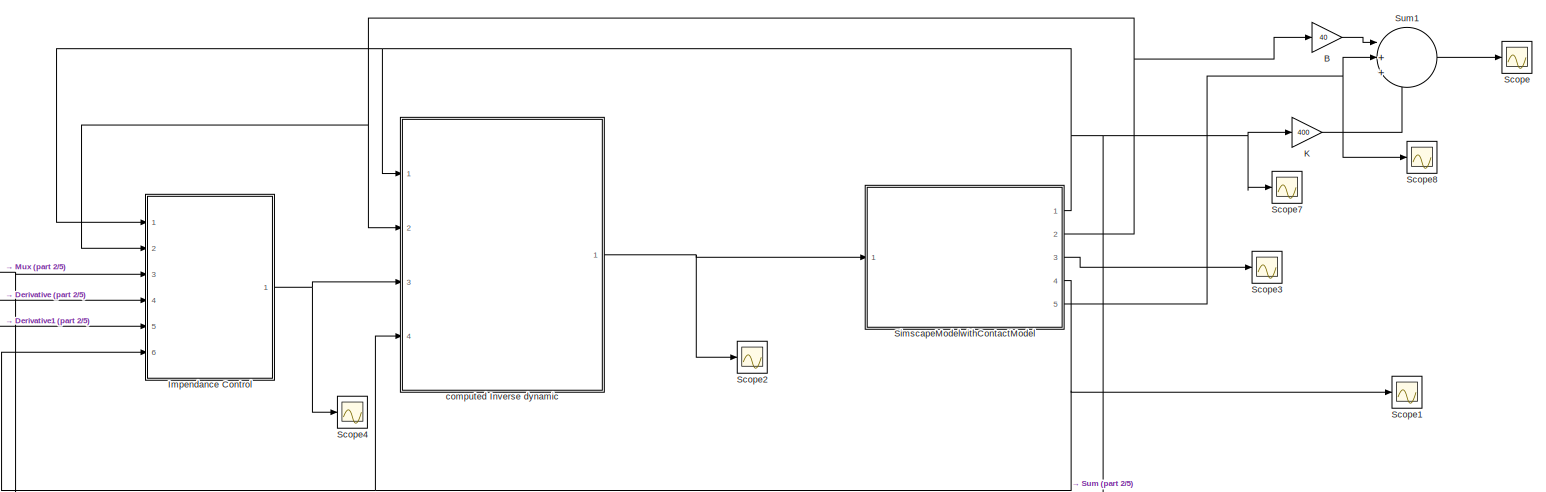
[diagram: root canvas - part 1/5, top center region]
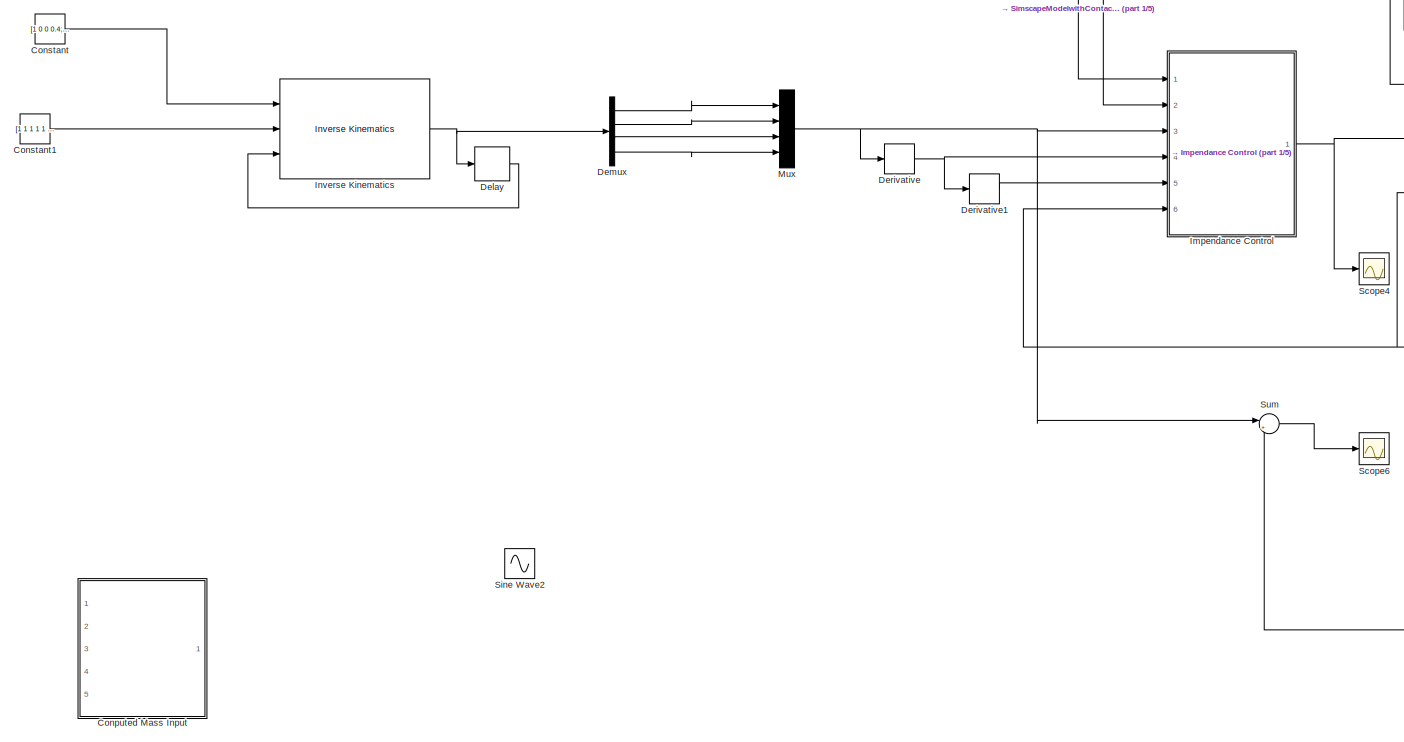
[diagram: root canvas - part 2/5, top left region]
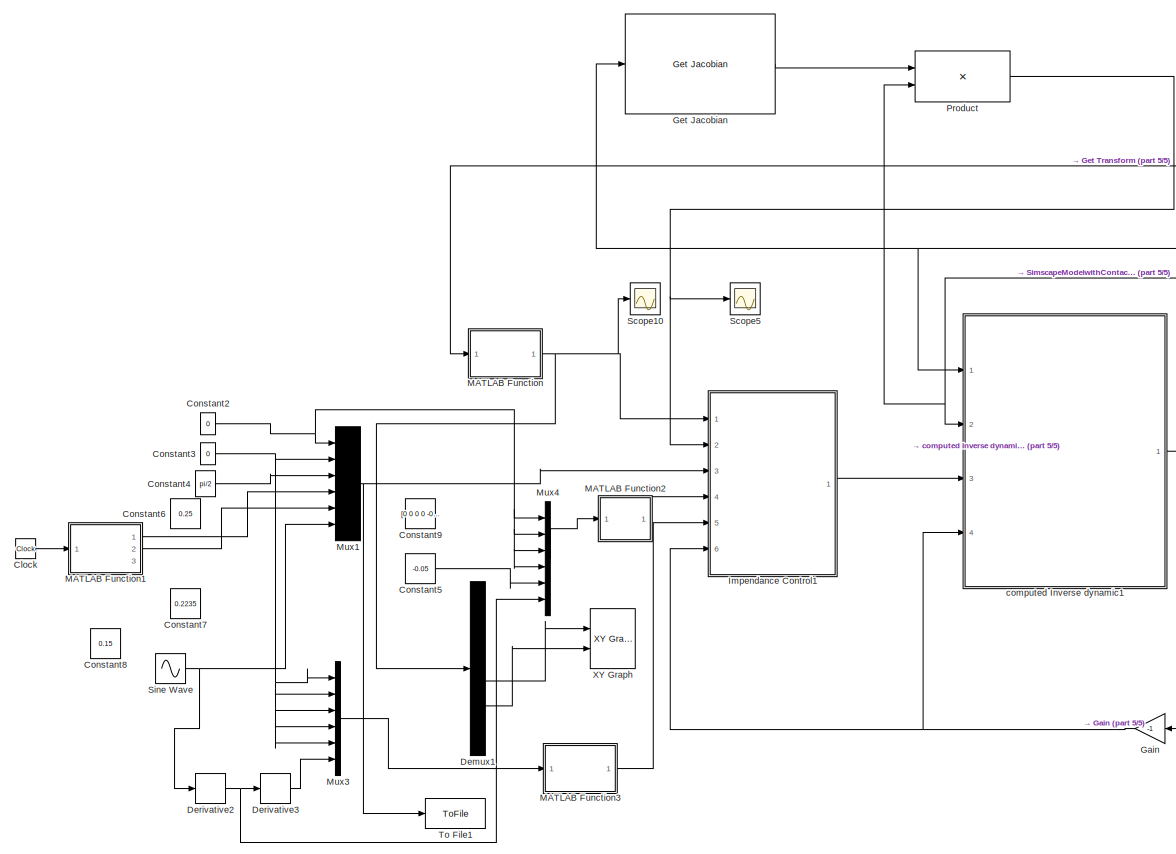
[diagram: root canvas - part 3/5, bottom left region]
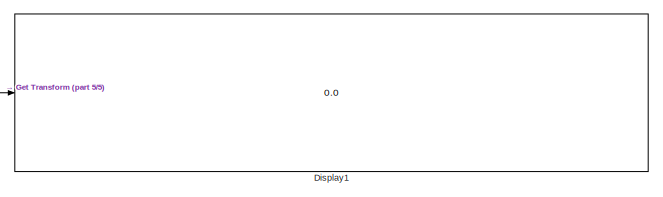
[diagram: root canvas - part 4/5, bottom right region]
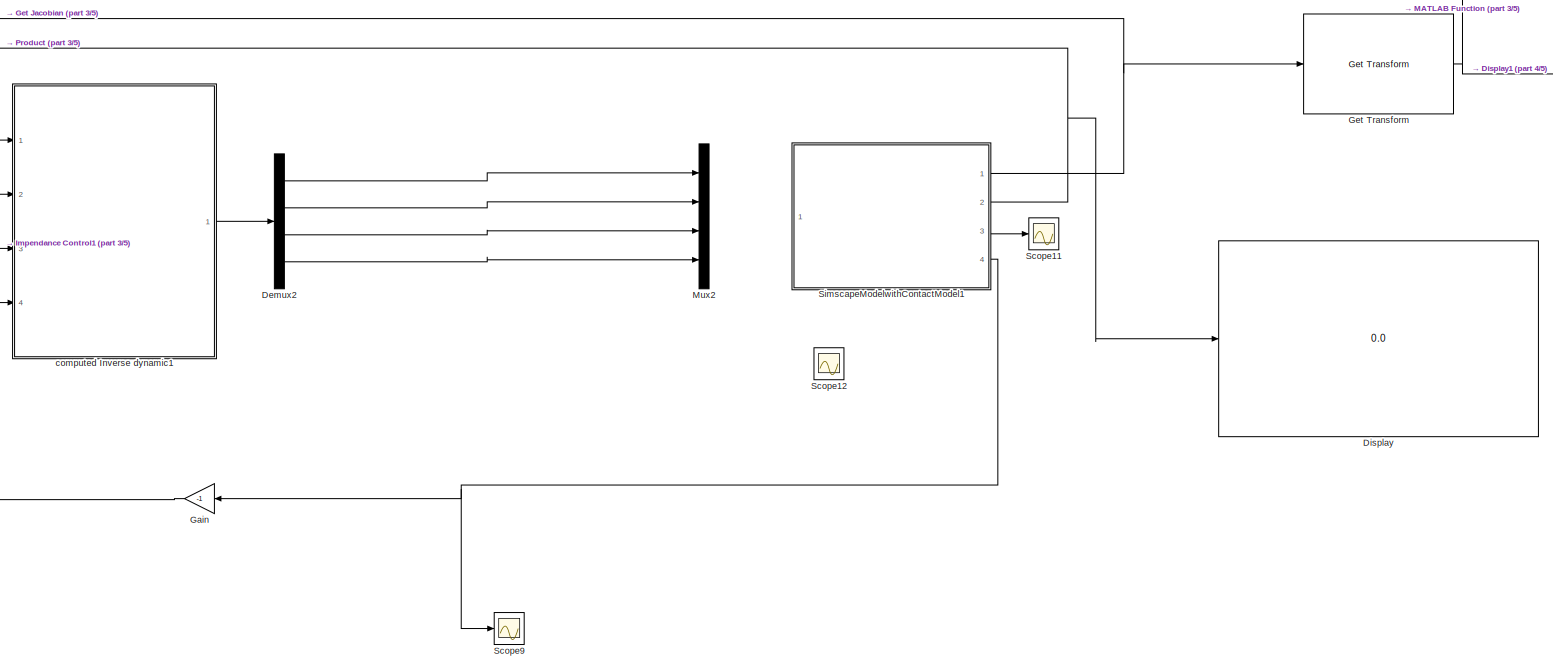
[diagram: root canvas - part 5/5, bottom center region]
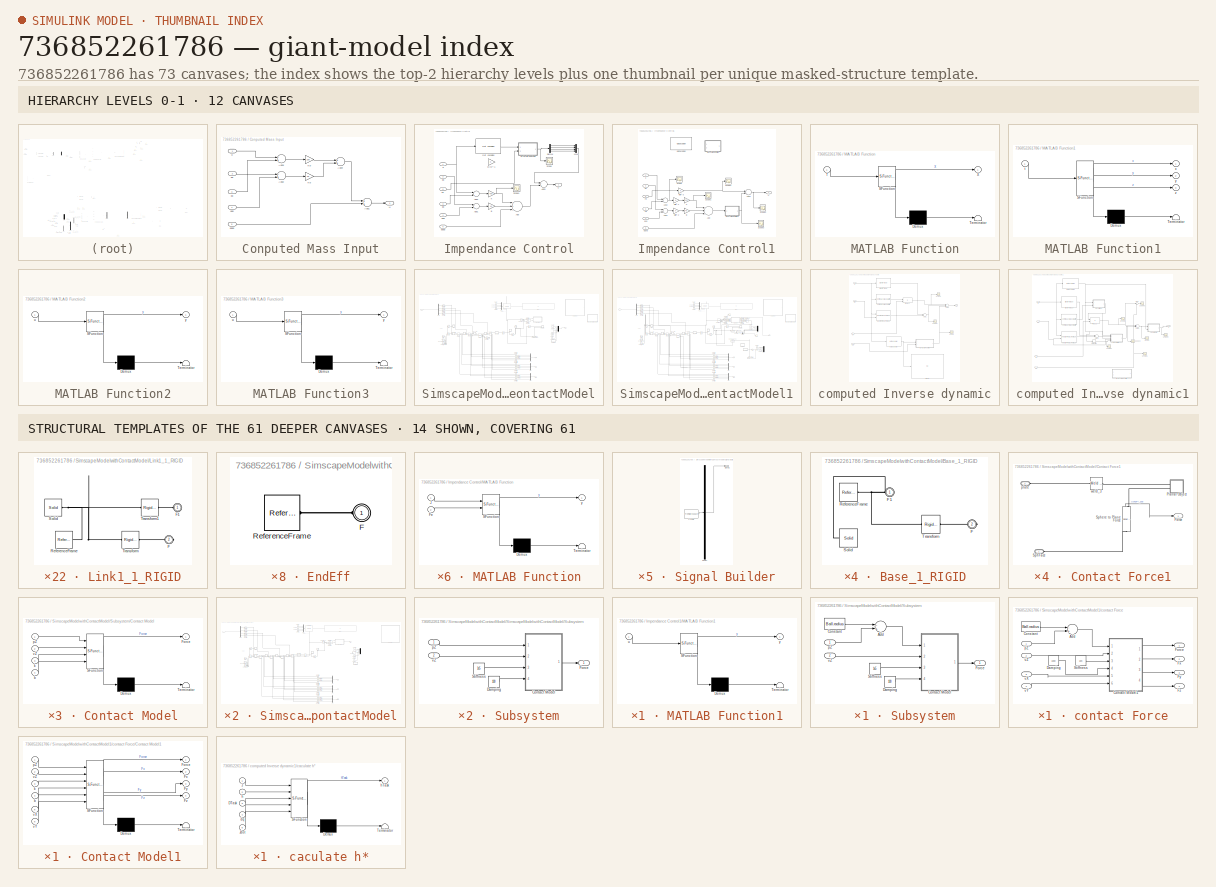
[diagram: thumbnail index - top-2 hierarchy levels (12 canvases) + 14 structural-template representatives of the remaining 61 canvases]
MODEL slx_736852261786
KIND model
CONFIG AbsTol = auto
CONFIG EnableMultiTasking = off
CONFIG FixedStep = 0.001
CONFIG MaxStep = 0.001
CONFIG MinStep = 0.0001
CONFIG RelTol = 1e-3
CONFIG SampleTimeConstraint = Unconstrained
CONFIG Solver = FixedStepAuto
CONFIG SolverName = FixedStepAuto
CONFIG StartTime = 0.0
CONFIG StopTime = 5
WORKSPACE source: external: MATLAB File  (data not in archive)
BLOCK [Gain] B
  Commented = on
  Gain = 40
  OutDataTypeStr = Inherit: Inherit via internal rule
  ParamDataTypeStr = Inherit: Inherit via internal rule
  SaturateOnIntegerOverflow = off
BLOCK [Clock] Clock
BLOCK [SubSystem] Conputed Mass Input
  Commented = on
  Ports = [5, 1]
  RequestExecContextInheritance = off
BLOCK [Sum] Conputed Mass Input/Add1
  InputSameDT = off
  OutDataTypeStr = Inherit: Inherit via internal rule
  Ports = [2, 1]
  SaturateOnIntegerOverflow = off
BLOCK [Sum] Conputed Mass Input/Add2
  InputSameDT = off
  Inputs = -+
  OutDataTypeStr = Inherit: Inherit via internal rule
  Ports = [2, 1]
  SaturateOnIntegerOverflow = off
BLOCK [Sum] Conputed Mass Input/Add3
  InputSameDT = off
  Inputs = -+
  OutDataTypeStr = Inherit: Inherit via internal rule
  Ports = [2, 1]
  SaturateOnIntegerOverflow = off
BLOCK [Sum] Conputed Mass Input/Add4
  InputSameDT = off
  OutDataTypeStr = Inherit: Inherit via internal rule
  Ports = [2, 1]
  SaturateOnIntegerOverflow = off
BLOCK [Gain] Conputed Mass Input/Kd
  Gain = 20
  OutDataTypeStr = Inherit: Inherit via internal rule
  ParamDataTypeStr = Inherit: Inherit via internal rule
  SaturateOnIntegerOverflow = off
BLOCK [Gain] Conputed Mass Input/Kp
  Gain = 100
  OutDataTypeStr = Inherit: Inherit via internal rule
  ParamDataTypeStr = Inherit: Inherit via internal rule
  SaturateOnIntegerOverflow = off
BLOCK [Outport] Conputed Mass Input/U
  IconDisplay = Port number
BLOCK [Inport] Conputed Mass Input/ddqd
  IconDisplay = Port number
  Port = 5
BLOCK [Inport] Conputed Mass Input/dq
  IconDisplay = Port number
  Port = 2
BLOCK [Inport] Conputed Mass Input/dqd
  IconDisplay = Port number
  Port = 4
BLOCK [Inport] Conputed Mass Input/q
  IconDisplay = Port number
BLOCK [Inport] Conputed Mass Input/qd
  IconDisplay = Port number
  Port = 3
BLOCK [Constant] Constant
  Commented = on
  Value = [1 0 0 0.4;0 1 0 0;0 0 1 0.2235;0 0 0 1]
  VectorParams1D = off
BLOCK [Constant] Constant1
  Commented = on
  Value = [1 1 1 1 1 1]
BLOCK [Constant] Constant2
  Value = 0
BLOCK [Constant] Constant3
  Value = 0
BLOCK [Constant] Constant4
  Value = pi/2
BLOCK [Constant] Constant5
  Value = -0.05
  VectorParams1D = off
BLOCK [Constant] Constant6
  Value = 0.25
BLOCK [Constant] Constant7
  Value = 0.2235
BLOCK [Constant] Constant8
  Value = 0.15
BLOCK [Constant] Constant9
  Value = [0 0 0 0 -0.05 0]
  VectorParams1D = off
BLOCK [Delay] Delay
  Commented = on
  DelayLength = 1
  InitialCondition = [0;0;0;0]
  InputPortMap = u0
  Ports = [1, 1]
BLOCK [Demux] Demux
  Commented = on
  DisplayOption = bar
  Ports = [1, 4]
BLOCK [Demux] Demux1
  DisplayOption = bar
  Outputs = 6
  Ports = [1, 6]
BLOCK [Demux] Demux2
  DisplayOption = bar
  Ports = [1, 4]
BLOCK [Derivative] Derivative
  Commented = on
BLOCK [Derivative] Derivative1
  Commented = on
BLOCK [Derivative] Derivative2
BLOCK [Derivative] Derivative3
BLOCK [Display] Display
  Decimation = 1
  Ports = [1]
BLOCK [Display] Display1
  Decimation = 1
  Format = long
  Ports = [1]
BLOCK [Gain] Gain
  Gain = -1
  OutDataTypeStr = Inherit: Inherit via internal rule
  ParamDataTypeStr = Inherit: Inherit via internal rule
  SaturateOnIntegerOverflow = off
BLOCK [Reference] Get Jacobian  REF=robotmaniplib/Get Jacobian
  Ports = [1, 1]
  SourceBlock = robotmaniplib/Get Jacobian
  SourceProductName = Robotics System Toolbox
  SourceType = Get Jacobian
BLOCK [Reference] Get Transform  REF=robotmaniplib/Get Transform
  Ports = [1, 1]
  SourceBlock = robotmaniplib/Get Transform
  SourceProductBaseCode = RO
  SourceProductName = Robotics System Toolbox
  SourceType = Get Transform
BLOCK [SubSystem] Impendance Control
  Commented = on
  Ports = [6, 1]
  RequestExecContextInheritance = off
BLOCK [Sum] Impendance Control/Add
  InputSameDT = off
  Inputs = +++
  OutDataTypeStr = Inherit: Inherit via internal rule
  Ports = [3, 1]
  SaturateOnIntegerOverflow = off
BLOCK [Sum] Impendance Control/Add1
  InputSameDT = off
  Inputs = -+
  OutDataTypeStr = Inherit: Inherit via internal rule
  Ports = [2, 1]
  SaturateOnIntegerOverflow = off
BLOCK [Sum] Impendance Control/Add2
  InputSameDT = off
  Inputs = -+
  OutDataTypeStr = Inherit: Inherit via internal rule
  Ports = [2, 1]
  SaturateOnIntegerOverflow = off
BLOCK [Sum] Impendance Control/Add3
  InputSameDT = off
  Inputs = -+
  OutDataTypeStr = Inherit: Inherit via internal rule
  Ports = [2, 1]
  SaturateOnIntegerOverflow = off
BLOCK [Gain] Impendance Control/B
  Gain = 40
  OutDataTypeStr = Inherit: Inherit via internal rule
  ParamDataTypeStr = Inherit: Inherit via internal rule
  SaturateOnIntegerOverflow = off
BLOCK [Demux] Impendance Control/Demux
  DisplayOption = bar
  Ports = [1, 4]
BLOCK [Inport] Impendance Control/Fe
  IconDisplay = Port number
  Port = 6
BLOCK [Reference] Impendance Control/Get Jacobian  REF=robotmaniplib/Get Jacobian
  Ports = [1, 1]
  SourceBlock = robotmaniplib/Get Jacobian
  SourceProductName = Robotics System Toolbox
  SourceType = Get Jacobian
BLOCK [Gain] Impendance Control/K
  Gain = 400
  OutDataTypeStr = Inherit: Inherit via internal rule
  ParamDataTypeStr = Inherit: Inherit via internal rule
  SaturateOnIntegerOverflow = off
BLOCK [Gain] Impendance Control/M//M^-1
  OutDataTypeStr = Inherit: Inherit via internal rule
  ParamDataTypeStr = Inherit: Inherit via internal rule
  SaturateOnIntegerOverflow = off
BLOCK [SubSystem] Impendance Control/MATLAB Function
  ErrorFcn = Stateflow.Translate.translate
  PermitHierarchicalResolution = ExplicitOnly
  Ports = [2, 1]
  RequestExecContextInheritance = off
  SFBlockType = MATLAB Function
  TreatAsAtomicUnit = on
BLOCK [Demux] Impendance Control/MATLAB Function/ Demux 
  Outputs = 1
  Ports = [1, 1]
BLOCK [S-Function] Impendance Control/MATLAB Function/ SFunction 
  EnableBusSupport = on
  FunctionName = sf_sfun
  PortCounts = [2 2]
  Ports = [2, 2]
  SFcnIsStateOwnerBlock = off
  SFunctionDeploymentMode = off
  Tag = Stateflow S-Function SCARA_Robot 1
BLOCK [Terminator] Impendance Control/MATLAB Function/ Terminator 
BLOCK [Inport] Impendance Control/MATLAB Function/Fe
  IconDisplay = Port number
  Port = 2
BLOCK [Inport] Impendance Control/MATLAB Function/J
  IconDisplay = Port number
BLOCK [Outport] Impendance Control/MATLAB Function/y
  IconDisplay = Port number
BLOCK [Mux] Impendance Control/Mux
  DisplayOption = bar
  Ports = [4, 1]
BLOCK [Scope] Impendance Control/Scope
  Floating = off
  NumInputPorts = 1
  Ports = [1]
  ScopeSpecificationString = Simulink.scopes.TimeScopeBlockCfg('CurrentConfiguration', extmgr.ConfigurationSet(extmgr.Configuration('Core','General UI',true),extmgr.Configuration('Core','Source UI',true),extmgr.Configuration('Sources','WiredSimulink',true,'DataLoggingVariableName','ScopeData2'),extmgr.Configuration('Visuals','Time Domain',true,'SerializedDisplays',{struct('MinYLimReal','-1.00000','MaxYLimReal','1.00000','YLab...<+1509ch>
BLOCK [Scope] Impendance Control/Scope1
  Floating = off
  NumInputPorts = 1
  Ports = [1]
  ScopeSpecificationString = Simulink.scopes.TimeScopeBlockCfg('CurrentConfiguration', extmgr.ConfigurationSet(extmgr.Configuration('Core','General UI',true),extmgr.Configuration('Core','Source UI',true),extmgr.Configuration('Sources','WiredSimulink',true,'DataLoggingVariableName','ScopeData9'),extmgr.Configuration('Visuals','Time Domain',true,'SerializedDisplays',{struct('MinYLimReal','-13.80778','MaxYLimReal','1.5342','YLab...<+1407ch>
BLOCK [Outport] Impendance Control/U
  IconDisplay = Port number
BLOCK [Inport] Impendance Control/ddqd
  IconDisplay = Port number
  Port = 5
BLOCK [Inport] Impendance Control/dq
  IconDisplay = Port number
  Port = 2
BLOCK [Inport] Impendance Control/dqd
  IconDisplay = Port number
  Port = 4
BLOCK [Inport] Impendance Control/q
  IconDisplay = Port number
BLOCK [Inport] Impendance Control/qd
  IconDisplay = Port number
  Port = 3
BLOCK [SubSystem] Impendance Control1
  Ports = [6, 1]
  RequestExecContextInheritance = off
BLOCK [Sum] Impendance Control1/Add
  InputSameDT = off
  Inputs = +++
  OutDataTypeStr = Inherit: Inherit via internal rule
  Ports = [3, 1]
  SaturateOnIntegerOverflow = off
BLOCK [Sum] Impendance Control1/Add1
  InputSameDT = off
  Inputs = -+
  OutDataTypeStr = Inherit: Inherit via internal rule
  Ports = [2, 1]
  SaturateOnIntegerOverflow = off
BLOCK [Sum] Impendance Control1/Add2
  InputSameDT = off
  Inputs = -+
  OutDataTypeStr = Inherit: Inherit via internal rule
  Ports = [2, 1]
  SaturateOnIntegerOverflow = off
BLOCK [Sum] Impendance Control1/Add3
  InputSameDT = off
  Inputs = -+
  OutDataTypeStr = Inherit: Inherit via internal rule
  Ports = [2, 1]
  SaturateOnIntegerOverflow = off
BLOCK [Gain] Impendance Control1/B
  Gain = 40
  OutDataTypeStr = Inherit: Inherit via internal rule
  ParamDataTypeStr = Inherit: Inherit via internal rule
  SaturateOnIntegerOverflow = off
BLOCK [Inport] Impendance Control1/Fe
  IconDisplay = Port number
  Port = 6
BLOCK [Reference] Impendance Control1/Get Jacobian  REF=robotmaniplib/Get Jacobian
  Commented = on
  Ports = [1, 1]
  SourceBlock = robotmaniplib/Get Jacobian
  SourceProductName = Robotics System Toolbox
  SourceType = Get Jacobian
BLOCK [Gain] Impendance Control1/K
  Gain = 400
  OutDataTypeStr = Inherit: Inherit via internal rule
  ParamDataTypeStr = Inherit: Inherit via internal rule
  SaturateOnIntegerOverflow = off
BLOCK [Gain] Impendance Control1/M//M^-1
  OutDataTypeStr = Inherit: Inherit via internal rule
  ParamDataTypeStr = Inherit: Inherit via internal rule
  SaturateOnIntegerOverflow = off
BLOCK [Gain] Impendance Control1/M//M^-2
  OutDataTypeStr = Inherit: Inherit via internal rule
  ParamDataTypeStr = Inherit: Inherit via internal rule
  SaturateOnIntegerOverflow = off
BLOCK [Gain] Impendance Control1/M//M^-3
  OutDataTypeStr = Inherit: Inherit via internal rule
  ParamDataTypeStr = Inherit: Inherit via internal rule
  SaturateOnIntegerOverflow = off
BLOCK [SubSystem] Impendance Control1/MATLAB Function
  Commented = on
  ErrorFcn = Stateflow.Translate.translate
  PermitHierarchicalResolution = ExplicitOnly
  Ports = [2, 1]
  RequestExecContextInheritance = off
  SFBlockType = MATLAB Function
  TreatAsAtomicUnit = on
BLOCK [Demux] Impendance Control1/MATLAB Function/ Demux 
  Outputs = 1
  Ports = [1, 1]
BLOCK [S-Function] Impendance Control1/MATLAB Function/ SFunction 
  EnableBusSupport = on
  FunctionName = sf_sfun
  PortCounts = [2 2]
  Ports = [2, 2]
  SFcnIsStateOwnerBlock = off
  SFunctionDeploymentMode = off
  Tag = Stateflow S-Function SCARA_Robot 5
BLOCK [Terminator] Impendance Control1/MATLAB Function/ Terminator 
BLOCK [Inport] Impendance Control1/MATLAB Function/Fe
  IconDisplay = Port number
  Port = 2
BLOCK [Inport] Impendance Control1/MATLAB Function/J
  IconDisplay = Port number
BLOCK [Outport] Impendance Control1/MATLAB Function/y
  IconDisplay = Port number
BLOCK [SubSystem] Impendance Control1/MATLAB Function1
  ErrorFcn = Stateflow.Translate.translate
  PermitHierarchicalResolution = ExplicitOnly
  Ports = [1, 1]
  RequestExecContextInheritance = off
  SFBlockType = MATLAB Function
  TreatAsAtomicUnit = on
BLOCK [Demux] Impendance Control1/MATLAB Function1/ Demux 
  Outputs = 1
  Ports = [1, 1]
BLOCK [S-Function] Impendance Control1/MATLAB Function1/ SFunction 
  EnableBusSupport = on
  FunctionName = sf_sfun
  PortCounts = [1 2]
  Ports = [1, 2]
  SFcnIsStateOwnerBlock = off
  SFunctionDeploymentMode = off
  Tag = Stateflow S-Function SCARA_Robot 13
BLOCK [Terminator] Impendance Control1/MATLAB Function1/ Terminator 
BLOCK [Inport] Impendance Control1/MATLAB Function1/u
  IconDisplay = Port number
BLOCK [Outport] Impendance Control1/MATLAB Function1/y
  IconDisplay = Port number
BLOCK [Scope] Impendance Control1/Scope
  Floating = off
  NumInputPorts = 1
  Ports = [1]
  ScopeSpecificationString = Simulink.scopes.TimeScopeBlockCfg('CurrentConfiguration', extmgr.ConfigurationSet(extmgr.Configuration('Core','General UI',true),extmgr.Configuration('Core','Source UI',true),extmgr.Configuration('Sources','WiredSimulink',true,'DataLoggingVariableName','ScopeData2'),extmgr.Configuration('Visuals','Time Domain',true,'SerializedDisplays',{struct('MinYLimReal','-0.00000000000000004','MaxYLimReal','0....<+1556ch>
BLOCK [Scope] Impendance Control1/Scope1
  Floating = off
  NumInputPorts = 1
  Ports = [1]
  ScopeSpecificationString = Simulink.scopes.TimeScopeBlockCfg('CurrentConfiguration', extmgr.ConfigurationSet(extmgr.Configuration('Core','General UI',true),extmgr.Configuration('Core','Source UI',true),extmgr.Configuration('Sources','WiredSimulink',true,'DataLoggingVariableName','ScopeData9'),extmgr.Configuration('Visuals','Time Domain',true,'SerializedDisplays',{struct('MinYLimReal','-145.05819','MaxYLimReal','79.61954','Y...<+1429ch>
BLOCK [Scope] Impendance Control1/Scope2
  Floating = off
  NumInputPorts = 1
  Ports = [1]
  ScopeSpecificationString = Simulink.scopes.TimeScopeBlockCfg('CurrentConfiguration', extmgr.ConfigurationSet(extmgr.Configuration('Core','General UI',true),extmgr.Configuration('Core','Source UI',true),extmgr.Configuration('Sources','WiredSimulink',true,'DataLoggingVariableName','ScopeData5'),extmgr.Configuration('Visuals','Time Domain',true,'SerializedDisplays',{struct('MinYLimReal','-367.06564','MaxYLimReal','1675.83768',...<+1453ch>
BLOCK [Scope] Impendance Control1/Scope3
  Floating = off
  NumInputPorts = 1
  Ports = [1]
  ScopeSpecificationString = Simulink.scopes.TimeScopeBlockCfg('CurrentConfiguration', extmgr.ConfigurationSet(extmgr.Configuration('Core','General UI',true),extmgr.Configuration('Core','Source UI',true),extmgr.Configuration('Sources','WiredSimulink',true,'DataLoggingVariableName','ScopeData9'),extmgr.Configuration('Visuals','Time Domain',true,'SerializedDisplays',{struct('MinYLimReal','-143.24011','MaxYLimReal','28.10177','Y...<+1552ch>
BLOCK [Scope] Impendance Control1/Scope4
  Floating = off
  NumInputPorts = 1
  Ports = [1]
  ScopeSpecificationString = Simulink.scopes.TimeScopeBlockCfg('CurrentConfiguration', extmgr.ConfigurationSet(extmgr.Configuration('Core','General UI',true),extmgr.Configuration('Core','Source UI',true),extmgr.Configuration('Sources','WiredSimulink',true,'DataLoggingVariableName','ScopeData10'),extmgr.Configuration('Visuals','Time Domain',true,'SerializedDisplays',{struct('MinYLimReal','-376.94475','MaxYLimReal','1805.36694'...<+1495ch>
BLOCK [Outport] Impendance Control1/U
  IconDisplay = Port number
BLOCK [Inport] Impendance Control1/ddxd
  IconDisplay = Port number
  Port = 5
BLOCK [Inport] Impendance Control1/dx
  IconDisplay = Port number
  Port = 2
BLOCK [Inport] Impendance Control1/dxd
  IconDisplay = Port number
  Port = 4
BLOCK [Inport] Impendance Control1/x
  IconDisplay = Port number
BLOCK [Inport] Impendance Control1/xd
  IconDisplay = Port number
  Port = 3
BLOCK [Reference] Inverse Kinematics  REF=robotmaniplib/Inverse Kinematics
  Commented = on
  Ports = [3, 1]
  SourceBlock = robotmaniplib/Inverse Kinematics
  SourceProductBaseCode = RO
  SourceProductName = Robotics System Toolbox
  SourceType = Inverse Kinematics
BLOCK [Gain] K
  Commented = on
  Gain = 400
  OutDataTypeStr = Inherit: Inherit via internal rule
  ParamDataTypeStr = Inherit: Inherit via internal rule
  SaturateOnIntegerOverflow = off
BLOCK [SubSystem] MATLAB Function
  ErrorFcn = Stateflow.Translate.translate
  PermitHierarchicalResolution = ExplicitOnly
  Ports = [1, 1]
  RequestExecContextInheritance = off
  SFBlockType = MATLAB Function
  TreatAsAtomicUnit = on
BLOCK [Demux] MATLAB Function/ Demux 
  Outputs = 1
  Ports = [1, 1]
BLOCK [S-Function] MATLAB Function/ SFunction 
  EnableBusSupport = on
  FunctionName = sf_sfun
  PortCounts = [1 2]
  Ports = [1, 2]
  SFcnIsStateOwnerBlock = off
  SFunctionDeploymentMode = off
  Tag = Stateflow S-Function SCARA_Robot 12
BLOCK [Terminator] MATLAB Function/ Terminator 
BLOCK [Inport] MATLAB Function/T
  IconDisplay = Port number
BLOCK [Outport] MATLAB Function/X
  IconDisplay = Port number
BLOCK [SubSystem] MATLAB Function1
  ErrorFcn = Stateflow.Translate.translate
  PermitHierarchicalResolution = ExplicitOnly
  Ports = [1, 3]
  RequestExecContextInheritance = off
  SFBlockType = MATLAB Function
  TreatAsAtomicUnit = on
BLOCK [Demux] MATLAB Function1/ Demux 
  Outputs = 1
  Ports = [1, 1]
BLOCK [S-Function] MATLAB Function1/ SFunction 
  EnableBusSupport = on
  FunctionName = sf_sfun
  PortCounts = [1 4]
  Ports = [1, 4]
  SFcnIsStateOwnerBlock = off
  SFunctionDeploymentMode = off
  Tag = Stateflow S-Function SCARA_Robot 14
BLOCK [Terminator] MATLAB Function1/ Terminator 
BLOCK [Inport] MATLAB Function1/t
  IconDisplay = Port number
BLOCK [Outport] MATLAB Function1/x
  IconDisplay = Port number
BLOCK [Outport] MATLAB Function1/y
  IconDisplay = Port number
  Port = 2
BLOCK [Outport] MATLAB Function1/z
  IconDisplay = Port number
  Port = 3
BLOCK [SubSystem] MATLAB Function2
  ErrorFcn = Stateflow.Translate.translate
  PermitHierarchicalResolution = ExplicitOnly
  Ports = [1, 1]
  RequestExecContextInheritance = off
  SFBlockType = MATLAB Function
  TreatAsAtomicUnit = on
BLOCK [Demux] MATLAB Function2/ Demux 
  Outputs = 1
  Ports = [1, 1]
BLOCK [S-Function] MATLAB Function2/ SFunction 
  EnableBusSupport = on
  FunctionName = sf_sfun
  PortCounts = [1 2]
  Ports = [1, 2]
  SFcnIsStateOwnerBlock = off
  SFunctionDeploymentMode = off
  Tag = Stateflow S-Function SCARA_Robot 7
BLOCK [Terminator] MATLAB Function2/ Terminator 
BLOCK [Inport] MATLAB Function2/u
  IconDisplay = Port number
BLOCK [Outport] MATLAB Function2/y
  IconDisplay = Port number
BLOCK [SubSystem] MATLAB Function3
  ErrorFcn = Stateflow.Translate.translate
  PermitHierarchicalResolution = ExplicitOnly
  Ports = [1, 1]
  RequestExecContextInheritance = off
  SFBlockType = MATLAB Function
  TreatAsAtomicUnit = on
BLOCK [Demux] MATLAB Function3/ Demux 
  Outputs = 1
  Ports = [1, 1]
BLOCK [S-Function] MATLAB Function3/ SFunction 
  EnableBusSupport = on
  FunctionName = sf_sfun
  PortCounts = [1 2]
  Ports = [1, 2]
  SFcnIsStateOwnerBlock = off
  SFunctionDeploymentMode = off
  Tag = Stateflow S-Function SCARA_Robot 16
BLOCK [Terminator] MATLAB Function3/ Terminator 
BLOCK [Inport] MATLAB Function3/u
  IconDisplay = Port number
BLOCK [Outport] MATLAB Function3/y
  IconDisplay = Port number
BLOCK [Mux] Mux
  Commented = on
  DisplayOption = bar
  Ports = [4, 1]
BLOCK [Mux] Mux1
  DisplayOption = bar
  Inputs = 6
  Ports = [6, 1]
BLOCK [Mux] Mux2
  DisplayOption = bar
  Ports = [4, 1]
BLOCK [Mux] Mux3
  DisplayOption = bar
  Inputs = 6
  Ports = [6, 1]
BLOCK [Mux] Mux4
  DisplayOption = bar
  Inputs = 6
  Ports = [6, 1]
BLOCK [Product] Product
  InputSameDT = off
  Multiplication = Matrix(*)
  OutDataTypeStr = Inherit: Inherit via internal rule
  Ports = [2, 1]
  RndMeth = Floor
  SaturateOnIntegerOverflow = off
BLOCK [Scope] Scope
  Commented = on
  Floating = off
  NumInputPorts = 1
  Ports = [1]
  ScopeSpecificationString = Simulink.scopes.TimeScopeBlockCfg('CurrentConfiguration', extmgr.ConfigurationSet(extmgr.Configuration('Core','General UI',true),extmgr.Configuration('Core','Source UI',true),extmgr.Configuration('Sources','WiredSimulink',true),extmgr.Configuration('Visuals','Time Domain',true,'SerializedDisplays',{struct('MinYLimReal','3.20941','MaxYLimReal','13.61832','YLabelReal','','MinYLimMag','3.20941','MaxY...<+1437ch>
BLOCK [Scope] Scope1
  Commented = on
  Floating = off
  NumInputPorts = 1
  Ports = [1]
  ScopeSpecificationString = Simulink.scopes.TimeScopeBlockCfg('CurrentConfiguration', extmgr.ConfigurationSet(extmgr.Configuration('Core','General UI',true),extmgr.Configuration('Core','Source UI',true),extmgr.Configuration('Sources','WiredSimulink',true,'DataLoggingVariableName','ScopeData1'),extmgr.Configuration('Visuals','Time Domain',true,'SerializedDisplays',{struct('MinYLimReal','-7.97378','MaxYLimReal','71.76399','YLa...<+1649ch>
BLOCK [Scope] Scope10
  Floating = off
  NumInputPorts = 1
  Ports = [1]
  ScopeSpecificationString = Simulink.scopes.TimeScopeBlockCfg('CurrentConfiguration', extmgr.ConfigurationSet(extmgr.Configuration('Core','General UI',true),extmgr.Configuration('Core','Source UI',true),extmgr.Configuration('Sources','WiredSimulink',true,'DataLoggingVariableName','ScopeData1'),extmgr.Configuration('Visuals','Time Domain',true,'SerializedDisplays',{struct('MinYLimReal','-0.19639','MaxYLimReal','1.76755','YLab...<+1676ch>
BLOCK [Scope] Scope11
  Floating = off
  NumInputPorts = 1
  Ports = [1]
  ScopeSpecificationString = Simulink.scopes.TimeScopeBlockCfg('CurrentConfiguration', extmgr.ConfigurationSet(extmgr.Configuration('Core','General UI',true),extmgr.Configuration('Core','Source UI',true),extmgr.Configuration('Sources','WiredSimulink',true,'DataLoggingVariableName','ScopeData3'),extmgr.Configuration('Visuals','Time Domain',true,'SerializedDisplays',{struct('MinYLimReal','-343.12253','MaxYLimReal','204.97915','...<+1620ch>
BLOCK [Scope] Scope12
  Floating = off
  NumInputPorts = 1
  Ports = [1]
  ScopeSpecificationString = Simulink.scopes.TimeScopeBlockCfg('CurrentConfiguration', extmgr.ConfigurationSet(extmgr.Configuration('Core','General UI',true),extmgr.Configuration('Core','Source UI',true),extmgr.Configuration('Sources','WiredSimulink',true,'DataLoggingVariableName','ScopeData4'),extmgr.Configuration('Visuals','Time Domain',true,'SerializedDisplays',{struct('MinYLimReal','-343.12253','MaxYLimReal','204.97915','...<+1468ch>
BLOCK [Scope] Scope2
  Commented = on
  Floating = off
  NumInputPorts = 1
  Ports = [1]
  ScopeSpecificationString = Simulink.scopes.TimeScopeBlockCfg('CurrentConfiguration', extmgr.ConfigurationSet(extmgr.Configuration('Core','General UI',true),extmgr.Configuration('Core','Source UI',true),extmgr.Configuration('Sources','WiredSimulink',true,'DataLoggingVariableName','ScopeData5'),extmgr.Configuration('Visuals','Time Domain',true,'SerializedDisplays',{struct('MinYLimReal','-0.3011','MaxYLimReal','2.70994','YLabe...<+1524ch>
BLOCK [Scope] Scope3
  Commented = on
  Floating = off
  NumInputPorts = 1
  Ports = [1]
  ScopeSpecificationString = Simulink.scopes.TimeScopeBlockCfg('CurrentConfiguration', extmgr.ConfigurationSet(extmgr.Configuration('Core','General UI',true),extmgr.Configuration('Core','Source UI',true),extmgr.Configuration('Sources','WiredSimulink',true,'DataLoggingVariableName','ScopeData3'),extmgr.Configuration('Visuals','Time Domain',true,'SerializedDisplays',{struct('MinYLimReal','-0.3011','MaxYLimReal','2.70994','YLabe...<+1571ch>
BLOCK [Scope] Scope4
  Commented = on
  Floating = off
  NumInputPorts = 1
  Ports = [1]
  ScopeSpecificationString = Simulink.scopes.TimeScopeBlockCfg('CurrentConfiguration', extmgr.ConfigurationSet(extmgr.Configuration('Core','General UI',true),extmgr.Configuration('Core','Source UI',true),extmgr.Configuration('Sources','WiredSimulink',true,'DataLoggingVariableName','ScopeData8'),extmgr.Configuration('Visuals','Time Domain',true,'SerializedDisplays',{struct('MinYLimReal','-18.55061','MaxYLimReal','2.18866','YLa...<+1506ch>
BLOCK [Scope] Scope5
  Floating = off
  NumInputPorts = 1
  Ports = [1]
  ScopeSpecificationString = Simulink.scopes.TimeScopeBlockCfg('CurrentConfiguration', extmgr.ConfigurationSet(extmgr.Configuration('Core','General UI',true),extmgr.Configuration('Core','Source UI',true),extmgr.Configuration('Sources','WiredSimulink',true,'DataLoggingVariableName','ScopeData1'),extmgr.Configuration('Visuals','Time Domain',true,'SerializedDisplays',{struct('MinYLimReal','-26.44307','MaxYLimReal','46.52789','YL...<+1532ch>
BLOCK [Scope] Scope6
  Commented = on
  Floating = off
  NumInputPorts = 1
  Ports = [1]
  ScopeSpecificationString = Simulink.scopes.TimeScopeBlockCfg('CurrentConfiguration', extmgr.ConfigurationSet(extmgr.Configuration('Core','General UI',true),extmgr.Configuration('Core','Source UI',true),extmgr.Configuration('Sources','WiredSimulink',true,'DataLoggingVariableName','ScopeData11'),extmgr.Configuration('Visuals','Time Domain',true,'SerializedDisplays',{struct('MinYLimReal','-0.34446','MaxYLimReal','0.03907','YLa...<+1491ch>
BLOCK [Scope] Scope7
  Commented = on
  Floating = off
  NumInputPorts = 1
  Ports = [1]
  ScopeSpecificationString = Simulink.scopes.TimeScopeBlockCfg('CurrentConfiguration', extmgr.ConfigurationSet(extmgr.Configuration('Core','General UI',true),extmgr.Configuration('Core','Source UI',true),extmgr.Configuration('Sources','WiredSimulink',true,'DataLoggingVariableName','ScopeData12'),extmgr.Configuration('Visuals','Time Domain',true,'SerializedDisplays',{struct('MinYLimReal','-0.00384','MaxYLimReal','0.03452','YLa...<+1583ch>
BLOCK [Scope] Scope8
  Commented = on
  Floating = off
  NumInputPorts = 1
  Ports = [1]
  ScopeSpecificationString = Simulink.scopes.TimeScopeBlockCfg('CurrentConfiguration', extmgr.ConfigurationSet(extmgr.Configuration('Core','General UI',true),extmgr.Configuration('Core','Source UI',true),extmgr.Configuration('Sources','WiredSimulink',true,'DataLoggingVariableName','ScopeData13'),extmgr.Configuration('Visuals','Time Domain',true,'SerializedDisplays',{struct('MinYLimReal','-0.20795','MaxYLimReal','0.15059','YLa...<+1473ch>
BLOCK [Scope] Scope9
  Floating = off
  NumInputPorts = 1
  Ports = [1]
  ScopeSpecificationString = Simulink.scopes.TimeScopeBlockCfg('CurrentConfiguration', extmgr.ConfigurationSet(extmgr.Configuration('Core','General UI',true),extmgr.Configuration('Core','Source UI',true),extmgr.Configuration('Sources','WiredSimulink',true,'DataLoggingVariableName','ScopeData2'),extmgr.Configuration('Visuals','Time Domain',true,'SerializedDisplays',{struct('MinYLimReal','-69.20493','MaxYLimReal','65.6441','YLa...<+1797ch>
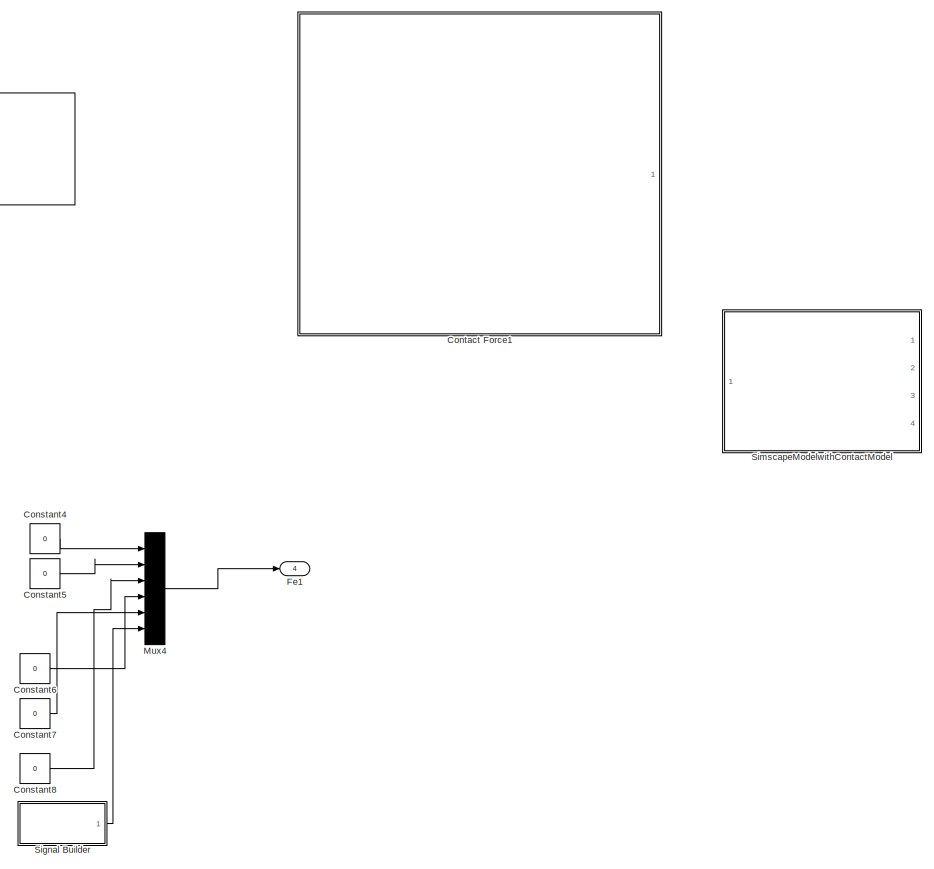
[diagram: SimscapeModelwithContactModel - part 1/5, top right region]
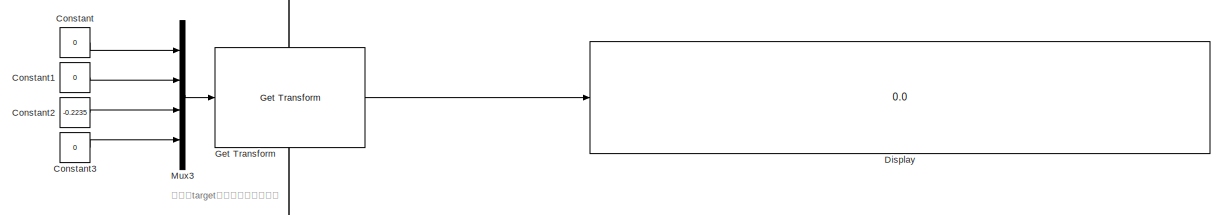
[diagram: SimscapeModelwithContactModel - part 2/5, top center region]
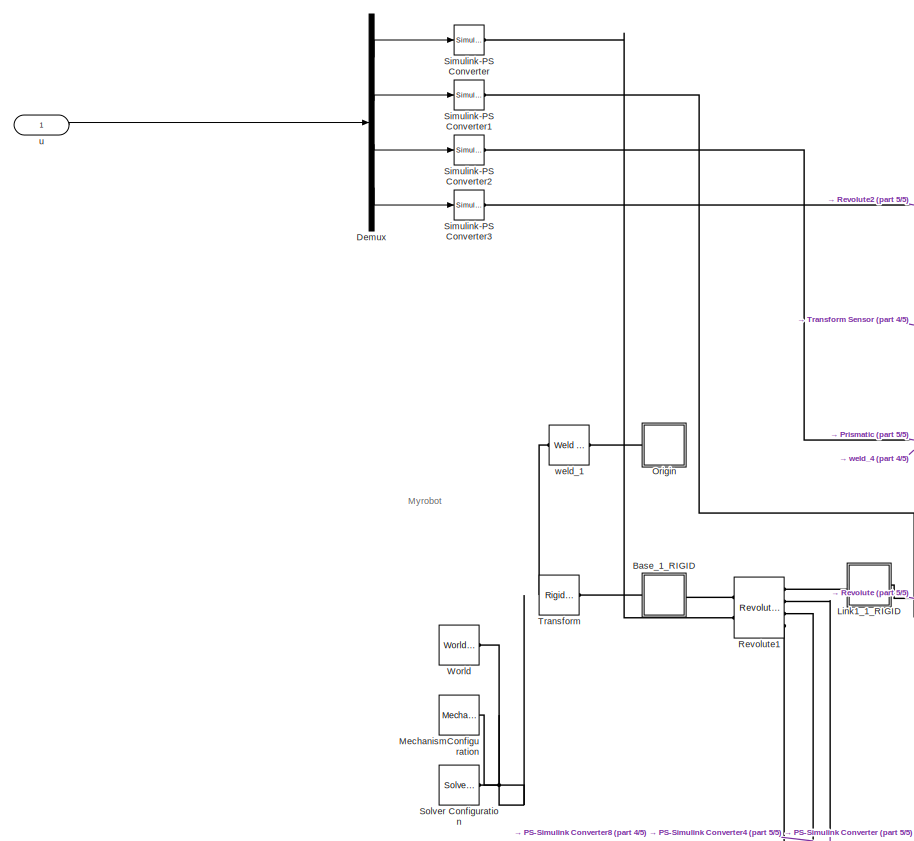
[diagram: SimscapeModelwithContactModel - part 3/5, middle left region]
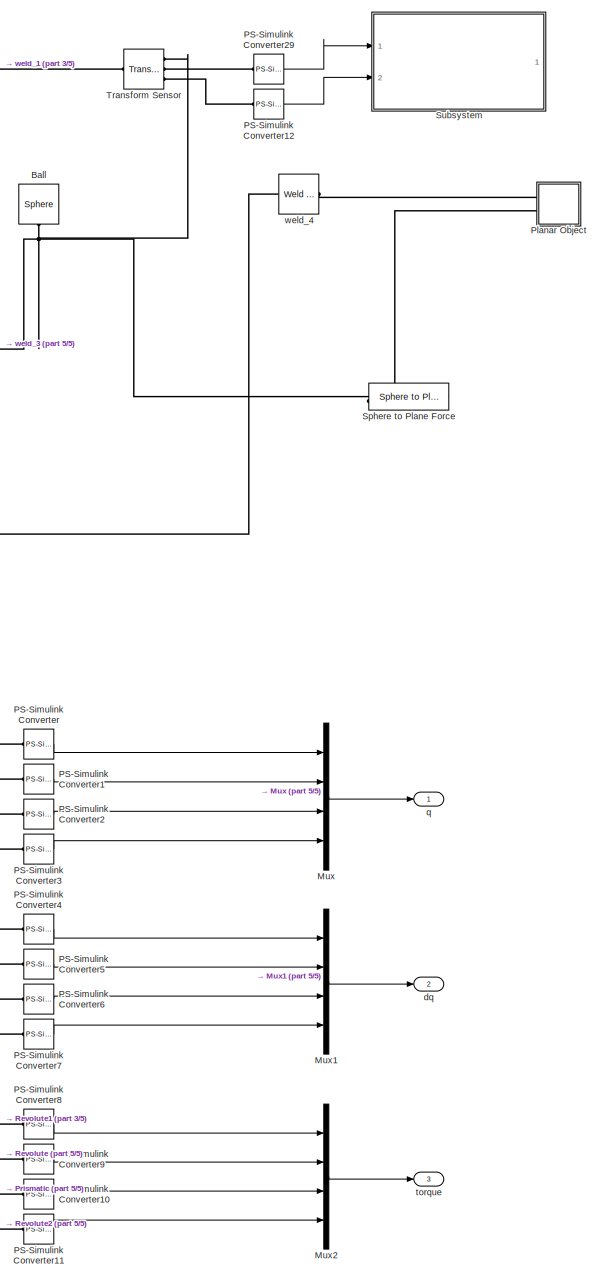
[diagram: SimscapeModelwithContactModel - part 4/5, center side, full height]
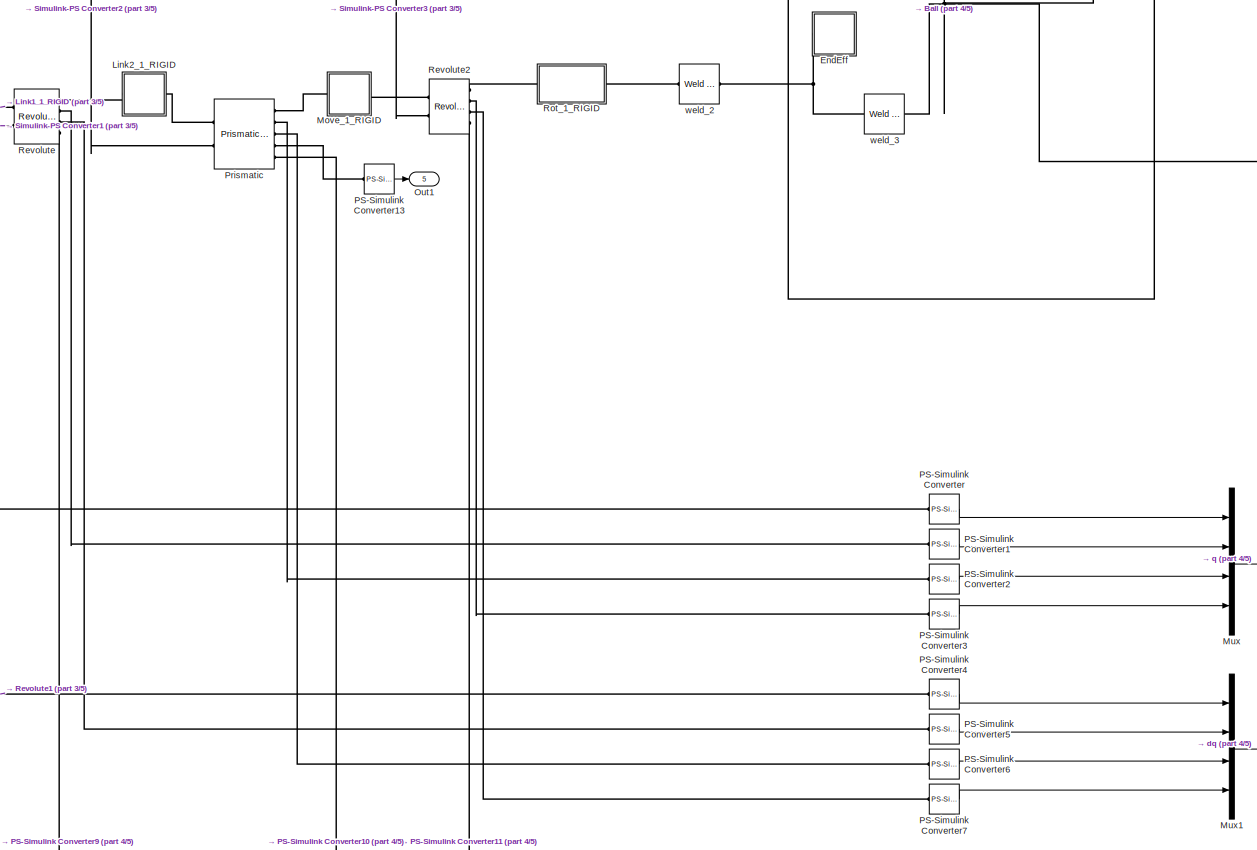
[diagram: SimscapeModelwithContactModel - part 5/5, central region]
BLOCK [SubSystem] SimscapeModelwithContactModel
  Commented = on
  Ports = [1, 5]
  RequestExecContextInheritance = off
BLOCK [Reference] SimscapeModelwithContactModel/Ball  REF=Parts_Lib/Sphere
  Ports = [0, 0, 0, 0, 0, 1]
  SourceBlock = Parts_Lib/Sphere
  SourceType = Sphere with Markings
  Tag = CustomStyle
BLOCK [SubSystem] SimscapeModelwithContactModel/Base_1_RIGID
  Ports = [0, 0, 0, 0, 0, 1, 1]
  RequestExecContextInheritance = off
BLOCK [PMIOPort] SimscapeModelwithContactModel/Base_1_RIGID/F
  Port = 2
  Side = Right
BLOCK [PMIOPort] SimscapeModelwithContactModel/Base_1_RIGID/F1
  Side = Left
BLOCK [Reference] SimscapeModelwithContactModel/Base_1_RIGID/ReferenceFrame  REF=sm_lib/Frames and
Transforms/Reference
Frame
  Ports = [0, 0, 0, 0, 0, 0, 1]
  SourceBlock = sm_lib/Frames and\nTransforms/Reference\nFrame
  SourceProductBaseCode = MS
  SourceProductName = Simscape Multibody
  SourceType = Reference\nFrame
BLOCK [Reference] SimscapeModelwithContactModel/Base_1_RIGID/Solid  REF=sm_lib/Body Elements/Solid
  Ports = [0, 0, 0, 0, 0, 1]
  SourceBlock = sm_lib/Body Elements/Solid
  SourceProductBaseCode = MS
  SourceProductName = Simscape Multibody
  SourceType = Solid
BLOCK [Reference] SimscapeModelwithContactModel/Base_1_RIGID/Transform  REF=sm_lib/Frames and
Transforms/Rigid
Transform
  Ports = [0, 0, 0, 0, 0, 1, 1]
  SourceBlock = sm_lib/Frames and\nTransforms/Rigid\nTransform
  SourceProductBaseCode = MS
  SourceProductName = Simscape Multibody
  SourceType = Rigid\nTransform
BLOCK [Constant] SimscapeModelwithContactModel/Constant
  Commented = on
  Value = 0
BLOCK [Constant] SimscapeModelwithContactModel/Constant1
  Commented = on
  Value = 0
BLOCK [Constant] SimscapeModelwithContactModel/Constant2
  Commented = on
  Value = -0.2235
BLOCK [Constant] SimscapeModelwithContactModel/Constant3
  Commented = on
  Value = 0
BLOCK [Constant] SimscapeModelwithContactModel/Constant4
  Value = 0
BLOCK [Constant] SimscapeModelwithContactModel/Constant5
  Value = 0
BLOCK [Constant] SimscapeModelwithContactModel/Constant6
  Value = 0
BLOCK [Constant] SimscapeModelwithContactModel/Constant7
  Value = 0
BLOCK [Constant] SimscapeModelwithContactModel/Constant8
  Value = 0
BLOCK [SubSystem] SimscapeModelwithContactModel/Contact Force1
  Commented = on
  Ports = [0, 1, 0, 0, 0, 2]
  RequestExecContextInheritance = off
BLOCK [Outport] SimscapeModelwithContactModel/Contact Force1/Force
  IconDisplay = Port number
BLOCK [SubSystem] SimscapeModelwithContactModel/Contact Force1/Planar Object
  Ports = [0, 0, 0, 0, 0, 2]
  RequestExecContextInheritance = off
BLOCK [PMIOPort] SimscapeModelwithContactModel/Contact Force1/Planar Object/F
  Side = Left
BLOCK [PMIOPort] SimscapeModelwithContactModel/Contact Force1/Planar Object/F1
  Port = 2
  Side = Left
BLOCK [Reference] SimscapeModelwithContactModel/Contact Force1/Planar Object/Inertia  REF=sm_lib/Body Elements/Solid
  Ports = [0, 0, 0, 0, 0, 0, 1]
  SourceBlock = sm_lib/Body Elements/Solid
  SourceProductBaseCode = MS
  SourceProductName = Simscape Multibody
  SourceType = Solid
BLOCK [Reference] SimscapeModelwithContactModel/Contact Force1/Planar Object/InertiaOriginTransform  REF=sm_lib/Frames and
Transforms/Rigid
Transform
  Ports = [0, 0, 0, 0, 0, 1, 1]
  SourceBlock = sm_lib/Frames and\nTransforms/Rigid\nTransform
  SourceProductBaseCode = MS
  SourceProductName = Simscape Multibody
  SourceType = Rigid\nTransform
BLOCK [Reference] SimscapeModelwithContactModel/Contact Force1/Planar Object/InertiaOriginTransform1  REF=sm_lib/Frames and
Transforms/Rigid
Transform
  Ports = [0, 0, 0, 0, 0, 1, 1]
  SourceBlock = sm_lib/Frames and\nTransforms/Rigid\nTransform
  SourceProductBaseCode = MS
  SourceProductName = Simscape Multibody
  SourceType = Rigid\nTransform
BLOCK [Reference] SimscapeModelwithContactModel/Contact Force1/Planar Object/ReferenceFrame  REF=sm_lib/Frames and
Transforms/Reference
Frame
  Ports = [0, 0, 0, 0, 0, 0, 1]
  SourceBlock = sm_lib/Frames and\nTransforms/Reference\nFrame
  SourceProductBaseCode = MS
  SourceProductName = Simscape Multibody
  SourceType = Reference\nFrame
BLOCK [PMIOPort] SimscapeModelwithContactModel/Contact Force1/SphFace
  Side = Left
BLOCK [Reference] SimscapeModelwithContactModel/Contact Force1/Sphere to Plane Force  REF=Contact_Forces_Lib/3D/Sphere to Plane Force
  Ports = [0, 1, 0, 0, 0, 1, 1]
  SourceBlock = Contact_Forces_Lib/3D/Sphere to Plane Force
  SourceProductName = Simscape Multibody Contact Forces Library
  SourceType = Sphere to Plane Force
BLOCK [PMIOPort] SimscapeModelwithContactModel/Contact Force1/plate
  Port = 2
  Side = Left
BLOCK [Reference] SimscapeModelwithContactModel/Contact Force1/weld_3  REF=sm_lib/Joints/Weld Joint
  Ports = [0, 0, 0, 0, 0, 1, 1]
  SourceBlock = sm_lib/Joints/Weld Joint
  SourceProductBaseCode = MS
  SourceProductName = Simscape Multibody
  SourceType = Weld Joint
BLOCK [Demux] SimscapeModelwithContactModel/Demux
  DisplayOption = bar
  Ports = [1, 4]
BLOCK [Display] SimscapeModelwithContactModel/Display
  Commented = on
  Decimation = 1
  Format = long
  Ports = [1]
BLOCK [SubSystem] SimscapeModelwithContactModel/EndEff
  Ports = [0, 0, 0, 0, 0, 1]
  RequestExecContextInheritance = off
BLOCK [PMIOPort] SimscapeModelwithContactModel/EndEff/F
  Side = Left
BLOCK [Reference] SimscapeModelwithContactModel/EndEff/ReferenceFrame  REF=sm_lib/Frames and
Transforms/Reference
Frame
  Ports = [0, 0, 0, 0, 0, 0, 1]
  SourceBlock = sm_lib/Frames and\nTransforms/Reference\nFrame
  SourceProductBaseCode = MS
  SourceProductName = Simscape Multibody
  SourceType = Reference\nFrame
BLOCK [Outport] SimscapeModelwithContactModel/Fe1
  IconDisplay = Port number
  Port = 4
BLOCK [Reference] SimscapeModelwithContactModel/Get Transform  REF=robotmaniplib/Get Transform
  Commented = on
  Ports = [1, 1]
  SourceBlock = robotmaniplib/Get Transform
  SourceProductBaseCode = RO
  SourceProductName = Robotics System Toolbox
  SourceType = Get Transform
BLOCK [SubSystem] SimscapeModelwithContactModel/Link1_1_RIGID
  Ports = [0, 0, 0, 0, 0, 1, 1]
  RequestExecContextInheritance = off
BLOCK [PMIOPort] SimscapeModelwithContactModel/Link1_1_RIGID/F
  Port = 2
  Side = Right
BLOCK [PMIOPort] SimscapeModelwithContactModel/Link1_1_RIGID/F1
  Side = Left
BLOCK [Reference] SimscapeModelwithContactModel/Link1_1_RIGID/ReferenceFrame  REF=sm_lib/Frames and
Transforms/Reference
Frame
  Ports = [0, 0, 0, 0, 0, 0, 1]
  SourceBlock = sm_lib/Frames and\nTransforms/Reference\nFrame
  SourceProductBaseCode = MS
  SourceProductName = Simscape Multibody
  SourceType = Reference\nFrame
BLOCK [Reference] SimscapeModelwithContactModel/Link1_1_RIGID/Solid  REF=sm_lib/Body Elements/Solid
  Ports = [0, 0, 0, 0, 0, 0, 1]
  SourceBlock = sm_lib/Body Elements/Solid
  SourceProductBaseCode = MS
  SourceProductName = Simscape Multibody
  SourceType = Solid
BLOCK [Reference] SimscapeModelwithContactModel/Link1_1_RIGID/Transform  REF=sm_lib/Frames and
Transforms/Rigid
Transform
  Ports = [0, 0, 0, 0, 0, 1, 1]
  SourceBlock = sm_lib/Frames and\nTransforms/Rigid\nTransform
  SourceProductBaseCode = MS
  SourceProductName = Simscape Multibody
  SourceType = Rigid\nTransform
BLOCK [Reference] SimscapeModelwithContactModel/Link1_1_RIGID/Transform1  REF=sm_lib/Frames and
Transforms/Rigid
Transform
  Ports = [0, 0, 0, 0, 0, 1, 1]
  SourceBlock = sm_lib/Frames and\nTransforms/Rigid\nTransform
  SourceProductBaseCode = MS
  SourceProductName = Simscape Multibody
  SourceType = Rigid\nTransform
BLOCK [SubSystem] SimscapeModelwithContactModel/Link2_1_RIGID
  Ports = [0, 0, 0, 0, 0, 1, 1]
  RequestExecContextInheritance = off
BLOCK [PMIOPort] SimscapeModelwithContactModel/Link2_1_RIGID/F
  Side = Left
BLOCK [PMIOPort] SimscapeModelwithContactModel/Link2_1_RIGID/F1
  Port = 2
  Side = Right
BLOCK [Reference] SimscapeModelwithContactModel/Link2_1_RIGID/ReferenceFrame  REF=sm_lib/Frames and
Transforms/Reference
Frame
  Ports = [0, 0, 0, 0, 0, 0, 1]
  SourceBlock = sm_lib/Frames and\nTransforms/Reference\nFrame
  SourceProductBaseCode = MS
  SourceProductName = Simscape Multibody
  SourceType = Reference\nFrame
BLOCK [Reference] SimscapeModelwithContactModel/Link2_1_RIGID/Solid  REF=sm_lib/Body Elements/Solid
  Ports = [0, 0, 0, 0, 0, 0, 1]
  SourceBlock = sm_lib/Body Elements/Solid
  SourceProductBaseCode = MS
  SourceProductName = Simscape Multibody
  SourceType = Solid
BLOCK [Reference] SimscapeModelwithContactModel/Link2_1_RIGID/Transform  REF=sm_lib/Frames and
Transforms/Rigid
Transform
  Ports = [0, 0, 0, 0, 0, 1, 1]
  SourceBlock = sm_lib/Frames and\nTransforms/Rigid\nTransform
  SourceProductBaseCode = MS
  SourceProductName = Simscape Multibody
  SourceType = Rigid\nTransform
BLOCK [Reference] SimscapeModelwithContactModel/Link2_1_RIGID/Transform1  REF=sm_lib/Frames and
Transforms/Rigid
Transform
  Ports = [0, 0, 0, 0, 0, 1, 1]
  SourceBlock = sm_lib/Frames and\nTransforms/Rigid\nTransform
  SourceProductBaseCode = MS
  SourceProductName = Simscape Multibody
  SourceType = Rigid\nTransform
BLOCK [Reference] SimscapeModelwithContactModel/MechanismConfiguration  REF=sm_lib/Utilities/Mechanism
Configuration
  Ports = [0, 0, 0, 0, 0, 0, 1]
  SourceBlock = sm_lib/Utilities/Mechanism\nConfiguration
  SourceProductBaseCode = MS
  SourceProductName = Simscape Multibody
  SourceType = Mechanism\nConfiguration
BLOCK [SubSystem] SimscapeModelwithContactModel/Move_1_RIGID
  Ports = [0, 0, 0, 0, 0, 1, 1]
  RequestExecContextInheritance = off
BLOCK [PMIOPort] SimscapeModelwithContactModel/Move_1_RIGID/F
  Side = Left
BLOCK [PMIOPort] SimscapeModelwithContactModel/Move_1_RIGID/F1
  Port = 2
  Side = Right
BLOCK [Reference] SimscapeModelwithContactModel/Move_1_RIGID/ReferenceFrame  REF=sm_lib/Frames and
Transforms/Reference
Frame
  Ports = [0, 0, 0, 0, 0, 0, 1]
  SourceBlock = sm_lib/Frames and\nTransforms/Reference\nFrame
  SourceProductBaseCode = MS
  SourceProductName = Simscape Multibody
  SourceType = Reference\nFrame
BLOCK [Reference] SimscapeModelwithContactModel/Move_1_RIGID/Solid  REF=sm_lib/Body Elements/Solid
  Ports = [0, 0, 0, 0, 0, 0, 1]
  SourceBlock = sm_lib/Body Elements/Solid
  SourceProductBaseCode = MS
  SourceProductName = Simscape Multibody
  SourceType = Solid
BLOCK [Reference] SimscapeModelwithContactModel/Move_1_RIGID/Transform  REF=sm_lib/Frames and
Transforms/Rigid
Transform
  Ports = [0, 0, 0, 0, 0, 1, 1]
  SourceBlock = sm_lib/Frames and\nTransforms/Rigid\nTransform
  SourceProductBaseCode = MS
  SourceProductName = Simscape Multibody
  SourceType = Rigid\nTransform
BLOCK [Reference] SimscapeModelwithContactModel/Move_1_RIGID/Transform1  REF=sm_lib/Frames and
Transforms/Rigid
Transform
  Ports = [0, 0, 0, 0, 0, 1, 1]
  SourceBlock = sm_lib/Frames and\nTransforms/Rigid\nTransform
  SourceProductBaseCode = MS
  SourceProductName = Simscape Multibody
  SourceType = Rigid\nTransform
BLOCK [Mux] SimscapeModelwithContactModel/Mux
  DisplayOption = bar
  Ports = [4, 1]
BLOCK [Mux] SimscapeModelwithContactModel/Mux1
  DisplayOption = bar
  Ports = [4, 1]
BLOCK [Mux] SimscapeModelwithContactModel/Mux2
  DisplayOption = bar
  Ports = [4, 1]
BLOCK [Mux] SimscapeModelwithContactModel/Mux3
  Commented = on
  DisplayOption = bar
  Ports = [4, 1]
BLOCK [Mux] SimscapeModelwithContactModel/Mux4
  DisplayOption = bar
  Inputs = 6
  Ports = [6, 1]
BLOCK [SubSystem] SimscapeModelwithContactModel/Origin
  Ports = [0, 0, 0, 0, 0, 1]
  RequestExecContextInheritance = off
BLOCK [PMIOPort] SimscapeModelwithContactModel/Origin/F
  Side = Left
BLOCK [Reference] SimscapeModelwithContactModel/Origin/ReferenceFrame  REF=sm_lib/Frames and
Transforms/Reference
Frame
  Ports = [0, 0, 0, 0, 0, 0, 1]
  SourceBlock = sm_lib/Frames and\nTransforms/Reference\nFrame
  SourceProductBaseCode = MS
  SourceProductName = Simscape Multibody
  SourceType = Reference\nFrame
BLOCK [Outport] SimscapeModelwithContactModel/Out1
  IconDisplay = Port number
  Port = 5
BLOCK [Reference] SimscapeModelwithContactModel/PS-Simulink Converter  REF=nesl_utility/PS-Simulink
Converter
  Ports = [0, 1, 0, 0, 0, 1]
  SourceBlock = nesl_utility/PS-Simulink\nConverter
  SourceProductBaseCode = SS
  SourceProductName = Simscape
  SourceType = PS-Simulink\nConverter
BLOCK [Reference] SimscapeModelwithContactModel/PS-Simulink Converter1  REF=nesl_utility/PS-Simulink
Converter
  Ports = [0, 1, 0, 0, 0, 1]
  SourceBlock = nesl_utility/PS-Simulink\nConverter
  SourceProductBaseCode = SS
  SourceProductName = Simscape
  SourceType = PS-Simulink\nConverter
BLOCK [Reference] SimscapeModelwithContactModel/PS-Simulink Converter10  REF=nesl_utility/PS-Simulink
Converter
  Ports = [0, 1, 0, 0, 0, 1]
  SourceBlock = nesl_utility/PS-Simulink\nConverter
  SourceProductBaseCode = SS
  SourceProductName = Simscape
  SourceType = PS-Simulink\nConverter
BLOCK [Reference] SimscapeModelwithContactModel/PS-Simulink Converter11  REF=nesl_utility/PS-Simulink
Converter
  Ports = [0, 1, 0, 0, 0, 1]
  SourceBlock = nesl_utility/PS-Simulink\nConverter
  SourceProductBaseCode = SS
  SourceProductName = Simscape
  SourceType = PS-Simulink\nConverter
BLOCK [Reference] SimscapeModelwithContactModel/PS-Simulink Converter12  REF=nesl_utility/PS-Simulink
Converter
  Ports = [0, 1, 0, 0, 0, 1]
  SourceBlock = nesl_utility/PS-Simulink\nConverter
  SourceProductBaseCode = SS
  SourceProductName = Simscape
  SourceType = PS-Simulink\nConverter
BLOCK [Reference] SimscapeModelwithContactModel/PS-Simulink Converter13  REF=nesl_utility/PS-Simulink
Converter
  Ports = [0, 1, 0, 0, 0, 1]
  SourceBlock = nesl_utility/PS-Simulink\nConverter
  SourceProductBaseCode = SS
  SourceProductName = Simscape
  SourceType = PS-Simulink\nConverter
BLOCK [Reference] SimscapeModelwithContactModel/PS-Simulink Converter2  REF=nesl_utility/PS-Simulink
Converter
  Ports = [0, 1, 0, 0, 0, 1]
  SourceBlock = nesl_utility/PS-Simulink\nConverter
  SourceProductBaseCode = SS
  SourceProductName = Simscape
  SourceType = PS-Simulink\nConverter
BLOCK [Reference] SimscapeModelwithContactModel/PS-Simulink Converter29  REF=nesl_utility/PS-Simulink
Converter
  Ports = [0, 1, 0, 0, 0, 1]
  SourceBlock = nesl_utility/PS-Simulink\nConverter
  SourceProductBaseCode = SS
  SourceProductName = Simscape
  SourceType = PS-Simulink\nConverter
BLOCK [Reference] SimscapeModelwithContactModel/PS-Simulink Converter3  REF=nesl_utility/PS-Simulink
Converter
  Ports = [0, 1, 0, 0, 0, 1]
  SourceBlock = nesl_utility/PS-Simulink\nConverter
  SourceProductBaseCode = SS
  SourceProductName = Simscape
  SourceType = PS-Simulink\nConverter
BLOCK [Reference] SimscapeModelwithContactModel/PS-Simulink Converter4  REF=nesl_utility/PS-Simulink
Converter
  Ports = [0, 1, 0, 0, 0, 1]
  SourceBlock = nesl_utility/PS-Simulink\nConverter
  SourceProductBaseCode = SS
  SourceProductName = Simscape
  SourceType = PS-Simulink\nConverter
BLOCK [Reference] SimscapeModelwithContactModel/PS-Simulink Converter5  REF=nesl_utility/PS-Simulink
Converter
  Ports = [0, 1, 0, 0, 0, 1]
  SourceBlock = nesl_utility/PS-Simulink\nConverter
  SourceProductBaseCode = SS
  SourceProductName = Simscape
  SourceType = PS-Simulink\nConverter
BLOCK [Reference] SimscapeModelwithContactModel/PS-Simulink Converter6  REF=nesl_utility/PS-Simulink
Converter
  Ports = [0, 1, 0, 0, 0, 1]
  SourceBlock = nesl_utility/PS-Simulink\nConverter
  SourceProductBaseCode = SS
  SourceProductName = Simscape
  SourceType = PS-Simulink\nConverter
BLOCK [Reference] SimscapeModelwithContactModel/PS-Simulink Converter7  REF=nesl_utility/PS-Simulink
Converter
  Ports = [0, 1, 0, 0, 0, 1]
  SourceBlock = nesl_utility/PS-Simulink\nConverter
  SourceProductBaseCode = SS
  SourceProductName = Simscape
  SourceType = PS-Simulink\nConverter
BLOCK [Reference] SimscapeModelwithContactModel/PS-Simulink Converter8  REF=nesl_utility/PS-Simulink
Converter
  Ports = [0, 1, 0, 0, 0, 1]
  SourceBlock = nesl_utility/PS-Simulink\nConverter
  SourceProductBaseCode = SS
  SourceProductName = Simscape
  SourceType = PS-Simulink\nConverter
BLOCK [Reference] SimscapeModelwithContactModel/PS-Simulink Converter9  REF=nesl_utility/PS-Simulink
Converter
  Ports = [0, 1, 0, 0, 0, 1]
  SourceBlock = nesl_utility/PS-Simulink\nConverter
  SourceProductBaseCode = SS
  SourceProductName = Simscape
  SourceType = PS-Simulink\nConverter
BLOCK [SubSystem] SimscapeModelwithContactModel/Planar Object
  Ports = [0, 0, 0, 0, 0, 2]
  RequestExecContextInheritance = off
BLOCK [PMIOPort] SimscapeModelwithContactModel/Planar Object/F
  Side = Left
BLOCK [PMIOPort] SimscapeModelwithContactModel/Planar Object/F1
  Port = 2
  Side = Left
BLOCK [Reference] SimscapeModelwithContactModel/Planar Object/Inertia  REF=sm_lib/Body Elements/Solid
  Ports = [0, 0, 0, 0, 0, 0, 1]
  SourceBlock = sm_lib/Body Elements/Solid
  SourceProductBaseCode = MS
  SourceProductName = Simscape Multibody
  SourceType = Solid
BLOCK [Reference] SimscapeModelwithContactModel/Planar Object/InertiaOriginTransform  REF=sm_lib/Frames and
Transforms/Rigid
Transform
  Ports = [0, 0, 0, 0, 0, 1, 1]
  SourceBlock = sm_lib/Frames and\nTransforms/Rigid\nTransform
  SourceProductBaseCode = MS
  SourceProductName = Simscape Multibody
  SourceType = Rigid\nTransform
BLOCK [Reference] SimscapeModelwithContactModel/Planar Object/InertiaOriginTransform1  REF=sm_lib/Frames and
Transforms/Rigid
Transform
  Ports = [0, 0, 0, 0, 0, 1, 1]
  SourceBlock = sm_lib/Frames and\nTransforms/Rigid\nTransform
  SourceProductBaseCode = MS
  SourceProductName = Simscape Multibody
  SourceType = Rigid\nTransform
BLOCK [Reference] SimscapeModelwithContactModel/Planar Object/ReferenceFrame  REF=sm_lib/Frames and
Transforms/Reference
Frame
  Ports = [0, 0, 0, 0, 0, 0, 1]
  SourceBlock = sm_lib/Frames and\nTransforms/Reference\nFrame
  SourceProductBaseCode = MS
  SourceProductName = Simscape Multibody
  SourceType = Reference\nFrame
BLOCK [Reference] SimscapeModelwithContactModel/Prismatic  REF=sm_lib/Joints/Prismatic
Joint
  Ports = [0, 0, 0, 0, 0, 2, 5]
  SourceBlock = sm_lib/Joints/Prismatic\nJoint
  SourceProductBaseCode = MS
  SourceProductName = Simscape Multibody
  SourceType = Prismatic\nJoint
BLOCK [Reference] SimscapeModelwithContactModel/Revolute  REF=sm_lib/Joints/Revolute Joint
  Ports = [0, 0, 0, 0, 0, 2, 4]
  SourceBlock = sm_lib/Joints/Revolute Joint
  SourceProductBaseCode = MS
  SourceProductName = Simscape Multibody
  SourceType = Revolute Joint
BLOCK [Reference] SimscapeModelwithContactModel/Revolute1  REF=sm_lib/Joints/Revolute Joint
  Ports = [0, 0, 0, 0, 0, 2, 4]
  SourceBlock = sm_lib/Joints/Revolute Joint
  SourceProductBaseCode = MS
  SourceProductName = Simscape Multibody
  SourceType = Revolute Joint
BLOCK [Reference] SimscapeModelwithContactModel/Revolute2  REF=sm_lib/Joints/Revolute Joint
  Ports = [0, 0, 0, 0, 0, 2, 4]
  SourceBlock = sm_lib/Joints/Revolute Joint
  SourceProductBaseCode = MS
  SourceProductName = Simscape Multibody
  SourceType = Revolute Joint
BLOCK [SubSystem] SimscapeModelwithContactModel/Rot_1_RIGID
  Ports = [0, 0, 0, 0, 0, 1, 1]
  RequestExecContextInheritance = off
BLOCK [PMIOPort] SimscapeModelwithContactModel/Rot_1_RIGID/F
  Side = Left
BLOCK [Reference] SimscapeModelwithContactModel/Rot_1_RIGID/ReferenceFrame  REF=sm_lib/Frames and
Transforms/Reference
Frame
  Ports = [0, 0, 0, 0, 0, 0, 1]
  SourceBlock = sm_lib/Frames and\nTransforms/Reference\nFrame
  SourceProductBaseCode = MS
  SourceProductName = Simscape Multibody
  SourceType = Reference\nFrame
BLOCK [Reference] SimscapeModelwithContactModel/Rot_1_RIGID/Solid  REF=sm_lib/Body Elements/Solid
  Ports = [0, 0, 0, 0, 0, 0, 1]
  SourceBlock = sm_lib/Body Elements/Solid
  SourceProductBaseCode = MS
  SourceProductName = Simscape Multibody
  SourceType = Solid
BLOCK [Reference] SimscapeModelwithContactModel/Rot_1_RIGID/Transform1  REF=sm_lib/Frames and
Transforms/Rigid
Transform
  Ports = [0, 0, 0, 0, 0, 1, 1]
  SourceBlock = sm_lib/Frames and\nTransforms/Rigid\nTransform
  SourceProductBaseCode = MS
  SourceProductName = Simscape Multibody
  SourceType = Rigid\nTransform
BLOCK [Reference] SimscapeModelwithContactModel/Rot_1_RIGID/Transform8  REF=sm_lib/Frames and
Transforms/Rigid
Transform
  Ports = [0, 0, 0, 0, 0, 1, 1]
  SourceBlock = sm_lib/Frames and\nTransforms/Rigid\nTransform
  SourceProductBaseCode = MS
  SourceProductName = Simscape Multibody
  SourceType = Rigid\nTransform
BLOCK [PMIOPort] SimscapeModelwithContactModel/Rot_1_RIGID/endEff
  Port = 2
  Side = Right
BLOCK [SubSystem] SimscapeModelwithContactModel/Signal Builder
  ClipboardFcn = sigbuilder_block('clipboard');
  CloseFcn = sigbuilder_block('close');
  ContinueFcn = sigbuilder_block('continue');
  CopyFcn = sigbuilder_block('copy');
  DeleteFcn = sigbuilder_block('delete');
  LoadFcn = sigbuilder_block('load');
  MaskHideContents = on
  ModelCloseFcn = sigbuilder_block('modelClose');
  NameChangeFcn = sigbuilder_block('namechange');
  OpenFcn = sigbuilder_block('open',[437.6 199.2 550.4 400 ]);
  PauseFcn = sigbuilder_block('pause');
  Ports = [0, 1]
  PreSaveFcn = sigbuilder_block('preSave');
  RequestExecContextInheritance = off
  StartFcn = sigbuilder_block('start');
  StopFcn = sigbuilder_block('stop');
  Tag = STV Subsys
BLOCK [Demux] SimscapeModelwithContactModel/Signal Builder/Demux
  Outputs = 1
  Ports = [1, 1]
  Tag = STV Demux
BLOCK [FromWorkspace] SimscapeModelwithContactModel/Signal Builder/FromWs
  SampleTime = 0
  Tag = STV FromWs
  VariableName = tuvar
  ZeroCross = on
BLOCK [Outport] SimscapeModelwithContactModel/Signal Builder/Signal 1
  IconDisplay = Port number
  Tag = STV Outport
BLOCK [SubSystem] SimscapeModelwithContactModel/SimscapeModelwithContactModel
  Commented = on
  Ports = [1, 4]
  RequestExecContextInheritance = off
BLOCK [Reference] SimscapeModelwithContactModel/SimscapeModelwithContactModel/Ball  REF=Parts_Lib/Sphere
  Ports = [0, 0, 0, 0, 0, 1]
  SourceBlock = Parts_Lib/Sphere
  SourceType = Sphere with Markings
  Tag = CustomStyle
BLOCK [SubSystem] SimscapeModelwithContactModel/SimscapeModelwithContactModel/Base_1_RIGID
  Ports = [0, 0, 0, 0, 0, 1, 1]
  RequestExecContextInheritance = off
BLOCK [PMIOPort] SimscapeModelwithContactModel/SimscapeModelwithContactModel/Base_1_RIGID/F
  Port = 2
  Side = Right
BLOCK [PMIOPort] SimscapeModelwithContactModel/SimscapeModelwithContactModel/Base_1_RIGID/F1
  Side = Left
BLOCK [Reference] SimscapeModelwithContactModel/SimscapeModelwithContactModel/Base_1_RIGID/ReferenceFrame  REF=sm_lib/Frames and
Transforms/Reference
Frame
  Ports = [0, 0, 0, 0, 0, 0, 1]
  SourceBlock = sm_lib/Frames and\nTransforms/Reference\nFrame
  SourceProductBaseCode = MS
  SourceProductName = Simscape Multibody
  SourceType = Reference\nFrame
BLOCK [Reference] SimscapeModelwithContactModel/SimscapeModelwithContactModel/Base_1_RIGID/Solid  REF=sm_lib/Body Elements/Solid
  Ports = [0, 0, 0, 0, 0, 1]
  SourceBlock = sm_lib/Body Elements/Solid
  SourceProductBaseCode = MS
  SourceProductName = Simscape Multibody
  SourceType = Solid
BLOCK [Reference] SimscapeModelwithContactModel/SimscapeModelwithContactModel/Base_1_RIGID/Transform  REF=sm_lib/Frames and
Transforms/Rigid
Transform
  Ports = [0, 0, 0, 0, 0, 1, 1]
  SourceBlock = sm_lib/Frames and\nTransforms/Rigid\nTransform
  SourceProductBaseCode = MS
  SourceProductName = Simscape Multibody
  SourceType = Rigid\nTransform
BLOCK [BusSelector] SimscapeModelwithContactModel/SimscapeModelwithContactModel/Bus Selector
  Commented = on
  OutputAsBus = off
  OutputSignals = Normal Force
  Ports = [1, 1]
BLOCK [Constant] SimscapeModelwithContactModel/SimscapeModelwithContactModel/Constant
  Commented = on
  Value = 0
BLOCK [Constant] SimscapeModelwithContactModel/SimscapeModelwithContactModel/Constant1
  Commented = on
  Value = 0
BLOCK [Constant] SimscapeModelwithContactModel/SimscapeModelwithContactModel/Constant2
  Commented = on
  Value = -0.2235
BLOCK [Constant] SimscapeModelwithContactModel/SimscapeModelwithContactModel/Constant3
  Commented = on
  Value = 0
BLOCK [Constant] SimscapeModelwithContactModel/SimscapeModelwithContactModel/Constant4
  Commented = on
  Value = 0
BLOCK [Constant] SimscapeModelwithContactModel/SimscapeModelwithContactModel/Constant5
  Commented = on
  Value = 0
BLOCK [Constant] SimscapeModelwithContactModel/SimscapeModelwithContactModel/Constant6
  Commented = on
  Value = 0
BLOCK [Constant] SimscapeModelwithContactModel/SimscapeModelwithContactModel/Constant7
  Commented = on
  Value = 0
BLOCK [Constant] SimscapeModelwithContactModel/SimscapeModelwithContactModel/Constant8
  Commented = on
  Value = 0
BLOCK [SubSystem] SimscapeModelwithContactModel/SimscapeModelwithContactModel/Contact Force1
  Commented = on
  Ports = [0, 1, 0, 0, 0, 2]
  RequestExecContextInheritance = off
BLOCK [Outport] SimscapeModelwithContactModel/SimscapeModelwithContactModel/Contact Force1/Force
  IconDisplay = Port number
BLOCK [SubSystem] SimscapeModelwithContactModel/SimscapeModelwithContactModel/Contact Force1/Planar Object
  Ports = [0, 0, 0, 0, 0, 2]
  RequestExecContextInheritance = off
BLOCK [PMIOPort] SimscapeModelwithContactModel/SimscapeModelwithContactModel/Contact Force1/Planar Object/F
  Side = Left
BLOCK [PMIOPort] SimscapeModelwithContactModel/SimscapeModelwithContactModel/Contact Force1/Planar Object/F1
  Port = 2
  Side = Left
BLOCK [Reference] SimscapeModelwithContactModel/SimscapeModelwithContactModel/Contact Force1/Planar Object/Inertia  REF=sm_lib/Body Elements/Solid
  Ports = [0, 0, 0, 0, 0, 0, 1]
  SourceBlock = sm_lib/Body Elements/Solid
  SourceProductBaseCode = MS
  SourceProductName = Simscape Multibody
  SourceType = Solid
BLOCK [Reference] SimscapeModelwithContactModel/SimscapeModelwithContactModel/Contact Force1/Planar Object/InertiaOriginTransform  REF=sm_lib/Frames and
Transforms/Rigid
Transform
  Ports = [0, 0, 0, 0, 0, 1, 1]
  SourceBlock = sm_lib/Frames and\nTransforms/Rigid\nTransform
  SourceProductBaseCode = MS
  SourceProductName = Simscape Multibody
  SourceType = Rigid\nTransform
BLOCK [Reference] SimscapeModelwithContactModel/SimscapeModelwithContactModel/Contact Force1/Planar Object/InertiaOriginTransform1  REF=sm_lib/Frames and
Transforms/Rigid
Transform
  Ports = [0, 0, 0, 0, 0, 1, 1]
  SourceBlock = sm_lib/Frames and\nTransforms/Rigid\nTransform
  SourceProductBaseCode = MS
  SourceProductName = Simscape Multibody
  SourceType = Rigid\nTransform
BLOCK [Reference] SimscapeModelwithContactModel/SimscapeModelwithContactModel/Contact Force1/Planar Object/ReferenceFrame  REF=sm_lib/Frames and
Transforms/Reference
Frame
  Ports = [0, 0, 0, 0, 0, 0, 1]
  SourceBlock = sm_lib/Frames and\nTransforms/Reference\nFrame
  SourceProductBaseCode = MS
  SourceProductName = Simscape Multibody
  SourceType = Reference\nFrame
BLOCK [PMIOPort] SimscapeModelwithContactModel/SimscapeModelwithContactModel/Contact Force1/SphFace
  Side = Left
BLOCK [Reference] SimscapeModelwithContactModel/SimscapeModelwithContactModel/Contact Force1/Sphere to Plane Force  REF=Contact_Forces_Lib/3D/Sphere to Plane Force
  Ports = [0, 1, 0, 0, 0, 1, 1]
  SourceBlock = Contact_Forces_Lib/3D/Sphere to Plane Force
  SourceProductName = Simscape Multibody Contact Forces Library
  SourceType = Sphere to Plane Force
BLOCK [PMIOPort] SimscapeModelwithContactModel/SimscapeModelwithContactModel/Contact Force1/plate
  Port = 2
  Side = Left
BLOCK [Reference] SimscapeModelwithContactModel/SimscapeModelwithContactModel/Contact Force1/weld_3  REF=sm_lib/Joints/Weld Joint
  Ports = [0, 0, 0, 0, 0, 1, 1]
  SourceBlock = sm_lib/Joints/Weld Joint
  SourceProductBaseCode = MS
  SourceProductName = Simscape Multibody
  SourceType = Weld Joint
BLOCK [Demux] SimscapeModelwithContactModel/SimscapeModelwithContactModel/Demux
  DisplayOption = bar
  Ports = [1, 4]
BLOCK [Display] SimscapeModelwithContactModel/SimscapeModelwithContactModel/Display
  Commented = on
  Decimation = 1
  Format = long
  Ports = [1]
BLOCK [SubSystem] SimscapeModelwithContactModel/SimscapeModelwithContactModel/EndEff
  Ports = [0, 0, 0, 0, 0, 1]
  RequestExecContextInheritance = off
BLOCK [PMIOPort] SimscapeModelwithContactModel/SimscapeModelwithContactModel/EndEff/F
  Side = Left
BLOCK [Reference] SimscapeModelwithContactModel/SimscapeModelwithContactModel/EndEff/ReferenceFrame  REF=sm_lib/Frames and
Transforms/Reference
Frame
  Ports = [0, 0, 0, 0, 0, 0, 1]
  SourceBlock = sm_lib/Frames and\nTransforms/Reference\nFrame
  SourceProductBaseCode = MS
  SourceProductName = Simscape Multibody
  SourceType = Reference\nFrame
BLOCK [Outport] SimscapeModelwithContactModel/SimscapeModelwithContactModel/Fe1
  IconDisplay = Port number
  Port = 4
BLOCK [Reference] SimscapeModelwithContactModel/SimscapeModelwithContactModel/Get Transform  REF=robotmaniplib/Get Transform
  Commented = on
  Ports = [1, 1]
  SourceBlock = robotmaniplib/Get Transform
  SourceProductBaseCode = RO
  SourceProductName = Robotics System Toolbox
  SourceType = Get Transform
BLOCK [SubSystem] SimscapeModelwithContactModel/SimscapeModelwithContactModel/Link1_1_RIGID
  Ports = [0, 0, 0, 0, 0, 1, 1]
  RequestExecContextInheritance = off
BLOCK [PMIOPort] SimscapeModelwithContactModel/SimscapeModelwithContactModel/Link1_1_RIGID/F
  Port = 2
  Side = Right
BLOCK [PMIOPort] SimscapeModelwithContactModel/SimscapeModelwithContactModel/Link1_1_RIGID/F1
  Side = Left
BLOCK [Reference] SimscapeModelwithContactModel/SimscapeModelwithContactModel/Link1_1_RIGID/ReferenceFrame  REF=sm_lib/Frames and
Transforms/Reference
Frame
  Ports = [0, 0, 0, 0, 0, 0, 1]
  SourceBlock = sm_lib/Frames and\nTransforms/Reference\nFrame
  SourceProductBaseCode = MS
  SourceProductName = Simscape Multibody
  SourceType = Reference\nFrame
BLOCK [Reference] SimscapeModelwithContactModel/SimscapeModelwithContactModel/Link1_1_RIGID/Solid  REF=sm_lib/Body Elements/Solid
  Ports = [0, 0, 0, 0, 0, 0, 1]
  SourceBlock = sm_lib/Body Elements/Solid
  SourceProductBaseCode = MS
  SourceProductName = Simscape Multibody
  SourceType = Solid
BLOCK [Reference] SimscapeModelwithContactModel/SimscapeModelwithContactModel/Link1_1_RIGID/Transform  REF=sm_lib/Frames and
Transforms/Rigid
Transform
  Ports = [0, 0, 0, 0, 0, 1, 1]
  SourceBlock = sm_lib/Frames and\nTransforms/Rigid\nTransform
  SourceProductBaseCode = MS
  SourceProductName = Simscape Multibody
  SourceType = Rigid\nTransform
BLOCK [Reference] SimscapeModelwithContactModel/SimscapeModelwithContactModel/Link1_1_RIGID/Transform1  REF=sm_lib/Frames and
Transforms/Rigid
Transform
  Ports = [0, 0, 0, 0, 0, 1, 1]
  SourceBlock = sm_lib/Frames and\nTransforms/Rigid\nTransform
  SourceProductBaseCode = MS
  SourceProductName = Simscape Multibody
  SourceType = Rigid\nTransform
BLOCK [SubSystem] SimscapeModelwithContactModel/SimscapeModelwithContactModel/Link2_1_RIGID
  Ports = [0, 0, 0, 0, 0, 1, 1]
  RequestExecContextInheritance = off
BLOCK [PMIOPort] SimscapeModelwithContactModel/SimscapeModelwithContactModel/Link2_1_RIGID/F
  Side = Left
BLOCK [PMIOPort] SimscapeModelwithContactModel/SimscapeModelwithContactModel/Link2_1_RIGID/F1
  Port = 2
  Side = Right
BLOCK [Reference] SimscapeModelwithContactModel/SimscapeModelwithContactModel/Link2_1_RIGID/ReferenceFrame  REF=sm_lib/Frames and
Transforms/Reference
Frame
  Ports = [0, 0, 0, 0, 0, 0, 1]
  SourceBlock = sm_lib/Frames and\nTransforms/Reference\nFrame
  SourceProductBaseCode = MS
  SourceProductName = Simscape Multibody
  SourceType = Reference\nFrame
BLOCK [Reference] SimscapeModelwithContactModel/SimscapeModelwithContactModel/Link2_1_RIGID/Solid  REF=sm_lib/Body Elements/Solid
  Ports = [0, 0, 0, 0, 0, 0, 1]
  SourceBlock = sm_lib/Body Elements/Solid
  SourceProductBaseCode = MS
  SourceProductName = Simscape Multibody
  SourceType = Solid
BLOCK [Reference] SimscapeModelwithContactModel/SimscapeModelwithContactModel/Link2_1_RIGID/Transform  REF=sm_lib/Frames and
Transforms/Rigid
Transform
  Ports = [0, 0, 0, 0, 0, 1, 1]
  SourceBlock = sm_lib/Frames and\nTransforms/Rigid\nTransform
  SourceProductBaseCode = MS
  SourceProductName = Simscape Multibody
  SourceType = Rigid\nTransform
BLOCK [Reference] SimscapeModelwithContactModel/SimscapeModelwithContactModel/Link2_1_RIGID/Transform1  REF=sm_lib/Frames and
Transforms/Rigid
Transform
  Ports = [0, 0, 0, 0, 0, 1, 1]
  SourceBlock = sm_lib/Frames and\nTransforms/Rigid\nTransform
  SourceProductBaseCode = MS
  SourceProductName = Simscape Multibody
  SourceType = Rigid\nTransform
BLOCK [Reference] SimscapeModelwithContactModel/SimscapeModelwithContactModel/MechanismConfiguration  REF=sm_lib/Utilities/Mechanism
Configuration
  Ports = [0, 0, 0, 0, 0, 0, 1]
  SourceBlock = sm_lib/Utilities/Mechanism\nConfiguration
  SourceProductBaseCode = MS
  SourceProductName = Simscape Multibody
  SourceType = Mechanism\nConfiguration
BLOCK [SubSystem] SimscapeModelwithContactModel/SimscapeModelwithContactModel/Move_1_RIGID
  Ports = [0, 0, 0, 0, 0, 1, 1]
  RequestExecContextInheritance = off
BLOCK [PMIOPort] SimscapeModelwithContactModel/SimscapeModelwithContactModel/Move_1_RIGID/F
  Side = Left
BLOCK [PMIOPort] SimscapeModelwithContactModel/SimscapeModelwithContactModel/Move_1_RIGID/F1
  Port = 2
  Side = Right
BLOCK [Reference] SimscapeModelwithContactModel/SimscapeModelwithContactModel/Move_1_RIGID/ReferenceFrame  REF=sm_lib/Frames and
Transforms/Reference
Frame
  Ports = [0, 0, 0, 0, 0, 0, 1]
  SourceBlock = sm_lib/Frames and\nTransforms/Reference\nFrame
  SourceProductBaseCode = MS
  SourceProductName = Simscape Multibody
  SourceType = Reference\nFrame
BLOCK [Reference] SimscapeModelwithContactModel/SimscapeModelwithContactModel/Move_1_RIGID/Solid  REF=sm_lib/Body Elements/Solid
  Ports = [0, 0, 0, 0, 0, 0, 1]
  SourceBlock = sm_lib/Body Elements/Solid
  SourceProductBaseCode = MS
  SourceProductName = Simscape Multibody
  SourceType = Solid
BLOCK [Reference] SimscapeModelwithContactModel/SimscapeModelwithContactModel/Move_1_RIGID/Transform  REF=sm_lib/Frames and
Transforms/Rigid
Transform
  Ports = [0, 0, 0, 0, 0, 1, 1]
  SourceBlock = sm_lib/Frames and\nTransforms/Rigid\nTransform
  SourceProductBaseCode = MS
  SourceProductName = Simscape Multibody
  SourceType = Rigid\nTransform
BLOCK [Reference] SimscapeModelwithContactModel/SimscapeModelwithContactModel/Move_1_RIGID/Transform1  REF=sm_lib/Frames and
Transforms/Rigid
Transform
  Ports = [0, 0, 0, 0, 0, 1, 1]
  SourceBlock = sm_lib/Frames and\nTransforms/Rigid\nTransform
  SourceProductBaseCode = MS
  SourceProductName = Simscape Multibody
  SourceType = Rigid\nTransform
BLOCK [Mux] SimscapeModelwithContactModel/SimscapeModelwithContactModel/Mux
  DisplayOption = bar
  Ports = [4, 1]
BLOCK [Mux] SimscapeModelwithContactModel/SimscapeModelwithContactModel/Mux1
  DisplayOption = bar
  Ports = [4, 1]
BLOCK [Mux] SimscapeModelwithContactModel/SimscapeModelwithContactModel/Mux2
  DisplayOption = bar
  Ports = [4, 1]
BLOCK [Mux] SimscapeModelwithContactModel/SimscapeModelwithContactModel/Mux3
  Commented = on
  DisplayOption = bar
  Ports = [4, 1]
BLOCK [Mux] SimscapeModelwithContactModel/SimscapeModelwithContactModel/Mux4
  Commented = on
  DisplayOption = bar
  Inputs = 6
  Ports = [6, 1]
BLOCK [SubSystem] SimscapeModelwithContactModel/SimscapeModelwithContactModel/Origin
  Ports = [0, 0, 0, 0, 0, 1]
  RequestExecContextInheritance = off
BLOCK [PMIOPort] SimscapeModelwithContactModel/SimscapeModelwithContactModel/Origin/F
  Side = Left
BLOCK [Reference] SimscapeModelwithContactModel/SimscapeModelwithContactModel/Origin/ReferenceFrame  REF=sm_lib/Frames and
Transforms/Reference
Frame
  Ports = [0, 0, 0, 0, 0, 0, 1]
  SourceBlock = sm_lib/Frames and\nTransforms/Reference\nFrame
  SourceProductBaseCode = MS
  SourceProductName = Simscape Multibody
  SourceType = Reference\nFrame
BLOCK [Reference] SimscapeModelwithContactModel/SimscapeModelwithContactModel/PS-Simulink Converter  REF=nesl_utility/PS-Simulink
Converter
  Ports = [0, 1, 0, 0, 0, 1]
  SourceBlock = nesl_utility/PS-Simulink\nConverter
  SourceProductBaseCode = SS
  SourceProductName = Simscape
  SourceType = PS-Simulink\nConverter
BLOCK [Reference] SimscapeModelwithContactModel/SimscapeModelwithContactModel/PS-Simulink Converter1  REF=nesl_utility/PS-Simulink
Converter
  Ports = [0, 1, 0, 0, 0, 1]
  SourceBlock = nesl_utility/PS-Simulink\nConverter
  SourceProductBaseCode = SS
  SourceProductName = Simscape
  SourceType = PS-Simulink\nConverter
BLOCK [Reference] SimscapeModelwithContactModel/SimscapeModelwithContactModel/PS-Simulink Converter10  REF=nesl_utility/PS-Simulink
Converter
  Ports = [0, 1, 0, 0, 0, 1]
  SourceBlock = nesl_utility/PS-Simulink\nConverter
  SourceProductBaseCode = SS
  SourceProductName = Simscape
  SourceType = PS-Simulink\nConverter
BLOCK [Reference] SimscapeModelwithContactModel/SimscapeModelwithContactModel/PS-Simulink Converter11  REF=nesl_utility/PS-Simulink
Converter
  Ports = [0, 1, 0, 0, 0, 1]
  SourceBlock = nesl_utility/PS-Simulink\nConverter
  SourceProductBaseCode = SS
  SourceProductName = Simscape
  SourceType = PS-Simulink\nConverter
BLOCK [Reference] SimscapeModelwithContactModel/SimscapeModelwithContactModel/PS-Simulink Converter12  REF=nesl_utility/PS-Simulink
Converter
  Ports = [0, 1, 0, 0, 0, 1]
  SourceBlock = nesl_utility/PS-Simulink\nConverter
  SourceProductBaseCode = SS
  SourceProductName = Simscape
  SourceType = PS-Simulink\nConverter
BLOCK [Reference] SimscapeModelwithContactModel/SimscapeModelwithContactModel/PS-Simulink Converter2  REF=nesl_utility/PS-Simulink
Converter
  Ports = [0, 1, 0, 0, 0, 1]
  SourceBlock = nesl_utility/PS-Simulink\nConverter
  SourceProductBaseCode = SS
  SourceProductName = Simscape
  SourceType = PS-Simulink\nConverter
BLOCK [Reference] SimscapeModelwithContactModel/SimscapeModelwithContactModel/PS-Simulink Converter29  REF=nesl_utility/PS-Simulink
Converter
  Ports = [0, 1, 0, 0, 0, 1]
  SourceBlock = nesl_utility/PS-Simulink\nConverter
  SourceProductBaseCode = SS
  SourceProductName = Simscape
  SourceType = PS-Simulink\nConverter
BLOCK [Reference] SimscapeModelwithContactModel/SimscapeModelwithContactModel/PS-Simulink Converter3  REF=nesl_utility/PS-Simulink
Converter
  Ports = [0, 1, 0, 0, 0, 1]
  SourceBlock = nesl_utility/PS-Simulink\nConverter
  SourceProductBaseCode = SS
  SourceProductName = Simscape
  SourceType = PS-Simulink\nConverter
BLOCK [Reference] SimscapeModelwithContactModel/SimscapeModelwithContactModel/PS-Simulink Converter4  REF=nesl_utility/PS-Simulink
Converter
  Ports = [0, 1, 0, 0, 0, 1]
  SourceBlock = nesl_utility/PS-Simulink\nConverter
  SourceProductBaseCode = SS
  SourceProductName = Simscape
  SourceType = PS-Simulink\nConverter
BLOCK [Reference] SimscapeModelwithContactModel/SimscapeModelwithContactModel/PS-Simulink Converter5  REF=nesl_utility/PS-Simulink
Converter
  Ports = [0, 1, 0, 0, 0, 1]
  SourceBlock = nesl_utility/PS-Simulink\nConverter
  SourceProductBaseCode = SS
  SourceProductName = Simscape
  SourceType = PS-Simulink\nConverter
BLOCK [Reference] SimscapeModelwithContactModel/SimscapeModelwithContactModel/PS-Simulink Converter6  REF=nesl_utility/PS-Simulink
Converter
  Ports = [0, 1, 0, 0, 0, 1]
  SourceBlock = nesl_utility/PS-Simulink\nConverter
  SourceProductBaseCode = SS
  SourceProductName = Simscape
  SourceType = PS-Simulink\nConverter
BLOCK [Reference] SimscapeModelwithContactModel/SimscapeModelwithContactModel/PS-Simulink Converter7  REF=nesl_utility/PS-Simulink
Converter
  Ports = [0, 1, 0, 0, 0, 1]
  SourceBlock = nesl_utility/PS-Simulink\nConverter
  SourceProductBaseCode = SS
  SourceProductName = Simscape
  SourceType = PS-Simulink\nConverter
BLOCK [Reference] SimscapeModelwithContactModel/SimscapeModelwithContactModel/PS-Simulink Converter8  REF=nesl_utility/PS-Simulink
Converter
  Ports = [0, 1, 0, 0, 0, 1]
  SourceBlock = nesl_utility/PS-Simulink\nConverter
  SourceProductBaseCode = SS
  SourceProductName = Simscape
  SourceType = PS-Simulink\nConverter
BLOCK [Reference] SimscapeModelwithContactModel/SimscapeModelwithContactModel/PS-Simulink Converter9  REF=nesl_utility/PS-Simulink
Converter
  Ports = [0, 1, 0, 0, 0, 1]
  SourceBlock = nesl_utility/PS-Simulink\nConverter
  SourceProductBaseCode = SS
  SourceProductName = Simscape
  SourceType = PS-Simulink\nConverter
BLOCK [Reference] SimscapeModelwithContactModel/SimscapeModelwithContactModel/Prismatic  REF=sm_lib/Joints/Prismatic
Joint
  Ports = [0, 0, 0, 0, 0, 2, 4]
  SourceBlock = sm_lib/Joints/Prismatic\nJoint
  SourceProductBaseCode = MS
  SourceProductName = Simscape Multibody
  SourceType = Prismatic\nJoint
BLOCK [Reference] SimscapeModelwithContactModel/SimscapeModelwithContactModel/Revolute  REF=sm_lib/Joints/Revolute Joint
  Ports = [0, 0, 0, 0, 0, 2, 4]
  SourceBlock = sm_lib/Joints/Revolute Joint
  SourceProductBaseCode = MS
  SourceProductName = Simscape Multibody
  SourceType = Revolute Joint
BLOCK [Reference] SimscapeModelwithContactModel/SimscapeModelwithContactModel/Revolute1  REF=sm_lib/Joints/Revolute Joint
  Ports = [0, 0, 0, 0, 0, 2, 4]
  SourceBlock = sm_lib/Joints/Revolute Joint
  SourceProductBaseCode = MS
  SourceProductName = Simscape Multibody
  SourceType = Revolute Joint
BLOCK [Reference] SimscapeModelwithContactModel/SimscapeModelwithContactModel/Revolute2  REF=sm_lib/Joints/Revolute Joint
  Ports = [0, 0, 0, 0, 0, 2, 4]
  SourceBlock = sm_lib/Joints/Revolute Joint
  SourceProductBaseCode = MS
  SourceProductName = Simscape Multibody
  SourceType = Revolute Joint
BLOCK [SubSystem] SimscapeModelwithContactModel/SimscapeModelwithContactModel/Rot_1_RIGID
  Ports = [0, 0, 0, 0, 0, 1, 1]
  RequestExecContextInheritance = off
BLOCK [PMIOPort] SimscapeModelwithContactModel/SimscapeModelwithContactModel/Rot_1_RIGID/F
  Side = Left
BLOCK [Reference] SimscapeModelwithContactModel/SimscapeModelwithContactModel/Rot_1_RIGID/ReferenceFrame  REF=sm_lib/Frames and
Transforms/Reference
Frame
  Ports = [0, 0, 0, 0, 0, 0, 1]
  SourceBlock = sm_lib/Frames and\nTransforms/Reference\nFrame
  SourceProductBaseCode = MS
  SourceProductName = Simscape Multibody
  SourceType = Reference\nFrame
BLOCK [Reference] SimscapeModelwithContactModel/SimscapeModelwithContactModel/Rot_1_RIGID/Solid  REF=sm_lib/Body Elements/Solid
  Ports = [0, 0, 0, 0, 0, 0, 1]
  SourceBlock = sm_lib/Body Elements/Solid
  SourceProductBaseCode = MS
  SourceProductName = Simscape Multibody
  SourceType = Solid
BLOCK [Reference] SimscapeModelwithContactModel/SimscapeModelwithContactModel/Rot_1_RIGID/Transform1  REF=sm_lib/Frames and
Transforms/Rigid
Transform
  Ports = [0, 0, 0, 0, 0, 1, 1]
  SourceBlock = sm_lib/Frames and\nTransforms/Rigid\nTransform
  SourceProductBaseCode = MS
  SourceProductName = Simscape Multibody
  SourceType = Rigid\nTransform
BLOCK [Reference] SimscapeModelwithContactModel/SimscapeModelwithContactModel/Rot_1_RIGID/Transform8  REF=sm_lib/Frames and
Transforms/Rigid
Transform
  Ports = [0, 0, 0, 0, 0, 1, 1]
  SourceBlock = sm_lib/Frames and\nTransforms/Rigid\nTransform
  SourceProductBaseCode = MS
  SourceProductName = Simscape Multibody
  SourceType = Rigid\nTransform
BLOCK [PMIOPort] SimscapeModelwithContactModel/SimscapeModelwithContactModel/Rot_1_RIGID/endEff
  Port = 2
  Side = Right
BLOCK [SubSystem] SimscapeModelwithContactModel/SimscapeModelwithContactModel/Signal Builder
  ClipboardFcn = sigbuilder_block('clipboard');
  CloseFcn = sigbuilder_block('close');
  Commented = on
  ContinueFcn = sigbuilder_block('continue');
  CopyFcn = sigbuilder_block('copy');
  DeleteFcn = sigbuilder_block('delete');
  LoadFcn = sigbuilder_block('load');
  MaskHideContents = on
  ModelCloseFcn = sigbuilder_block('modelClose');
  NameChangeFcn = sigbuilder_block('namechange');
  OpenFcn = sigbuilder_block('open',[437.6 199.2 550.4 400 ]);
  PauseFcn = sigbuilder_block('pause');
  Ports = [0, 1]
  PreSaveFcn = sigbuilder_block('preSave');
  RequestExecContextInheritance = off
  StartFcn = sigbuilder_block('start');
  StopFcn = sigbuilder_block('stop');
  Tag = STV Subsys
BLOCK [Demux] SimscapeModelwithContactModel/SimscapeModelwithContactModel/Signal Builder/Demux
  Outputs = 1
  Ports = [1, 1]
  Tag = STV Demux
BLOCK [FromWorkspace] SimscapeModelwithContactModel/SimscapeModelwithContactModel/Signal Builder/FromWs
  SampleTime = 0
  Tag = STV FromWs
  VariableName = tuvar
  ZeroCross = on
BLOCK [Outport] SimscapeModelwithContactModel/SimscapeModelwithContactModel/Signal Builder/Signal 1
  IconDisplay = Port number
  Tag = STV Outport
BLOCK [Reference] SimscapeModelwithContactModel/SimscapeModelwithContactModel/Simulink-PS Converter  REF=nesl_utility/Simulink-PS
Converter
  Ports = [1, 0, 0, 0, 0, 0, 1]
  SourceBlock = nesl_utility/Simulink-PS\nConverter
  SourceProductBaseCode = SS
  SourceProductName = Simscape
  SourceType = Simulink-PS\nConverter
BLOCK [Reference] SimscapeModelwithContactModel/SimscapeModelwithContactModel/Simulink-PS Converter1  REF=nesl_utility/Simulink-PS
Converter
  Ports = [1, 0, 0, 0, 0, 0, 1]
  SourceBlock = nesl_utility/Simulink-PS\nConverter
  SourceProductBaseCode = SS
  SourceProductName = Simscape
  SourceType = Simulink-PS\nConverter
BLOCK [Reference] SimscapeModelwithContactModel/SimscapeModelwithContactModel/Simulink-PS Converter2  REF=nesl_utility/Simulink-PS
Converter
  Ports = [1, 0, 0, 0, 0, 0, 1]
  SourceBlock = nesl_utility/Simulink-PS\nConverter
  SourceProductBaseCode = SS
  SourceProductName = Simscape
  SourceType = Simulink-PS\nConverter
BLOCK [Reference] SimscapeModelwithContactModel/SimscapeModelwithContactModel/Simulink-PS Converter3  REF=nesl_utility/Simulink-PS
Converter
  Ports = [1, 0, 0, 0, 0, 0, 1]
  SourceBlock = nesl_utility/Simulink-PS\nConverter
  SourceProductBaseCode = SS
  SourceProductName = Simscape
  SourceType = Simulink-PS\nConverter
BLOCK [Reference] SimscapeModelwithContactModel/SimscapeModelwithContactModel/Solver Configuration  REF=nesl_utility/Solver
Configuration
  Ports = [0, 0, 0, 0, 0, 0, 1]
  SourceBlock = nesl_utility/Solver\nConfiguration
  SourceProductBaseCode = SS
  SourceProductName = Simscape
  SourceType = Solver\nConfiguration
BLOCK [SubSystem] SimscapeModelwithContactModel/SimscapeModelwithContactModel/Subsystem
  Ports = [2, 1]
  RequestExecContextInheritance = off
BLOCK [SubSystem] SimscapeModelwithContactModel/SimscapeModelwithContactModel/Subsystem/Contact Model
  ErrorFcn = Stateflow.Translate.translate
  PermitHierarchicalResolution = ExplicitOnly
  Ports = [4, 1]
  RequestExecContextInheritance = off
  SFBlockType = MATLAB Function
  TreatAsAtomicUnit = on
BLOCK [Demux] SimscapeModelwithContactModel/SimscapeModelwithContactModel/Subsystem/Contact Model/ Demux 
  Outputs = 1
  Ports = [1, 1]
BLOCK [S-Function] SimscapeModelwithContactModel/SimscapeModelwithContactModel/Subsystem/Contact Model/ SFunction 
  EnableBusSupport = on
  FunctionName = sf_sfun
  PortCounts = [4 2]
  Ports = [4, 2]
  SFcnIsStateOwnerBlock = off
  SFunctionDeploymentMode = off
  Tag = Stateflow S-Function SCARA_Robot 4
BLOCK [Terminator] SimscapeModelwithContactModel/SimscapeModelwithContactModel/Subsystem/Contact Model/ Terminator 
BLOCK [Outport] SimscapeModelwithContactModel/SimscapeModelwithContactModel/Subsystem/Contact Model/Force
  IconDisplay = Port number
BLOCK [Inport] SimscapeModelwithContactModel/SimscapeModelwithContactModel/Subsystem/Contact Model/b
  IconDisplay = Port number
  Port = 4
BLOCK [Inport] SimscapeModelwithContactModel/SimscapeModelwithContactModel/Subsystem/Contact Model/k
  IconDisplay = Port number
  Port = 3
BLOCK [Inport] SimscapeModelwithContactModel/SimscapeModelwithContactModel/Subsystem/Contact Model/pZ
  IconDisplay = Port number
BLOCK [Inport] SimscapeModelwithContactModel/SimscapeModelwithContactModel/Subsystem/Contact Model/vZ
  IconDisplay = Port number
  Port = 2
BLOCK [Constant] SimscapeModelwithContactModel/SimscapeModelwithContactModel/Subsystem/Damping
  Value = 100
BLOCK [Outport] SimscapeModelwithContactModel/SimscapeModelwithContactModel/Subsystem/Force
  IconDisplay = Port number
BLOCK [Constant] SimscapeModelwithContactModel/SimscapeModelwithContactModel/Subsystem/Stiffness
  Value = 1e5
BLOCK [Inport] SimscapeModelwithContactModel/SimscapeModelwithContactModel/Subsystem/pZ
  IconDisplay = Port number
BLOCK [Inport] SimscapeModelwithContactModel/SimscapeModelwithContactModel/Subsystem/vZ
  IconDisplay = Port number
  Port = 2
BLOCK [Reference] SimscapeModelwithContactModel/SimscapeModelwithContactModel/Transform  REF=sm_lib/Frames and
Transforms/Rigid
Transform
  Ports = [0, 0, 0, 0, 0, 1, 1]
  SourceBlock = sm_lib/Frames and\nTransforms/Rigid\nTransform
  SourceProductBaseCode = MS
  SourceProductName = Simscape Multibody
  SourceType = Rigid\nTransform
BLOCK [Reference] SimscapeModelwithContactModel/SimscapeModelwithContactModel/Transform Sensor  REF=sm_lib/Frames and
Transforms/Transform
Sensor
  Ports = [0, 0, 0, 0, 0, 1, 3]
  SourceBlock = sm_lib/Frames and\nTransforms/Transform\nSensor
  SourceProductBaseCode = MS
  SourceProductName = Simscape Multibody
  SourceType = Transform\nSensor
BLOCK [Reference] SimscapeModelwithContactModel/SimscapeModelwithContactModel/World  REF=sm_lib/Frames and
Transforms/World Frame
  Ports = [0, 0, 0, 0, 0, 0, 1]
  SourceBlock = sm_lib/Frames and\nTransforms/World Frame
  SourceProductBaseCode = MS
  SourceProductName = Simscape Multibody
  SourceType = World Frame
BLOCK [Outport] SimscapeModelwithContactModel/SimscapeModelwithContactModel/dq
  IconDisplay = Port number
  Port = 2
BLOCK [Outport] SimscapeModelwithContactModel/SimscapeModelwithContactModel/q
  IconDisplay = Port number
BLOCK [Outport] SimscapeModelwithContactModel/SimscapeModelwithContactModel/torque
  IconDisplay = Port number
  Port = 3
BLOCK [Inport] SimscapeModelwithContactModel/SimscapeModelwithContactModel/u
  IconDisplay = Port number
BLOCK [Reference] SimscapeModelwithContactModel/SimscapeModelwithContactModel/weld_1  REF=sm_lib/Joints/Weld Joint
  Ports = [0, 0, 0, 0, 0, 1, 1]
  SourceBlock = sm_lib/Joints/Weld Joint
  SourceProductBaseCode = MS
  SourceProductName = Simscape Multibody
  SourceType = Weld Joint
BLOCK [Reference] SimscapeModelwithContactModel/SimscapeModelwithContactModel/weld_2  REF=sm_lib/Joints/Weld Joint
  Ports = [0, 0, 0, 0, 0, 1, 1]
  SourceBlock = sm_lib/Joints/Weld Joint
  SourceProductBaseCode = MS
  SourceProductName = Simscape Multibody
  SourceType = Weld Joint
BLOCK [Reference] SimscapeModelwithContactModel/SimscapeModelwithContactModel/weld_3  REF=sm_lib/Joints/Weld Joint
  Ports = [0, 0, 0, 0, 0, 1, 1]
  SourceBlock = sm_lib/Joints/Weld Joint
  SourceProductBaseCode = MS
  SourceProductName = Simscape Multibody
  SourceType = Weld Joint
BLOCK [Reference] SimscapeModelwithContactModel/Simulink-PS Converter  REF=nesl_utility/Simulink-PS
Converter
  Ports = [1, 0, 0, 0, 0, 0, 1]
  SourceBlock = nesl_utility/Simulink-PS\nConverter
  SourceProductBaseCode = SS
  SourceProductName = Simscape
  SourceType = Simulink-PS\nConverter
BLOCK [Reference] SimscapeModelwithContactModel/Simulink-PS Converter1  REF=nesl_utility/Simulink-PS
Converter
  Ports = [1, 0, 0, 0, 0, 0, 1]
  SourceBlock = nesl_utility/Simulink-PS\nConverter
  SourceProductBaseCode = SS
  SourceProductName = Simscape
  SourceType = Simulink-PS\nConverter
BLOCK [Reference] SimscapeModelwithContactModel/Simulink-PS Converter2  REF=nesl_utility/Simulink-PS
Converter
  Ports = [1, 0, 0, 0, 0, 0, 1]
  SourceBlock = nesl_utility/Simulink-PS\nConverter
  SourceProductBaseCode = SS
  SourceProductName = Simscape
  SourceType = Simulink-PS\nConverter
BLOCK [Reference] SimscapeModelwithContactModel/Simulink-PS Converter3  REF=nesl_utility/Simulink-PS
Converter
  Ports = [1, 0, 0, 0, 0, 0, 1]
  SourceBlock = nesl_utility/Simulink-PS\nConverter
  SourceProductBaseCode = SS
  SourceProductName = Simscape
  SourceType = Simulink-PS\nConverter
BLOCK [Reference] SimscapeModelwithContactModel/Solver Configuration  REF=nesl_utility/Solver
Configuration
  Ports = [0, 0, 0, 0, 0, 0, 1]
  SourceBlock = nesl_utility/Solver\nConfiguration
  SourceProductBaseCode = SS
  SourceProductName = Simscape
  SourceType = Solver\nConfiguration
BLOCK [Reference] SimscapeModelwithContactModel/Sphere to Plane Force  REF=Contact_Forces_Lib/3D/Sphere to Plane Force
  Ports = [0, 1, 0, 0, 0, 1, 1]
  SourceBlock = Contact_Forces_Lib/3D/Sphere to Plane Force
  SourceProductName = Simscape Multibody Contact Forces Library
  SourceType = Sphere to Plane Force
BLOCK [SubSystem] SimscapeModelwithContactModel/Subsystem
  Ports = [2, 1]
  RequestExecContextInheritance = off
BLOCK [Sum] SimscapeModelwithContactModel/Subsystem/Add
  InputSameDT = off
  Inputs = -+
  OutDataTypeStr = Inherit: Inherit via internal rule
  Ports = [2, 1]
  SaturateOnIntegerOverflow = off
BLOCK [Constant] SimscapeModelwithContactModel/Subsystem/Constant
  Value = Ball.radius
BLOCK [SubSystem] SimscapeModelwithContactModel/Subsystem/Contact Model
  ErrorFcn = Stateflow.Translate.translate
  PermitHierarchicalResolution = ExplicitOnly
  Ports = [4, 1]
  RequestExecContextInheritance = off
  SFBlockType = MATLAB Function
  TreatAsAtomicUnit = on
BLOCK [Demux] SimscapeModelwithContactModel/Subsystem/Contact Model/ Demux 
  Outputs = 1
  Ports = [1, 1]
BLOCK [S-Function] SimscapeModelwithContactModel/Subsystem/Contact Model/ SFunction 
  EnableBusSupport = on
  FunctionName = sf_sfun
  PortCounts = [4 2]
  Ports = [4, 2]
  SFcnIsStateOwnerBlock = off
  SFunctionDeploymentMode = off
  Tag = Stateflow S-Function SCARA_Robot 3
BLOCK [Terminator] SimscapeModelwithContactModel/Subsystem/Contact Model/ Terminator 
BLOCK [Outport] SimscapeModelwithContactModel/Subsystem/Contact Model/Force
  IconDisplay = Port number
BLOCK [Inport] SimscapeModelwithContactModel/Subsystem/Contact Model/b
  IconDisplay = Port number
  Port = 4
BLOCK [Inport] SimscapeModelwithContactModel/Subsystem/Contact Model/k
  IconDisplay = Port number
  Port = 3
BLOCK [Inport] SimscapeModelwithContactModel/Subsystem/Contact Model/pZ
  IconDisplay = Port number
BLOCK [Inport] SimscapeModelwithContactModel/Subsystem/Contact Model/vZ
  IconDisplay = Port number
  Port = 2
BLOCK [Constant] SimscapeModelwithContactModel/Subsystem/Damping
  Value = 100
BLOCK [Outport] SimscapeModelwithContactModel/Subsystem/Force
  IconDisplay = Port number
BLOCK [Constant] SimscapeModelwithContactModel/Subsystem/Stiffness
  Value = 1e5
BLOCK [Inport] SimscapeModelwithContactModel/Subsystem/pZ
  IconDisplay = Port number
BLOCK [Inport] SimscapeModelwithContactModel/Subsystem/vZ
  IconDisplay = Port number
  Port = 2
BLOCK [Reference] SimscapeModelwithContactModel/Transform  REF=sm_lib/Frames and
Transforms/Rigid
Transform
  Ports = [0, 0, 0, 0, 0, 1, 1]
  SourceBlock = sm_lib/Frames and\nTransforms/Rigid\nTransform
  SourceProductBaseCode = MS
  SourceProductName = Simscape Multibody
  SourceType = Rigid\nTransform
BLOCK [Reference] SimscapeModelwithContactModel/Transform Sensor  REF=sm_lib/Frames and
Transforms/Transform
Sensor
  Ports = [0, 0, 0, 0, 0, 1, 3]
  SourceBlock = sm_lib/Frames and\nTransforms/Transform\nSensor
  SourceProductBaseCode = MS
  SourceProductName = Simscape Multibody
  SourceType = Transform\nSensor
BLOCK [Reference] SimscapeModelwithContactModel/World  REF=sm_lib/Frames and
Transforms/World Frame
  Ports = [0, 0, 0, 0, 0, 0, 1]
  SourceBlock = sm_lib/Frames and\nTransforms/World Frame
  SourceProductBaseCode = MS
  SourceProductName = Simscape Multibody
  SourceType = World Frame
BLOCK [Outport] SimscapeModelwithContactModel/dq
  IconDisplay = Port number
  Port = 2
BLOCK [Outport] SimscapeModelwithContactModel/q
  IconDisplay = Port number
BLOCK [Outport] SimscapeModelwithContactModel/torque
  IconDisplay = Port number
  Port = 3
BLOCK [Inport] SimscapeModelwithContactModel/u
  IconDisplay = Port number
BLOCK [Reference] SimscapeModelwithContactModel/weld_1  REF=sm_lib/Joints/Weld Joint
  Ports = [0, 0, 0, 0, 0, 1, 1]
  SourceBlock = sm_lib/Joints/Weld Joint
  SourceProductBaseCode = MS
  SourceProductName = Simscape Multibody
  SourceType = Weld Joint
BLOCK [Reference] SimscapeModelwithContactModel/weld_2  REF=sm_lib/Joints/Weld Joint
  Ports = [0, 0, 0, 0, 0, 1, 1]
  SourceBlock = sm_lib/Joints/Weld Joint
  SourceProductBaseCode = MS
  SourceProductName = Simscape Multibody
  SourceType = Weld Joint
BLOCK [Reference] SimscapeModelwithContactModel/weld_3  REF=sm_lib/Joints/Weld Joint
  Ports = [0, 0, 0, 0, 0, 1, 1]
  SourceBlock = sm_lib/Joints/Weld Joint
  SourceProductBaseCode = MS
  SourceProductName = Simscape Multibody
  SourceType = Weld Joint
BLOCK [Reference] SimscapeModelwithContactModel/weld_4  REF=sm_lib/Joints/Weld Joint
  Ports = [0, 0, 0, 0, 0, 1, 1]
  SourceBlock = sm_lib/Joints/Weld Joint
  SourceProductBaseCode = MS
  SourceProductName = Simscape Multibody
  SourceType = Weld Joint
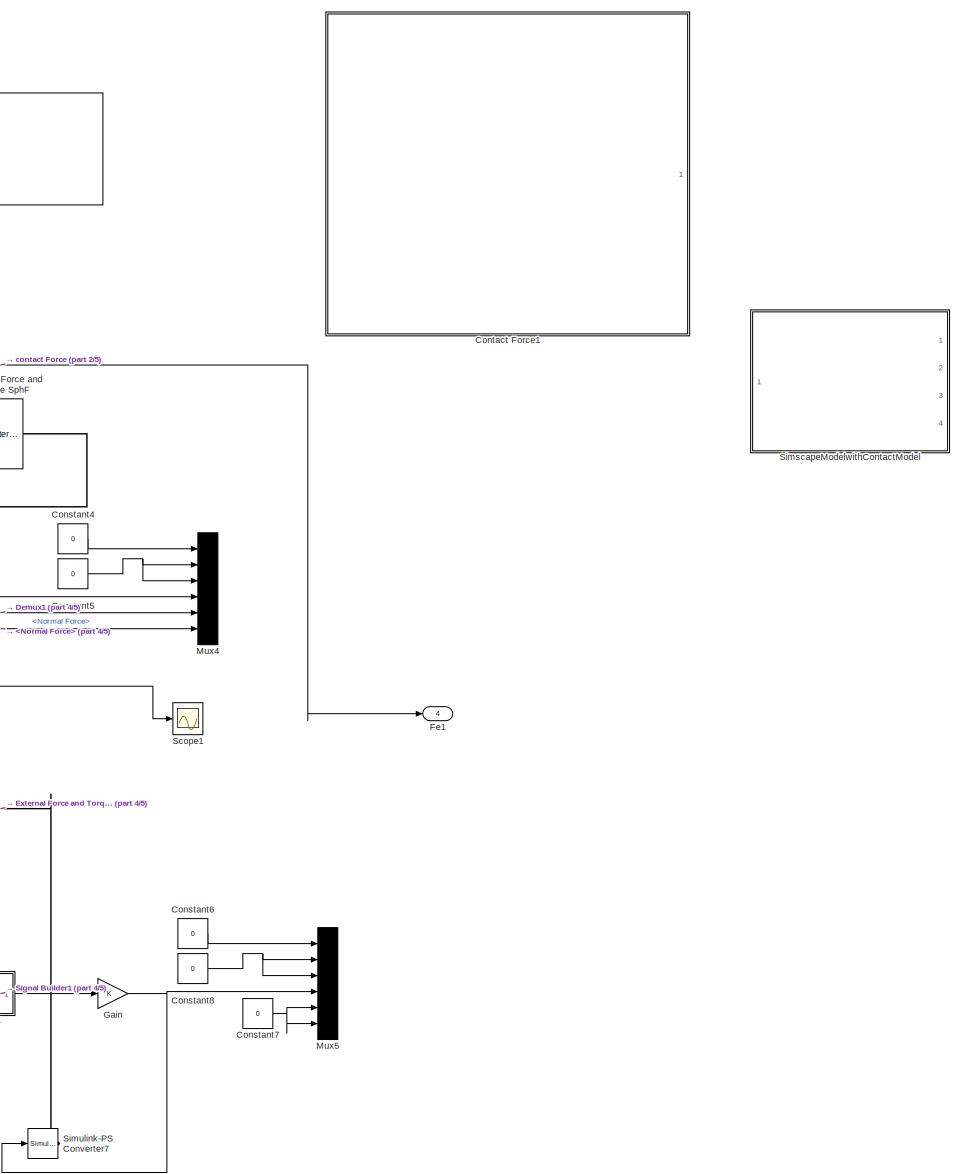
[diagram: SimscapeModelwithContactModel1 - part 1/5, middle right region]
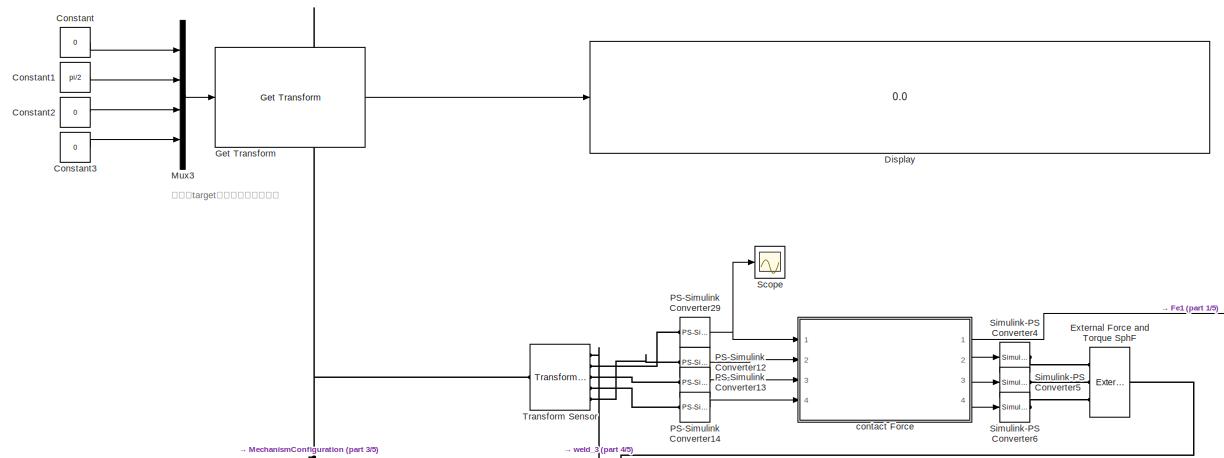
[diagram: SimscapeModelwithContactModel1 - part 2/5, top center region]
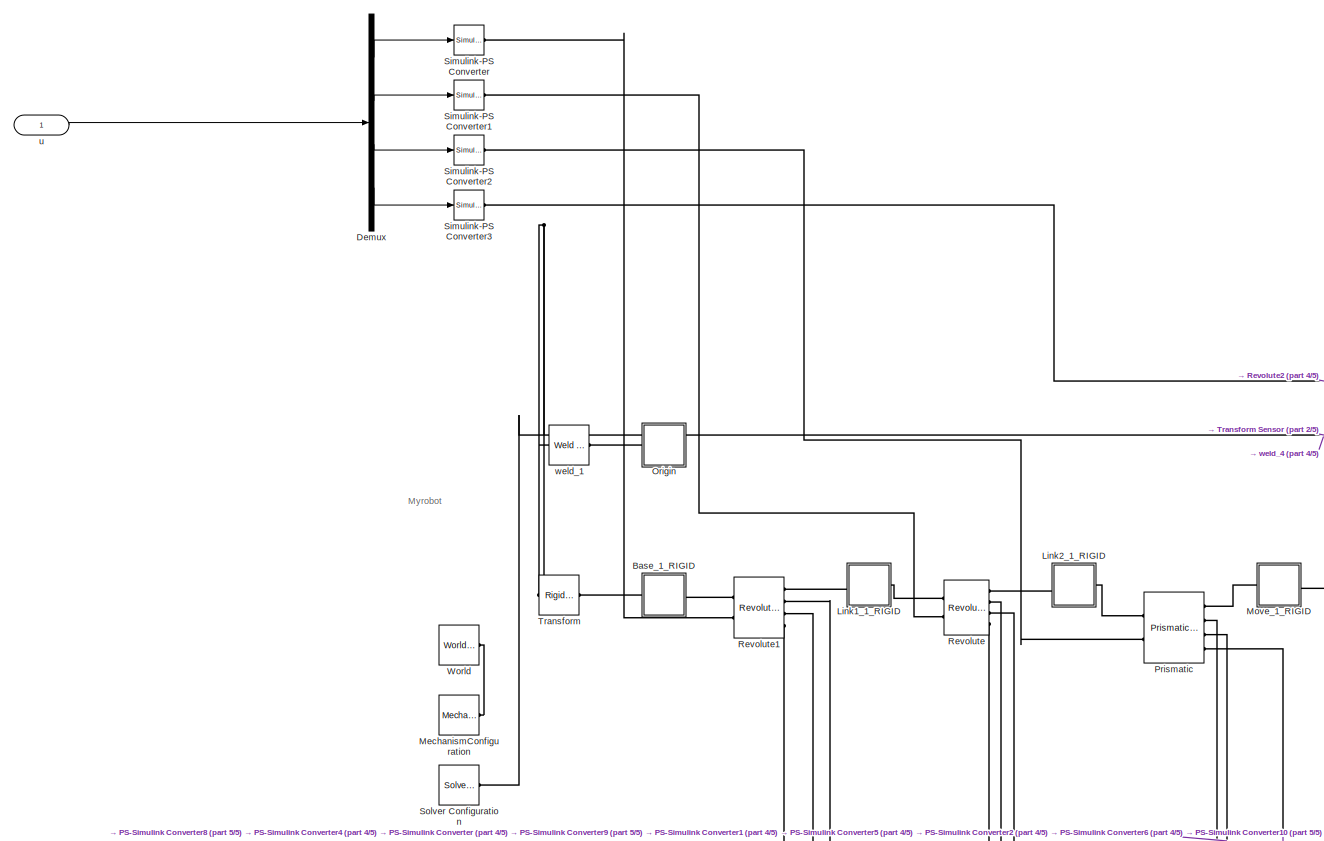
[diagram: SimscapeModelwithContactModel1 - part 3/5, top left region]
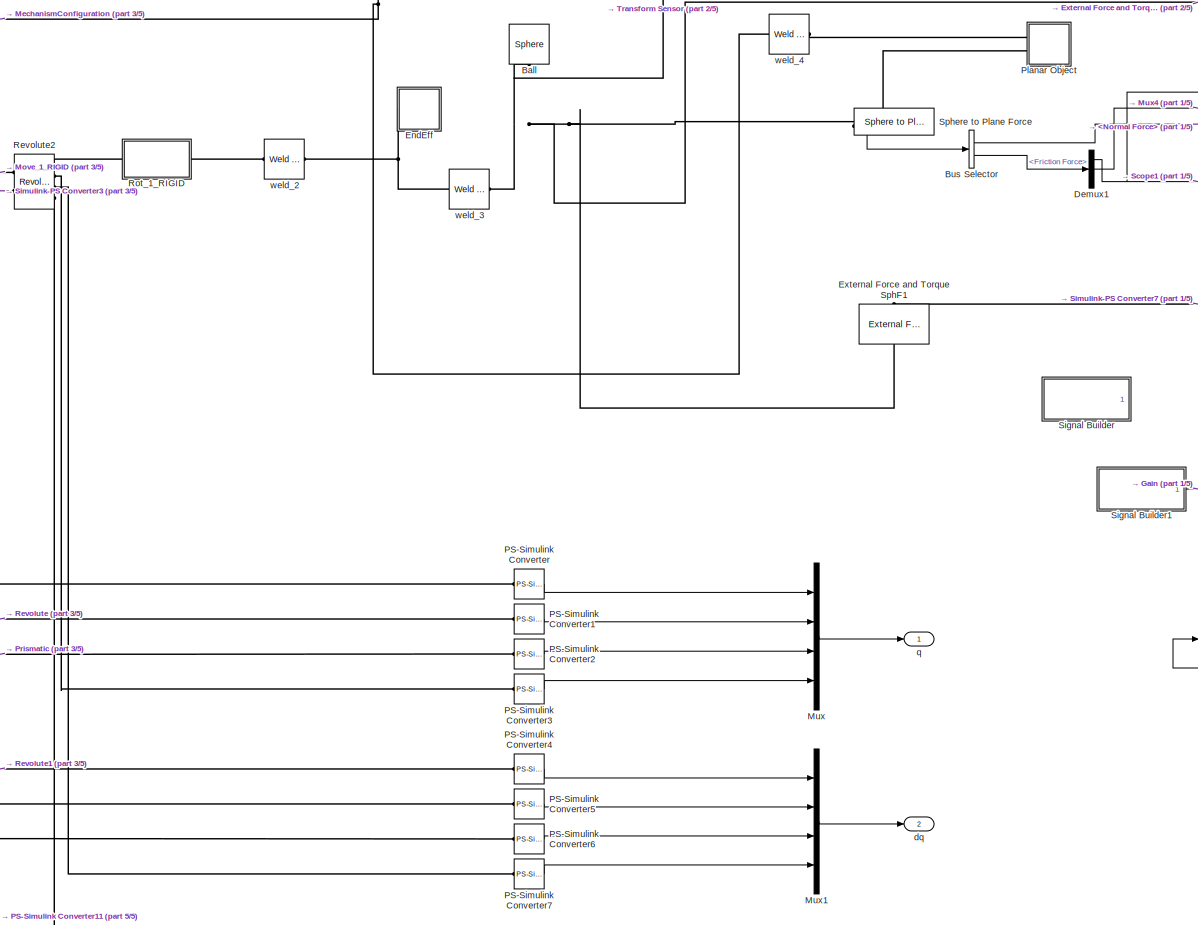
[diagram: SimscapeModelwithContactModel1 - part 4/5, central region]
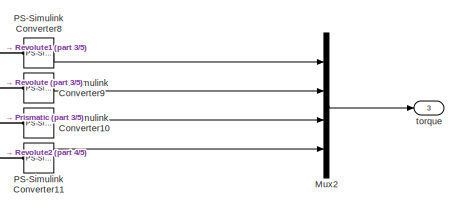
[diagram: SimscapeModelwithContactModel1 - part 5/5, bottom center region]
BLOCK [SubSystem] SimscapeModelwithContactModel1
  Ports = [1, 4]
  RequestExecContextInheritance = off
BLOCK [Reference] SimscapeModelwithContactModel1/Ball  REF=Parts_Lib/Sphere
  Ports = [0, 0, 0, 0, 0, 1]
  SourceBlock = Parts_Lib/Sphere
  SourceType = Sphere with Markings
  Tag = CustomStyle
BLOCK [SubSystem] SimscapeModelwithContactModel1/Base_1_RIGID
  Ports = [0, 0, 0, 0, 0, 1, 1]
  RequestExecContextInheritance = off
BLOCK [PMIOPort] SimscapeModelwithContactModel1/Base_1_RIGID/F
  Port = 2
  Side = Right
BLOCK [PMIOPort] SimscapeModelwithContactModel1/Base_1_RIGID/F1
  Side = Left
BLOCK [Reference] SimscapeModelwithContactModel1/Base_1_RIGID/ReferenceFrame  REF=sm_lib/Frames and
Transforms/Reference
Frame
  Ports = [0, 0, 0, 0, 0, 0, 1]
  SourceBlock = sm_lib/Frames and\nTransforms/Reference\nFrame
  SourceProductBaseCode = MS
  SourceProductName = Simscape Multibody
  SourceType = Reference\nFrame
BLOCK [Reference] SimscapeModelwithContactModel1/Base_1_RIGID/Solid  REF=sm_lib/Body Elements/Solid
  Ports = [0, 0, 0, 0, 0, 1]
  SourceBlock = sm_lib/Body Elements/Solid
  SourceProductBaseCode = MS
  SourceProductName = Simscape Multibody
  SourceType = Solid
BLOCK [Reference] SimscapeModelwithContactModel1/Base_1_RIGID/Transform  REF=sm_lib/Frames and
Transforms/Rigid
Transform
  Ports = [0, 0, 0, 0, 0, 1, 1]
  SourceBlock = sm_lib/Frames and\nTransforms/Rigid\nTransform
  SourceProductBaseCode = MS
  SourceProductName = Simscape Multibody
  SourceType = Rigid\nTransform
BLOCK [BusSelector] SimscapeModelwithContactModel1/Bus Selector
  Commented = on
  OutputAsBus = off
  OutputSignals = Normal Force,Friction Force
  Ports = [1, 2]
BLOCK [Constant] SimscapeModelwithContactModel1/Constant
  Value = 0
BLOCK [Constant] SimscapeModelwithContactModel1/Constant1
  Value = pi/2
BLOCK [Constant] SimscapeModelwithContactModel1/Constant2
  Value = 0
BLOCK [Constant] SimscapeModelwithContactModel1/Constant3
  Value = 0
BLOCK [Constant] SimscapeModelwithContactModel1/Constant4
  Value = 0
BLOCK [Constant] SimscapeModelwithContactModel1/Constant5
  Value = 0
BLOCK [Constant] SimscapeModelwithContactModel1/Constant6
  Commented = on
  Value = 0
BLOCK [Constant] SimscapeModelwithContactModel1/Constant7
  Commented = on
  Value = 0
BLOCK [Constant] SimscapeModelwithContactModel1/Constant8
  Commented = on
  Value = 0
BLOCK [SubSystem] SimscapeModelwithContactModel1/Contact Force1
  Commented = on
  Ports = [0, 1, 0, 0, 0, 2]
  RequestExecContextInheritance = off
BLOCK [Outport] SimscapeModelwithContactModel1/Contact Force1/Force
  IconDisplay = Port number
BLOCK [SubSystem] SimscapeModelwithContactModel1/Contact Force1/Planar Object
  Ports = [0, 0, 0, 0, 0, 2]
  RequestExecContextInheritance = off
BLOCK [PMIOPort] SimscapeModelwithContactModel1/Contact Force1/Planar Object/F
  Side = Left
BLOCK [PMIOPort] SimscapeModelwithContactModel1/Contact Force1/Planar Object/F1
  Port = 2
  Side = Left
BLOCK [Reference] SimscapeModelwithContactModel1/Contact Force1/Planar Object/Inertia  REF=sm_lib/Body Elements/Solid
  Ports = [0, 0, 0, 0, 0, 0, 1]
  SourceBlock = sm_lib/Body Elements/Solid
  SourceProductBaseCode = MS
  SourceProductName = Simscape Multibody
  SourceType = Solid
BLOCK [Reference] SimscapeModelwithContactModel1/Contact Force1/Planar Object/InertiaOriginTransform  REF=sm_lib/Frames and
Transforms/Rigid
Transform
  Ports = [0, 0, 0, 0, 0, 1, 1]
  SourceBlock = sm_lib/Frames and\nTransforms/Rigid\nTransform
  SourceProductBaseCode = MS
  SourceProductName = Simscape Multibody
  SourceType = Rigid\nTransform
BLOCK [Reference] SimscapeModelwithContactModel1/Contact Force1/Planar Object/InertiaOriginTransform1  REF=sm_lib/Frames and
Transforms/Rigid
Transform
  Ports = [0, 0, 0, 0, 0, 1, 1]
  SourceBlock = sm_lib/Frames and\nTransforms/Rigid\nTransform
  SourceProductBaseCode = MS
  SourceProductName = Simscape Multibody
  SourceType = Rigid\nTransform
BLOCK [Reference] SimscapeModelwithContactModel1/Contact Force1/Planar Object/ReferenceFrame  REF=sm_lib/Frames and
Transforms/Reference
Frame
  Ports = [0, 0, 0, 0, 0, 0, 1]
  SourceBlock = sm_lib/Frames and\nTransforms/Reference\nFrame
  SourceProductBaseCode = MS
  SourceProductName = Simscape Multibody
  SourceType = Reference\nFrame
BLOCK [PMIOPort] SimscapeModelwithContactModel1/Contact Force1/SphFace
  Side = Left
BLOCK [Reference] SimscapeModelwithContactModel1/Contact Force1/Sphere to Plane Force  REF=Contact_Forces_Lib/3D/Sphere to Plane Force
  Ports = [0, 1, 0, 0, 0, 1, 1]
  SourceBlock = Contact_Forces_Lib/3D/Sphere to Plane Force
  SourceProductName = Simscape Multibody Contact Forces Library
  SourceType = Sphere to Plane Force
BLOCK [PMIOPort] SimscapeModelwithContactModel1/Contact Force1/plate
  Port = 2
  Side = Left
BLOCK [Reference] SimscapeModelwithContactModel1/Contact Force1/weld_3  REF=sm_lib/Joints/Weld Joint
  Ports = [0, 0, 0, 0, 0, 1, 1]
  SourceBlock = sm_lib/Joints/Weld Joint
  SourceProductBaseCode = MS
  SourceProductName = Simscape Multibody
  SourceType = Weld Joint
BLOCK [Demux] SimscapeModelwithContactModel1/Demux
  DisplayOption = bar
  Ports = [1, 4]
BLOCK [Demux] SimscapeModelwithContactModel1/Demux1
  Commented = on
  DisplayOption = bar
  Outputs = 3
  Ports = [1, 3]
BLOCK [Display] SimscapeModelwithContactModel1/Display
  Decimation = 1
  Format = long
  Ports = [1]
BLOCK [SubSystem] SimscapeModelwithContactModel1/EndEff
  Ports = [0, 0, 0, 0, 0, 1]
  RequestExecContextInheritance = off
BLOCK [PMIOPort] SimscapeModelwithContactModel1/EndEff/F
  Side = Left
BLOCK [Reference] SimscapeModelwithContactModel1/EndEff/ReferenceFrame  REF=sm_lib/Frames and
Transforms/Reference
Frame
  Ports = [0, 0, 0, 0, 0, 0, 1]
  SourceBlock = sm_lib/Frames and\nTransforms/Reference\nFrame
  SourceProductBaseCode = MS
  SourceProductName = Simscape Multibody
  SourceType = Reference\nFrame
BLOCK [Reference] SimscapeModelwithContactModel1/External Force and Torque SphF  REF=sm_lib/Forces and
Torques/External Force
and Torque
  Ports = [0, 0, 0, 0, 0, 3, 1]
  SourceBlock = sm_lib/Forces and\nTorques/External Force\nand Torque
  SourceProductBaseCode = MS
  SourceProductName = Simscape Multibody
  SourceType = External Force\nand Torque
BLOCK [Reference] SimscapeModelwithContactModel1/External Force and Torque SphF1  REF=sm_lib/Forces and
Torques/External Force
and Torque
  Commented = on
  Ports = [0, 0, 0, 0, 0, 1, 1]
  SourceBlock = sm_lib/Forces and\nTorques/External Force\nand Torque
  SourceProductBaseCode = MS
  SourceProductName = Simscape Multibody
  SourceType = External Force\nand Torque
BLOCK [Outport] SimscapeModelwithContactModel1/Fe1
  IconDisplay = Port number
  Port = 4
BLOCK [Gain] SimscapeModelwithContactModel1/Gain
  Commented = on
  OutDataTypeStr = Inherit: Inherit via internal rule
  ParamDataTypeStr = Inherit: Inherit via internal rule
  SaturateOnIntegerOverflow = off
BLOCK [Reference] SimscapeModelwithContactModel1/Get Transform  REF=robotmaniplib/Get Transform
  Ports = [1, 1]
  SourceBlock = robotmaniplib/Get Transform
  SourceProductBaseCode = RO
  SourceProductName = Robotics System Toolbox
  SourceType = Get Transform
BLOCK [SubSystem] SimscapeModelwithContactModel1/Link1_1_RIGID
  Ports = [0, 0, 0, 0, 0, 1, 1]
  RequestExecContextInheritance = off
BLOCK [PMIOPort] SimscapeModelwithContactModel1/Link1_1_RIGID/F
  Port = 2
  Side = Right
BLOCK [PMIOPort] SimscapeModelwithContactModel1/Link1_1_RIGID/F1
  Side = Left
BLOCK [Reference] SimscapeModelwithContactModel1/Link1_1_RIGID/ReferenceFrame  REF=sm_lib/Frames and
Transforms/Reference
Frame
  Ports = [0, 0, 0, 0, 0, 0, 1]
  SourceBlock = sm_lib/Frames and\nTransforms/Reference\nFrame
  SourceProductBaseCode = MS
  SourceProductName = Simscape Multibody
  SourceType = Reference\nFrame
BLOCK [Reference] SimscapeModelwithContactModel1/Link1_1_RIGID/Solid  REF=sm_lib/Body Elements/Solid
  Ports = [0, 0, 0, 0, 0, 0, 1]
  SourceBlock = sm_lib/Body Elements/Solid
  SourceProductBaseCode = MS
  SourceProductName = Simscape Multibody
  SourceType = Solid
BLOCK [Reference] SimscapeModelwithContactModel1/Link1_1_RIGID/Transform  REF=sm_lib/Frames and
Transforms/Rigid
Transform
  Ports = [0, 0, 0, 0, 0, 1, 1]
  SourceBlock = sm_lib/Frames and\nTransforms/Rigid\nTransform
  SourceProductBaseCode = MS
  SourceProductName = Simscape Multibody
  SourceType = Rigid\nTransform
BLOCK [Reference] SimscapeModelwithContactModel1/Link1_1_RIGID/Transform1  REF=sm_lib/Frames and
Transforms/Rigid
Transform
  Ports = [0, 0, 0, 0, 0, 1, 1]
  SourceBlock = sm_lib/Frames and\nTransforms/Rigid\nTransform
  SourceProductBaseCode = MS
  SourceProductName = Simscape Multibody
  SourceType = Rigid\nTransform
BLOCK [SubSystem] SimscapeModelwithContactModel1/Link2_1_RIGID
  Ports = [0, 0, 0, 0, 0, 1, 1]
  RequestExecContextInheritance = off
BLOCK [PMIOPort] SimscapeModelwithContactModel1/Link2_1_RIGID/F
  Side = Left
BLOCK [PMIOPort] SimscapeModelwithContactModel1/Link2_1_RIGID/F1
  Port = 2
  Side = Right
BLOCK [Reference] SimscapeModelwithContactModel1/Link2_1_RIGID/ReferenceFrame  REF=sm_lib/Frames and
Transforms/Reference
Frame
  Ports = [0, 0, 0, 0, 0, 0, 1]
  SourceBlock = sm_lib/Frames and\nTransforms/Reference\nFrame
  SourceProductBaseCode = MS
  SourceProductName = Simscape Multibody
  SourceType = Reference\nFrame
BLOCK [Reference] SimscapeModelwithContactModel1/Link2_1_RIGID/Solid  REF=sm_lib/Body Elements/Solid
  Ports = [0, 0, 0, 0, 0, 0, 1]
  SourceBlock = sm_lib/Body Elements/Solid
  SourceProductBaseCode = MS
  SourceProductName = Simscape Multibody
  SourceType = Solid
BLOCK [Reference] SimscapeModelwithContactModel1/Link2_1_RIGID/Transform  REF=sm_lib/Frames and
Transforms/Rigid
Transform
  Ports = [0, 0, 0, 0, 0, 1, 1]
  SourceBlock = sm_lib/Frames and\nTransforms/Rigid\nTransform
  SourceProductBaseCode = MS
  SourceProductName = Simscape Multibody
  SourceType = Rigid\nTransform
BLOCK [Reference] SimscapeModelwithContactModel1/Link2_1_RIGID/Transform1  REF=sm_lib/Frames and
Transforms/Rigid
Transform
  Ports = [0, 0, 0, 0, 0, 1, 1]
  SourceBlock = sm_lib/Frames and\nTransforms/Rigid\nTransform
  SourceProductBaseCode = MS
  SourceProductName = Simscape Multibody
  SourceType = Rigid\nTransform
BLOCK [Reference] SimscapeModelwithContactModel1/MechanismConfiguration  REF=sm_lib/Utilities/Mechanism
Configuration
  Ports = [0, 0, 0, 0, 0, 0, 1]
  SourceBlock = sm_lib/Utilities/Mechanism\nConfiguration
  SourceProductBaseCode = MS
  SourceProductName = Simscape Multibody
  SourceType = Mechanism\nConfiguration
BLOCK [SubSystem] SimscapeModelwithContactModel1/Move_1_RIGID
  Ports = [0, 0, 0, 0, 0, 1, 1]
  RequestExecContextInheritance = off
BLOCK [PMIOPort] SimscapeModelwithContactModel1/Move_1_RIGID/F
  Side = Left
BLOCK [PMIOPort] SimscapeModelwithContactModel1/Move_1_RIGID/F1
  Port = 2
  Side = Right
BLOCK [Reference] SimscapeModelwithContactModel1/Move_1_RIGID/ReferenceFrame  REF=sm_lib/Frames and
Transforms/Reference
Frame
  Ports = [0, 0, 0, 0, 0, 0, 1]
  SourceBlock = sm_lib/Frames and\nTransforms/Reference\nFrame
  SourceProductBaseCode = MS
  SourceProductName = Simscape Multibody
  SourceType = Reference\nFrame
BLOCK [Reference] SimscapeModelwithContactModel1/Move_1_RIGID/Solid  REF=sm_lib/Body Elements/Solid
  Ports = [0, 0, 0, 0, 0, 0, 1]
  SourceBlock = sm_lib/Body Elements/Solid
  SourceProductBaseCode = MS
  SourceProductName = Simscape Multibody
  SourceType = Solid
BLOCK [Reference] SimscapeModelwithContactModel1/Move_1_RIGID/Transform  REF=sm_lib/Frames and
Transforms/Rigid
Transform
  Ports = [0, 0, 0, 0, 0, 1, 1]
  SourceBlock = sm_lib/Frames and\nTransforms/Rigid\nTransform
  SourceProductBaseCode = MS
  SourceProductName = Simscape Multibody
  SourceType = Rigid\nTransform
BLOCK [Reference] SimscapeModelwithContactModel1/Move_1_RIGID/Transform1  REF=sm_lib/Frames and
Transforms/Rigid
Transform
  Ports = [0, 0, 0, 0, 0, 1, 1]
  SourceBlock = sm_lib/Frames and\nTransforms/Rigid\nTransform
  SourceProductBaseCode = MS
  SourceProductName = Simscape Multibody
  SourceType = Rigid\nTransform
BLOCK [Mux] SimscapeModelwithContactModel1/Mux
  DisplayOption = bar
  Ports = [4, 1]
BLOCK [Mux] SimscapeModelwithContactModel1/Mux1
  DisplayOption = bar
  Ports = [4, 1]
BLOCK [Mux] SimscapeModelwithContactModel1/Mux2
  DisplayOption = bar
  Ports = [4, 1]
BLOCK [Mux] SimscapeModelwithContactModel1/Mux3
  DisplayOption = bar
  Ports = [4, 1]
BLOCK [Mux] SimscapeModelwithContactModel1/Mux4
  Commented = on
  DisplayOption = bar
  Inputs = 6
  Ports = [6, 1]
BLOCK [Mux] SimscapeModelwithContactModel1/Mux5
  Commented = on
  DisplayOption = bar
  Inputs = 6
  Ports = [6, 1]
BLOCK [SubSystem] SimscapeModelwithContactModel1/Origin
  Ports = [0, 0, 0, 0, 0, 1]
  RequestExecContextInheritance = off
BLOCK [PMIOPort] SimscapeModelwithContactModel1/Origin/F
  Side = Left
BLOCK [Reference] SimscapeModelwithContactModel1/Origin/ReferenceFrame  REF=sm_lib/Frames and
Transforms/Reference
Frame
  Ports = [0, 0, 0, 0, 0, 0, 1]
  SourceBlock = sm_lib/Frames and\nTransforms/Reference\nFrame
  SourceProductBaseCode = MS
  SourceProductName = Simscape Multibody
  SourceType = Reference\nFrame
BLOCK [Reference] SimscapeModelwithContactModel1/PS-Simulink Converter  REF=nesl_utility/PS-Simulink
Converter
  Ports = [0, 1, 0, 0, 0, 1]
  SourceBlock = nesl_utility/PS-Simulink\nConverter
  SourceProductBaseCode = SS
  SourceProductName = Simscape
  SourceType = PS-Simulink\nConverter
BLOCK [Reference] SimscapeModelwithContactModel1/PS-Simulink Converter1  REF=nesl_utility/PS-Simulink
Converter
  Ports = [0, 1, 0, 0, 0, 1]
  SourceBlock = nesl_utility/PS-Simulink\nConverter
  SourceProductBaseCode = SS
  SourceProductName = Simscape
  SourceType = PS-Simulink\nConverter
BLOCK [Reference] SimscapeModelwithContactModel1/PS-Simulink Converter10  REF=nesl_utility/PS-Simulink
Converter
  Ports = [0, 1, 0, 0, 0, 1]
  SourceBlock = nesl_utility/PS-Simulink\nConverter
  SourceProductBaseCode = SS
  SourceProductName = Simscape
  SourceType = PS-Simulink\nConverter
BLOCK [Reference] SimscapeModelwithContactModel1/PS-Simulink Converter11  REF=nesl_utility/PS-Simulink
Converter
  Ports = [0, 1, 0, 0, 0, 1]
  SourceBlock = nesl_utility/PS-Simulink\nConverter
  SourceProductBaseCode = SS
  SourceProductName = Simscape
  SourceType = PS-Simulink\nConverter
BLOCK [Reference] SimscapeModelwithContactModel1/PS-Simulink Converter12  REF=nesl_utility/PS-Simulink
Converter
  Ports = [0, 1, 0, 0, 0, 1]
  SourceBlock = nesl_utility/PS-Simulink\nConverter
  SourceProductBaseCode = SS
  SourceProductName = Simscape
  SourceType = PS-Simulink\nConverter
BLOCK [Reference] SimscapeModelwithContactModel1/PS-Simulink Converter13  REF=nesl_utility/PS-Simulink
Converter
  Ports = [0, 1, 0, 0, 0, 1]
  SourceBlock = nesl_utility/PS-Simulink\nConverter
  SourceProductBaseCode = SS
  SourceProductName = Simscape
  SourceType = PS-Simulink\nConverter
BLOCK [Reference] SimscapeModelwithContactModel1/PS-Simulink Converter14  REF=nesl_utility/PS-Simulink
Converter
  Ports = [0, 1, 0, 0, 0, 1]
  SourceBlock = nesl_utility/PS-Simulink\nConverter
  SourceProductBaseCode = SS
  SourceProductName = Simscape
  SourceType = PS-Simulink\nConverter
BLOCK [Reference] SimscapeModelwithContactModel1/PS-Simulink Converter2  REF=nesl_utility/PS-Simulink
Converter
  Ports = [0, 1, 0, 0, 0, 1]
  SourceBlock = nesl_utility/PS-Simulink\nConverter
  SourceProductBaseCode = SS
  SourceProductName = Simscape
  SourceType = PS-Simulink\nConverter
BLOCK [Reference] SimscapeModelwithContactModel1/PS-Simulink Converter29  REF=nesl_utility/PS-Simulink
Converter
  Ports = [0, 1, 0, 0, 0, 1]
  SourceBlock = nesl_utility/PS-Simulink\nConverter
  SourceProductBaseCode = SS
  SourceProductName = Simscape
  SourceType = PS-Simulink\nConverter
BLOCK [Reference] SimscapeModelwithContactModel1/PS-Simulink Converter3  REF=nesl_utility/PS-Simulink
Converter
  Ports = [0, 1, 0, 0, 0, 1]
  SourceBlock = nesl_utility/PS-Simulink\nConverter
  SourceProductBaseCode = SS
  SourceProductName = Simscape
  SourceType = PS-Simulink\nConverter
BLOCK [Reference] SimscapeModelwithContactModel1/PS-Simulink Converter4  REF=nesl_utility/PS-Simulink
Converter
  Ports = [0, 1, 0, 0, 0, 1]
  SourceBlock = nesl_utility/PS-Simulink\nConverter
  SourceProductBaseCode = SS
  SourceProductName = Simscape
  SourceType = PS-Simulink\nConverter
BLOCK [Reference] SimscapeModelwithContactModel1/PS-Simulink Converter5  REF=nesl_utility/PS-Simulink
Converter
  Ports = [0, 1, 0, 0, 0, 1]
  SourceBlock = nesl_utility/PS-Simulink\nConverter
  SourceProductBaseCode = SS
  SourceProductName = Simscape
  SourceType = PS-Simulink\nConverter
BLOCK [Reference] SimscapeModelwithContactModel1/PS-Simulink Converter6  REF=nesl_utility/PS-Simulink
Converter
  Ports = [0, 1, 0, 0, 0, 1]
  SourceBlock = nesl_utility/PS-Simulink\nConverter
  SourceProductBaseCode = SS
  SourceProductName = Simscape
  SourceType = PS-Simulink\nConverter
BLOCK [Reference] SimscapeModelwithContactModel1/PS-Simulink Converter7  REF=nesl_utility/PS-Simulink
Converter
  Ports = [0, 1, 0, 0, 0, 1]
  SourceBlock = nesl_utility/PS-Simulink\nConverter
  SourceProductBaseCode = SS
  SourceProductName = Simscape
  SourceType = PS-Simulink\nConverter
BLOCK [Reference] SimscapeModelwithContactModel1/PS-Simulink Converter8  REF=nesl_utility/PS-Simulink
Converter
  Ports = [0, 1, 0, 0, 0, 1]
  SourceBlock = nesl_utility/PS-Simulink\nConverter
  SourceProductBaseCode = SS
  SourceProductName = Simscape
  SourceType = PS-Simulink\nConverter
BLOCK [Reference] SimscapeModelwithContactModel1/PS-Simulink Converter9  REF=nesl_utility/PS-Simulink
Converter
  Ports = [0, 1, 0, 0, 0, 1]
  SourceBlock = nesl_utility/PS-Simulink\nConverter
  SourceProductBaseCode = SS
  SourceProductName = Simscape
  SourceType = PS-Simulink\nConverter
BLOCK [SubSystem] SimscapeModelwithContactModel1/Planar Object
  Ports = [0, 0, 0, 0, 0, 2]
  RequestExecContextInheritance = off
BLOCK [PMIOPort] SimscapeModelwithContactModel1/Planar Object/F
  Side = Left
BLOCK [PMIOPort] SimscapeModelwithContactModel1/Planar Object/F1
  Port = 2
  Side = Left
BLOCK [Reference] SimscapeModelwithContactModel1/Planar Object/Inertia  REF=sm_lib/Body Elements/Solid
  Ports = [0, 0, 0, 0, 0, 0, 1]
  SourceBlock = sm_lib/Body Elements/Solid
  SourceProductBaseCode = MS
  SourceProductName = Simscape Multibody
  SourceType = Solid
BLOCK [Reference] SimscapeModelwithContactModel1/Planar Object/InertiaOriginTransform  REF=sm_lib/Frames and
Transforms/Rigid
Transform
  Ports = [0, 0, 0, 0, 0, 1, 1]
  SourceBlock = sm_lib/Frames and\nTransforms/Rigid\nTransform
  SourceProductBaseCode = MS
  SourceProductName = Simscape Multibody
  SourceType = Rigid\nTransform
BLOCK [Reference] SimscapeModelwithContactModel1/Planar Object/InertiaOriginTransform1  REF=sm_lib/Frames and
Transforms/Rigid
Transform
  Ports = [0, 0, 0, 0, 0, 1, 1]
  SourceBlock = sm_lib/Frames and\nTransforms/Rigid\nTransform
  SourceProductBaseCode = MS
  SourceProductName = Simscape Multibody
  SourceType = Rigid\nTransform
BLOCK [Reference] SimscapeModelwithContactModel1/Planar Object/ReferenceFrame  REF=sm_lib/Frames and
Transforms/Reference
Frame
  Ports = [0, 0, 0, 0, 0, 0, 1]
  SourceBlock = sm_lib/Frames and\nTransforms/Reference\nFrame
  SourceProductBaseCode = MS
  SourceProductName = Simscape Multibody
  SourceType = Reference\nFrame
BLOCK [Reference] SimscapeModelwithContactModel1/Prismatic  REF=sm_lib/Joints/Prismatic
Joint
  Ports = [0, 0, 0, 0, 0, 2, 4]
  SourceBlock = sm_lib/Joints/Prismatic\nJoint
  SourceProductBaseCode = MS
  SourceProductName = Simscape Multibody
  SourceType = Prismatic\nJoint
BLOCK [Reference] SimscapeModelwithContactModel1/Revolute  REF=sm_lib/Joints/Revolute Joint
  Ports = [0, 0, 0, 0, 0, 2, 4]
  SourceBlock = sm_lib/Joints/Revolute Joint
  SourceProductBaseCode = MS
  SourceProductName = Simscape Multibody
  SourceType = Revolute Joint
BLOCK [Reference] SimscapeModelwithContactModel1/Revolute1  REF=sm_lib/Joints/Revolute Joint
  Ports = [0, 0, 0, 0, 0, 2, 4]
  SourceBlock = sm_lib/Joints/Revolute Joint
  SourceProductBaseCode = MS
  SourceProductName = Simscape Multibody
  SourceType = Revolute Joint
BLOCK [Reference] SimscapeModelwithContactModel1/Revolute2  REF=sm_lib/Joints/Revolute Joint
  Ports = [0, 0, 0, 0, 0, 2, 4]
  SourceBlock = sm_lib/Joints/Revolute Joint
  SourceProductBaseCode = MS
  SourceProductName = Simscape Multibody
  SourceType = Revolute Joint
BLOCK [SubSystem] SimscapeModelwithContactModel1/Rot_1_RIGID
  Ports = [0, 0, 0, 0, 0, 1, 1]
  RequestExecContextInheritance = off
BLOCK [PMIOPort] SimscapeModelwithContactModel1/Rot_1_RIGID/F
  Side = Left
BLOCK [Reference] SimscapeModelwithContactModel1/Rot_1_RIGID/ReferenceFrame  REF=sm_lib/Frames and
Transforms/Reference
Frame
  Ports = [0, 0, 0, 0, 0, 0, 1]
  SourceBlock = sm_lib/Frames and\nTransforms/Reference\nFrame
  SourceProductBaseCode = MS
  SourceProductName = Simscape Multibody
  SourceType = Reference\nFrame
BLOCK [Reference] SimscapeModelwithContactModel1/Rot_1_RIGID/Solid  REF=sm_lib/Body Elements/Solid
  Ports = [0, 0, 0, 0, 0, 0, 1]
  SourceBlock = sm_lib/Body Elements/Solid
  SourceProductBaseCode = MS
  SourceProductName = Simscape Multibody
  SourceType = Solid
BLOCK [Reference] SimscapeModelwithContactModel1/Rot_1_RIGID/Transform1  REF=sm_lib/Frames and
Transforms/Rigid
Transform
  Ports = [0, 0, 0, 0, 0, 1, 1]
  SourceBlock = sm_lib/Frames and\nTransforms/Rigid\nTransform
  SourceProductBaseCode = MS
  SourceProductName = Simscape Multibody
  SourceType = Rigid\nTransform
BLOCK [Reference] SimscapeModelwithContactModel1/Rot_1_RIGID/Transform8  REF=sm_lib/Frames and
Transforms/Rigid
Transform
  Ports = [0, 0, 0, 0, 0, 1, 1]
  SourceBlock = sm_lib/Frames and\nTransforms/Rigid\nTransform
  SourceProductBaseCode = MS
  SourceProductName = Simscape Multibody
  SourceType = Rigid\nTransform
BLOCK [PMIOPort] SimscapeModelwithContactModel1/Rot_1_RIGID/endEff
  Port = 2
  Side = Right
BLOCK [Scope] SimscapeModelwithContactModel1/Scope
  Floating = off
  NumInputPorts = 1
  Ports = [1]
  ScopeSpecificationString = Simulink.scopes.TimeScopeBlockCfg('CurrentConfiguration', extmgr.ConfigurationSet(extmgr.Configuration('Core','General UI',true),extmgr.Configuration('Core','Source UI',true),extmgr.Configuration('Sources','WiredSimulink',true,'DataLoggingVariableName','ScopeData8'),extmgr.Configuration('Visuals','Time Domain',true,'SerializedDisplays',{struct('MinYLimReal','-0.05559','MaxYLimReal','0.79785','YLab...<+1407ch>
BLOCK [Scope] SimscapeModelwithContactModel1/Scope1
  Commented = on
  Floating = off
  NumInputPorts = 1
  Ports = [1]
  ScopeSpecificationString = Simulink.scopes.TimeScopeBlockCfg('CurrentConfiguration', extmgr.ConfigurationSet(extmgr.Configuration('Core','General UI',true),extmgr.Configuration('Core','Source UI',true),extmgr.Configuration('Sources','WiredSimulink',true,'DataLoggingVariableName','ScopeData16'),extmgr.Configuration('Visuals','Time Domain',true,'SerializedDisplays',{struct('MinYLimReal','-1.00000','MaxYLimReal','1.00000','YLa...<+1422ch>
BLOCK [SubSystem] SimscapeModelwithContactModel1/Signal Builder
  ClipboardFcn = sigbuilder_block('clipboard');
  CloseFcn = sigbuilder_block('close');
  Commented = on
  ContinueFcn = sigbuilder_block('continue');
  CopyFcn = sigbuilder_block('copy');
  DeleteFcn = sigbuilder_block('delete');
  LoadFcn = sigbuilder_block('load');
  MaskHideContents = on
  ModelCloseFcn = sigbuilder_block('modelClose');
  NameChangeFcn = sigbuilder_block('namechange');
  OpenFcn = sigbuilder_block('open',[437.6 199.2 550.4 400 ]);
  PauseFcn = sigbuilder_block('pause');
  Ports = [0, 1]
  PreSaveFcn = sigbuilder_block('preSave');
  RequestExecContextInheritance = off
  StartFcn = sigbuilder_block('start');
  StopFcn = sigbuilder_block('stop');
  Tag = STV Subsys
BLOCK [Demux] SimscapeModelwithContactModel1/Signal Builder/Demux
  Outputs = 1
  Ports = [1, 1]
  Tag = STV Demux
BLOCK [FromWorkspace] SimscapeModelwithContactModel1/Signal Builder/FromWs
  SampleTime = 0
  Tag = STV FromWs
  VariableName = tuvar
  ZeroCross = on
BLOCK [Outport] SimscapeModelwithContactModel1/Signal Builder/Signal 1
  IconDisplay = Port number
  Tag = STV Outport
BLOCK [SubSystem] SimscapeModelwithContactModel1/Signal Builder1
  ClipboardFcn = sigbuilder_block('clipboard');
  CloseFcn = sigbuilder_block('close');
  Commented = on
  ContinueFcn = sigbuilder_block('continue');
  CopyFcn = sigbuilder_block('copy');
  DeleteFcn = sigbuilder_block('delete');
  LoadFcn = sigbuilder_block('load');
  MaskHideContents = on
  ModelCloseFcn = sigbuilder_block('modelClose');
  NameChangeFcn = sigbuilder_block('namechange');
  OpenFcn = sigbuilder_block('open',[415.2 152.4 550.8 400.2 ]);
  PauseFcn = sigbuilder_block('pause');
  Ports = [0, 1]
  PreSaveFcn = sigbuilder_block('preSave');
  RequestExecContextInheritance = off
  StartFcn = sigbuilder_block('start');
  StopFcn = sigbuilder_block('stop');
  Tag = STV Subsys
BLOCK [Demux] SimscapeModelwithContactModel1/Signal Builder1/Demux
  Outputs = 1
  Ports = [1, 1]
  Tag = STV Demux
BLOCK [FromWorkspace] SimscapeModelwithContactModel1/Signal Builder1/FromWs
  SampleTime = 0
  Tag = STV FromWs
  VariableName = tuvar
  ZeroCross = on
BLOCK [Outport] SimscapeModelwithContactModel1/Signal Builder1/Signal 1
  IconDisplay = Port number
  Tag = STV Outport
BLOCK [SubSystem] SimscapeModelwithContactModel1/SimscapeModelwithContactModel
  Commented = on
  Ports = [1, 4]
  RequestExecContextInheritance = off
BLOCK [Reference] SimscapeModelwithContactModel1/SimscapeModelwithContactModel/Ball  REF=Parts_Lib/Sphere
  Ports = [0, 0, 0, 0, 0, 1]
  SourceBlock = Parts_Lib/Sphere
  SourceType = Sphere with Markings
  Tag = CustomStyle
BLOCK [SubSystem] SimscapeModelwithContactModel1/SimscapeModelwithContactModel/Base_1_RIGID
  Ports = [0, 0, 0, 0, 0, 1, 1]
  RequestExecContextInheritance = off
BLOCK [PMIOPort] SimscapeModelwithContactModel1/SimscapeModelwithContactModel/Base_1_RIGID/F
  Port = 2
  Side = Right
BLOCK [PMIOPort] SimscapeModelwithContactModel1/SimscapeModelwithContactModel/Base_1_RIGID/F1
  Side = Left
BLOCK [Reference] SimscapeModelwithContactModel1/SimscapeModelwithContactModel/Base_1_RIGID/ReferenceFrame  REF=sm_lib/Frames and
Transforms/Reference
Frame
  Ports = [0, 0, 0, 0, 0, 0, 1]
  SourceBlock = sm_lib/Frames and\nTransforms/Reference\nFrame
  SourceProductBaseCode = MS
  SourceProductName = Simscape Multibody
  SourceType = Reference\nFrame
BLOCK [Reference] SimscapeModelwithContactModel1/SimscapeModelwithContactModel/Base_1_RIGID/Solid  REF=sm_lib/Body Elements/Solid
  Ports = [0, 0, 0, 0, 0, 1]
  SourceBlock = sm_lib/Body Elements/Solid
  SourceProductBaseCode = MS
  SourceProductName = Simscape Multibody
  SourceType = Solid
BLOCK [Reference] SimscapeModelwithContactModel1/SimscapeModelwithContactModel/Base_1_RIGID/Transform  REF=sm_lib/Frames and
Transforms/Rigid
Transform
  Ports = [0, 0, 0, 0, 0, 1, 1]
  SourceBlock = sm_lib/Frames and\nTransforms/Rigid\nTransform
  SourceProductBaseCode = MS
  SourceProductName = Simscape Multibody
  SourceType = Rigid\nTransform
BLOCK [BusSelector] SimscapeModelwithContactModel1/SimscapeModelwithContactModel/Bus Selector
  Commented = on
  OutputAsBus = off
  OutputSignals = Normal Force
  Ports = [1, 1]
BLOCK [Constant] SimscapeModelwithContactModel1/SimscapeModelwithContactModel/Constant
  Commented = on
  Value = 0
BLOCK [Constant] SimscapeModelwithContactModel1/SimscapeModelwithContactModel/Constant1
  Commented = on
  Value = 0
BLOCK [Constant] SimscapeModelwithContactModel1/SimscapeModelwithContactModel/Constant2
  Commented = on
  Value = -0.2235
BLOCK [Constant] SimscapeModelwithContactModel1/SimscapeModelwithContactModel/Constant3
  Commented = on
  Value = 0
BLOCK [Constant] SimscapeModelwithContactModel1/SimscapeModelwithContactModel/Constant4
  Commented = on
  Value = 0
BLOCK [Constant] SimscapeModelwithContactModel1/SimscapeModelwithContactModel/Constant5
  Commented = on
  Value = 0
BLOCK [Constant] SimscapeModelwithContactModel1/SimscapeModelwithContactModel/Constant6
  Commented = on
  Value = 0
BLOCK [Constant] SimscapeModelwithContactModel1/SimscapeModelwithContactModel/Constant7
  Commented = on
  Value = 0
BLOCK [Constant] SimscapeModelwithContactModel1/SimscapeModelwithContactModel/Constant8
  Commented = on
  Value = 0
BLOCK [SubSystem] SimscapeModelwithContactModel1/SimscapeModelwithContactModel/Contact Force1
  Commented = on
  Ports = [0, 1, 0, 0, 0, 2]
  RequestExecContextInheritance = off
BLOCK [Outport] SimscapeModelwithContactModel1/SimscapeModelwithContactModel/Contact Force1/Force
  IconDisplay = Port number
BLOCK [SubSystem] SimscapeModelwithContactModel1/SimscapeModelwithContactModel/Contact Force1/Planar Object
  Ports = [0, 0, 0, 0, 0, 2]
  RequestExecContextInheritance = off
BLOCK [PMIOPort] SimscapeModelwithContactModel1/SimscapeModelwithContactModel/Contact Force1/Planar Object/F
  Side = Left
BLOCK [PMIOPort] SimscapeModelwithContactModel1/SimscapeModelwithContactModel/Contact Force1/Planar Object/F1
  Port = 2
  Side = Left
BLOCK [Reference] SimscapeModelwithContactModel1/SimscapeModelwithContactModel/Contact Force1/Planar Object/Inertia  REF=sm_lib/Body Elements/Solid
  Ports = [0, 0, 0, 0, 0, 0, 1]
  SourceBlock = sm_lib/Body Elements/Solid
  SourceProductBaseCode = MS
  SourceProductName = Simscape Multibody
  SourceType = Solid
BLOCK [Reference] SimscapeModelwithContactModel1/SimscapeModelwithContactModel/Contact Force1/Planar Object/InertiaOriginTransform  REF=sm_lib/Frames and
Transforms/Rigid
Transform
  Ports = [0, 0, 0, 0, 0, 1, 1]
  SourceBlock = sm_lib/Frames and\nTransforms/Rigid\nTransform
  SourceProductBaseCode = MS
  SourceProductName = Simscape Multibody
  SourceType = Rigid\nTransform
BLOCK [Reference] SimscapeModelwithContactModel1/SimscapeModelwithContactModel/Contact Force1/Planar Object/InertiaOriginTransform1  REF=sm_lib/Frames and
Transforms/Rigid
Transform
  Ports = [0, 0, 0, 0, 0, 1, 1]
  SourceBlock = sm_lib/Frames and\nTransforms/Rigid\nTransform
  SourceProductBaseCode = MS
  SourceProductName = Simscape Multibody
  SourceType = Rigid\nTransform
BLOCK [Reference] SimscapeModelwithContactModel1/SimscapeModelwithContactModel/Contact Force1/Planar Object/ReferenceFrame  REF=sm_lib/Frames and
Transforms/Reference
Frame
  Ports = [0, 0, 0, 0, 0, 0, 1]
  SourceBlock = sm_lib/Frames and\nTransforms/Reference\nFrame
  SourceProductBaseCode = MS
  SourceProductName = Simscape Multibody
  SourceType = Reference\nFrame
BLOCK [PMIOPort] SimscapeModelwithContactModel1/SimscapeModelwithContactModel/Contact Force1/SphFace
  Side = Left
BLOCK [Reference] SimscapeModelwithContactModel1/SimscapeModelwithContactModel/Contact Force1/Sphere to Plane Force  REF=Contact_Forces_Lib/3D/Sphere to Plane Force
  Ports = [0, 1, 0, 0, 0, 1, 1]
  SourceBlock = Contact_Forces_Lib/3D/Sphere to Plane Force
  SourceProductName = Simscape Multibody Contact Forces Library
  SourceType = Sphere to Plane Force
BLOCK [PMIOPort] SimscapeModelwithContactModel1/SimscapeModelwithContactModel/Contact Force1/plate
  Port = 2
  Side = Left
BLOCK [Reference] SimscapeModelwithContactModel1/SimscapeModelwithContactModel/Contact Force1/weld_3  REF=sm_lib/Joints/Weld Joint
  Ports = [0, 0, 0, 0, 0, 1, 1]
  SourceBlock = sm_lib/Joints/Weld Joint
  SourceProductBaseCode = MS
  SourceProductName = Simscape Multibody
  SourceType = Weld Joint
BLOCK [Demux] SimscapeModelwithContactModel1/SimscapeModelwithContactModel/Demux
  DisplayOption = bar
  Ports = [1, 4]
BLOCK [Display] SimscapeModelwithContactModel1/SimscapeModelwithContactModel/Display
  Commented = on
  Decimation = 1
  Format = long
  Ports = [1]
BLOCK [SubSystem] SimscapeModelwithContactModel1/SimscapeModelwithContactModel/EndEff
  Ports = [0, 0, 0, 0, 0, 1]
  RequestExecContextInheritance = off
BLOCK [PMIOPort] SimscapeModelwithContactModel1/SimscapeModelwithContactModel/EndEff/F
  Side = Left
BLOCK [Reference] SimscapeModelwithContactModel1/SimscapeModelwithContactModel/EndEff/ReferenceFrame  REF=sm_lib/Frames and
Transforms/Reference
Frame
  Ports = [0, 0, 0, 0, 0, 0, 1]
  SourceBlock = sm_lib/Frames and\nTransforms/Reference\nFrame
  SourceProductBaseCode = MS
  SourceProductName = Simscape Multibody
  SourceType = Reference\nFrame
BLOCK [Outport] SimscapeModelwithContactModel1/SimscapeModelwithContactModel/Fe1
  IconDisplay = Port number
  Port = 4
BLOCK [Reference] SimscapeModelwithContactModel1/SimscapeModelwithContactModel/Get Transform  REF=robotmaniplib/Get Transform
  Commented = on
  Ports = [1, 1]
  SourceBlock = robotmaniplib/Get Transform
  SourceProductBaseCode = RO
  SourceProductName = Robotics System Toolbox
  SourceType = Get Transform
BLOCK [SubSystem] SimscapeModelwithContactModel1/SimscapeModelwithContactModel/Link1_1_RIGID
  Ports = [0, 0, 0, 0, 0, 1, 1]
  RequestExecContextInheritance = off
BLOCK [PMIOPort] SimscapeModelwithContactModel1/SimscapeModelwithContactModel/Link1_1_RIGID/F
  Port = 2
  Side = Right
BLOCK [PMIOPort] SimscapeModelwithContactModel1/SimscapeModelwithContactModel/Link1_1_RIGID/F1
  Side = Left
BLOCK [Reference] SimscapeModelwithContactModel1/SimscapeModelwithContactModel/Link1_1_RIGID/ReferenceFrame  REF=sm_lib/Frames and
Transforms/Reference
Frame
  Ports = [0, 0, 0, 0, 0, 0, 1]
  SourceBlock = sm_lib/Frames and\nTransforms/Reference\nFrame
  SourceProductBaseCode = MS
  SourceProductName = Simscape Multibody
  SourceType = Reference\nFrame
BLOCK [Reference] SimscapeModelwithContactModel1/SimscapeModelwithContactModel/Link1_1_RIGID/Solid  REF=sm_lib/Body Elements/Solid
  Ports = [0, 0, 0, 0, 0, 0, 1]
  SourceBlock = sm_lib/Body Elements/Solid
  SourceProductBaseCode = MS
  SourceProductName = Simscape Multibody
  SourceType = Solid
BLOCK [Reference] SimscapeModelwithContactModel1/SimscapeModelwithContactModel/Link1_1_RIGID/Transform  REF=sm_lib/Frames and
Transforms/Rigid
Transform
  Ports = [0, 0, 0, 0, 0, 1, 1]
  SourceBlock = sm_lib/Frames and\nTransforms/Rigid\nTransform
  SourceProductBaseCode = MS
  SourceProductName = Simscape Multibody
  SourceType = Rigid\nTransform
BLOCK [Reference] SimscapeModelwithContactModel1/SimscapeModelwithContactModel/Link1_1_RIGID/Transform1  REF=sm_lib/Frames and
Transforms/Rigid
Transform
  Ports = [0, 0, 0, 0, 0, 1, 1]
  SourceBlock = sm_lib/Frames and\nTransforms/Rigid\nTransform
  SourceProductBaseCode = MS
  SourceProductName = Simscape Multibody
  SourceType = Rigid\nTransform
BLOCK [SubSystem] SimscapeModelwithContactModel1/SimscapeModelwithContactModel/Link2_1_RIGID
  Ports = [0, 0, 0, 0, 0, 1, 1]
  RequestExecContextInheritance = off
BLOCK [PMIOPort] SimscapeModelwithContactModel1/SimscapeModelwithContactModel/Link2_1_RIGID/F
  Side = Left
BLOCK [PMIOPort] SimscapeModelwithContactModel1/SimscapeModelwithContactModel/Link2_1_RIGID/F1
  Port = 2
  Side = Right
BLOCK [Reference] SimscapeModelwithContactModel1/SimscapeModelwithContactModel/Link2_1_RIGID/ReferenceFrame  REF=sm_lib/Frames and
Transforms/Reference
Frame
  Ports = [0, 0, 0, 0, 0, 0, 1]
  SourceBlock = sm_lib/Frames and\nTransforms/Reference\nFrame
  SourceProductBaseCode = MS
  SourceProductName = Simscape Multibody
  SourceType = Reference\nFrame
BLOCK [Reference] SimscapeModelwithContactModel1/SimscapeModelwithContactModel/Link2_1_RIGID/Solid  REF=sm_lib/Body Elements/Solid
  Ports = [0, 0, 0, 0, 0, 0, 1]
  SourceBlock = sm_lib/Body Elements/Solid
  SourceProductBaseCode = MS
  SourceProductName = Simscape Multibody
  SourceType = Solid
BLOCK [Reference] SimscapeModelwithContactModel1/SimscapeModelwithContactModel/Link2_1_RIGID/Transform  REF=sm_lib/Frames and
Transforms/Rigid
Transform
  Ports = [0, 0, 0, 0, 0, 1, 1]
  SourceBlock = sm_lib/Frames and\nTransforms/Rigid\nTransform
  SourceProductBaseCode = MS
  SourceProductName = Simscape Multibody
  SourceType = Rigid\nTransform
BLOCK [Reference] SimscapeModelwithContactModel1/SimscapeModelwithContactModel/Link2_1_RIGID/Transform1  REF=sm_lib/Frames and
Transforms/Rigid
Transform
  Ports = [0, 0, 0, 0, 0, 1, 1]
  SourceBlock = sm_lib/Frames and\nTransforms/Rigid\nTransform
  SourceProductBaseCode = MS
  SourceProductName = Simscape Multibody
  SourceType = Rigid\nTransform
BLOCK [Reference] SimscapeModelwithContactModel1/SimscapeModelwithContactModel/MechanismConfiguration  REF=sm_lib/Utilities/Mechanism
Configuration
  Ports = [0, 0, 0, 0, 0, 0, 1]
  SourceBlock = sm_lib/Utilities/Mechanism\nConfiguration
  SourceProductBaseCode = MS
  SourceProductName = Simscape Multibody
  SourceType = Mechanism\nConfiguration
BLOCK [SubSystem] SimscapeModelwithContactModel1/SimscapeModelwithContactModel/Move_1_RIGID
  Ports = [0, 0, 0, 0, 0, 1, 1]
  RequestExecContextInheritance = off
BLOCK [PMIOPort] SimscapeModelwithContactModel1/SimscapeModelwithContactModel/Move_1_RIGID/F
  Side = Left
BLOCK [PMIOPort] SimscapeModelwithContactModel1/SimscapeModelwithContactModel/Move_1_RIGID/F1
  Port = 2
  Side = Right
BLOCK [Reference] SimscapeModelwithContactModel1/SimscapeModelwithContactModel/Move_1_RIGID/ReferenceFrame  REF=sm_lib/Frames and
Transforms/Reference
Frame
  Ports = [0, 0, 0, 0, 0, 0, 1]
  SourceBlock = sm_lib/Frames and\nTransforms/Reference\nFrame
  SourceProductBaseCode = MS
  SourceProductName = Simscape Multibody
  SourceType = Reference\nFrame
BLOCK [Reference] SimscapeModelwithContactModel1/SimscapeModelwithContactModel/Move_1_RIGID/Solid  REF=sm_lib/Body Elements/Solid
  Ports = [0, 0, 0, 0, 0, 0, 1]
  SourceBlock = sm_lib/Body Elements/Solid
  SourceProductBaseCode = MS
  SourceProductName = Simscape Multibody
  SourceType = Solid
BLOCK [Reference] SimscapeModelwithContactModel1/SimscapeModelwithContactModel/Move_1_RIGID/Transform  REF=sm_lib/Frames and
Transforms/Rigid
Transform
  Ports = [0, 0, 0, 0, 0, 1, 1]
  SourceBlock = sm_lib/Frames and\nTransforms/Rigid\nTransform
  SourceProductBaseCode = MS
  SourceProductName = Simscape Multibody
  SourceType = Rigid\nTransform
BLOCK [Reference] SimscapeModelwithContactModel1/SimscapeModelwithContactModel/Move_1_RIGID/Transform1  REF=sm_lib/Frames and
Transforms/Rigid
Transform
  Ports = [0, 0, 0, 0, 0, 1, 1]
  SourceBlock = sm_lib/Frames and\nTransforms/Rigid\nTransform
  SourceProductBaseCode = MS
  SourceProductName = Simscape Multibody
  SourceType = Rigid\nTransform
BLOCK [Mux] SimscapeModelwithContactModel1/SimscapeModelwithContactModel/Mux
  DisplayOption = bar
  Ports = [4, 1]
BLOCK [Mux] SimscapeModelwithContactModel1/SimscapeModelwithContactModel/Mux1
  DisplayOption = bar
  Ports = [4, 1]
BLOCK [Mux] SimscapeModelwithContactModel1/SimscapeModelwithContactModel/Mux2
  DisplayOption = bar
  Ports = [4, 1]
BLOCK [Mux] SimscapeModelwithContactModel1/SimscapeModelwithContactModel/Mux3
  Commented = on
  DisplayOption = bar
  Ports = [4, 1]
BLOCK [Mux] SimscapeModelwithContactModel1/SimscapeModelwithContactModel/Mux4
  Commented = on
  DisplayOption = bar
  Inputs = 6
  Ports = [6, 1]
BLOCK [SubSystem] SimscapeModelwithContactModel1/SimscapeModelwithContactModel/Origin
  Ports = [0, 0, 0, 0, 0, 1]
  RequestExecContextInheritance = off
BLOCK [PMIOPort] SimscapeModelwithContactModel1/SimscapeModelwithContactModel/Origin/F
  Side = Left
BLOCK [Reference] SimscapeModelwithContactModel1/SimscapeModelwithContactModel/Origin/ReferenceFrame  REF=sm_lib/Frames and
Transforms/Reference
Frame
  Ports = [0, 0, 0, 0, 0, 0, 1]
  SourceBlock = sm_lib/Frames and\nTransforms/Reference\nFrame
  SourceProductBaseCode = MS
  SourceProductName = Simscape Multibody
  SourceType = Reference\nFrame
BLOCK [Reference] SimscapeModelwithContactModel1/SimscapeModelwithContactModel/PS-Simulink Converter  REF=nesl_utility/PS-Simulink
Converter
  Ports = [0, 1, 0, 0, 0, 1]
  SourceBlock = nesl_utility/PS-Simulink\nConverter
  SourceProductBaseCode = SS
  SourceProductName = Simscape
  SourceType = PS-Simulink\nConverter
BLOCK [Reference] SimscapeModelwithContactModel1/SimscapeModelwithContactModel/PS-Simulink Converter1  REF=nesl_utility/PS-Simulink
Converter
  Ports = [0, 1, 0, 0, 0, 1]
  SourceBlock = nesl_utility/PS-Simulink\nConverter
  SourceProductBaseCode = SS
  SourceProductName = Simscape
  SourceType = PS-Simulink\nConverter
BLOCK [Reference] SimscapeModelwithContactModel1/SimscapeModelwithContactModel/PS-Simulink Converter10  REF=nesl_utility/PS-Simulink
Converter
  Ports = [0, 1, 0, 0, 0, 1]
  SourceBlock = nesl_utility/PS-Simulink\nConverter
  SourceProductBaseCode = SS
  SourceProductName = Simscape
  SourceType = PS-Simulink\nConverter
BLOCK [Reference] SimscapeModelwithContactModel1/SimscapeModelwithContactModel/PS-Simulink Converter11  REF=nesl_utility/PS-Simulink
Converter
  Ports = [0, 1, 0, 0, 0, 1]
  SourceBlock = nesl_utility/PS-Simulink\nConverter
  SourceProductBaseCode = SS
  SourceProductName = Simscape
  SourceType = PS-Simulink\nConverter
BLOCK [Reference] SimscapeModelwithContactModel1/SimscapeModelwithContactModel/PS-Simulink Converter12  REF=nesl_utility/PS-Simulink
Converter
  Ports = [0, 1, 0, 0, 0, 1]
  SourceBlock = nesl_utility/PS-Simulink\nConverter
  SourceProductBaseCode = SS
  SourceProductName = Simscape
  SourceType = PS-Simulink\nConverter
BLOCK [Reference] SimscapeModelwithContactModel1/SimscapeModelwithContactModel/PS-Simulink Converter2  REF=nesl_utility/PS-Simulink
Converter
  Ports = [0, 1, 0, 0, 0, 1]
  SourceBlock = nesl_utility/PS-Simulink\nConverter
  SourceProductBaseCode = SS
  SourceProductName = Simscape
  SourceType = PS-Simulink\nConverter
BLOCK [Reference] SimscapeModelwithContactModel1/SimscapeModelwithContactModel/PS-Simulink Converter29  REF=nesl_utility/PS-Simulink
Converter
  Ports = [0, 1, 0, 0, 0, 1]
  SourceBlock = nesl_utility/PS-Simulink\nConverter
  SourceProductBaseCode = SS
  SourceProductName = Simscape
  SourceType = PS-Simulink\nConverter
BLOCK [Reference] SimscapeModelwithContactModel1/SimscapeModelwithContactModel/PS-Simulink Converter3  REF=nesl_utility/PS-Simulink
Converter
  Ports = [0, 1, 0, 0, 0, 1]
  SourceBlock = nesl_utility/PS-Simulink\nConverter
  SourceProductBaseCode = SS
  SourceProductName = Simscape
  SourceType = PS-Simulink\nConverter
BLOCK [Reference] SimscapeModelwithContactModel1/SimscapeModelwithContactModel/PS-Simulink Converter4  REF=nesl_utility/PS-Simulink
Converter
  Ports = [0, 1, 0, 0, 0, 1]
  SourceBlock = nesl_utility/PS-Simulink\nConverter
  SourceProductBaseCode = SS
  SourceProductName = Simscape
  SourceType = PS-Simulink\nConverter
BLOCK [Reference] SimscapeModelwithContactModel1/SimscapeModelwithContactModel/PS-Simulink Converter5  REF=nesl_utility/PS-Simulink
Converter
  Ports = [0, 1, 0, 0, 0, 1]
  SourceBlock = nesl_utility/PS-Simulink\nConverter
  SourceProductBaseCode = SS
  SourceProductName = Simscape
  SourceType = PS-Simulink\nConverter
BLOCK [Reference] SimscapeModelwithContactModel1/SimscapeModelwithContactModel/PS-Simulink Converter6  REF=nesl_utility/PS-Simulink
Converter
  Ports = [0, 1, 0, 0, 0, 1]
  SourceBlock = nesl_utility/PS-Simulink\nConverter
  SourceProductBaseCode = SS
  SourceProductName = Simscape
  SourceType = PS-Simulink\nConverter
BLOCK [Reference] SimscapeModelwithContactModel1/SimscapeModelwithContactModel/PS-Simulink Converter7  REF=nesl_utility/PS-Simulink
Converter
  Ports = [0, 1, 0, 0, 0, 1]
  SourceBlock = nesl_utility/PS-Simulink\nConverter
  SourceProductBaseCode = SS
  SourceProductName = Simscape
  SourceType = PS-Simulink\nConverter
BLOCK [Reference] SimscapeModelwithContactModel1/SimscapeModelwithContactModel/PS-Simulink Converter8  REF=nesl_utility/PS-Simulink
Converter
  Ports = [0, 1, 0, 0, 0, 1]
  SourceBlock = nesl_utility/PS-Simulink\nConverter
  SourceProductBaseCode = SS
  SourceProductName = Simscape
  SourceType = PS-Simulink\nConverter
BLOCK [Reference] SimscapeModelwithContactModel1/SimscapeModelwithContactModel/PS-Simulink Converter9  REF=nesl_utility/PS-Simulink
Converter
  Ports = [0, 1, 0, 0, 0, 1]
  SourceBlock = nesl_utility/PS-Simulink\nConverter
  SourceProductBaseCode = SS
  SourceProductName = Simscape
  SourceType = PS-Simulink\nConverter
BLOCK [Reference] SimscapeModelwithContactModel1/SimscapeModelwithContactModel/Prismatic  REF=sm_lib/Joints/Prismatic
Joint
  Ports = [0, 0, 0, 0, 0, 2, 4]
  SourceBlock = sm_lib/Joints/Prismatic\nJoint
  SourceProductBaseCode = MS
  SourceProductName = Simscape Multibody
  SourceType = Prismatic\nJoint
BLOCK [Reference] SimscapeModelwithContactModel1/SimscapeModelwithContactModel/Revolute  REF=sm_lib/Joints/Revolute Joint
  Ports = [0, 0, 0, 0, 0, 2, 4]
  SourceBlock = sm_lib/Joints/Revolute Joint
  SourceProductBaseCode = MS
  SourceProductName = Simscape Multibody
  SourceType = Revolute Joint
BLOCK [Reference] SimscapeModelwithContactModel1/SimscapeModelwithContactModel/Revolute1  REF=sm_lib/Joints/Revolute Joint
  Ports = [0, 0, 0, 0, 0, 2, 4]
  SourceBlock = sm_lib/Joints/Revolute Joint
  SourceProductBaseCode = MS
  SourceProductName = Simscape Multibody
  SourceType = Revolute Joint
BLOCK [Reference] SimscapeModelwithContactModel1/SimscapeModelwithContactModel/Revolute2  REF=sm_lib/Joints/Revolute Joint
  Ports = [0, 0, 0, 0, 0, 2, 4]
  SourceBlock = sm_lib/Joints/Revolute Joint
  SourceProductBaseCode = MS
  SourceProductName = Simscape Multibody
  SourceType = Revolute Joint
BLOCK [SubSystem] SimscapeModelwithContactModel1/SimscapeModelwithContactModel/Rot_1_RIGID
  Ports = [0, 0, 0, 0, 0, 1, 1]
  RequestExecContextInheritance = off
BLOCK [PMIOPort] SimscapeModelwithContactModel1/SimscapeModelwithContactModel/Rot_1_RIGID/F
  Side = Left
BLOCK [Reference] SimscapeModelwithContactModel1/SimscapeModelwithContactModel/Rot_1_RIGID/ReferenceFrame  REF=sm_lib/Frames and
Transforms/Reference
Frame
  Ports = [0, 0, 0, 0, 0, 0, 1]
  SourceBlock = sm_lib/Frames and\nTransforms/Reference\nFrame
  SourceProductBaseCode = MS
  SourceProductName = Simscape Multibody
  SourceType = Reference\nFrame
BLOCK [Reference] SimscapeModelwithContactModel1/SimscapeModelwithContactModel/Rot_1_RIGID/Solid  REF=sm_lib/Body Elements/Solid
  Ports = [0, 0, 0, 0, 0, 0, 1]
  SourceBlock = sm_lib/Body Elements/Solid
  SourceProductBaseCode = MS
  SourceProductName = Simscape Multibody
  SourceType = Solid
BLOCK [Reference] SimscapeModelwithContactModel1/SimscapeModelwithContactModel/Rot_1_RIGID/Transform1  REF=sm_lib/Frames and
Transforms/Rigid
Transform
  Ports = [0, 0, 0, 0, 0, 1, 1]
  SourceBlock = sm_lib/Frames and\nTransforms/Rigid\nTransform
  SourceProductBaseCode = MS
  SourceProductName = Simscape Multibody
  SourceType = Rigid\nTransform
BLOCK [Reference] SimscapeModelwithContactModel1/SimscapeModelwithContactModel/Rot_1_RIGID/Transform8  REF=sm_lib/Frames and
Transforms/Rigid
Transform
  Ports = [0, 0, 0, 0, 0, 1, 1]
  SourceBlock = sm_lib/Frames and\nTransforms/Rigid\nTransform
  SourceProductBaseCode = MS
  SourceProductName = Simscape Multibody
  SourceType = Rigid\nTransform
BLOCK [PMIOPort] SimscapeModelwithContactModel1/SimscapeModelwithContactModel/Rot_1_RIGID/endEff
  Port = 2
  Side = Right
BLOCK [SubSystem] SimscapeModelwithContactModel1/SimscapeModelwithContactModel/Signal Builder
  ClipboardFcn = sigbuilder_block('clipboard');
  CloseFcn = sigbuilder_block('close');
  Commented = on
  ContinueFcn = sigbuilder_block('continue');
  CopyFcn = sigbuilder_block('copy');
  DeleteFcn = sigbuilder_block('delete');
  LoadFcn = sigbuilder_block('load');
  MaskHideContents = on
  ModelCloseFcn = sigbuilder_block('modelClose');
  NameChangeFcn = sigbuilder_block('namechange');
  OpenFcn = sigbuilder_block('open',[437.6 199.2 550.4 400 ]);
  PauseFcn = sigbuilder_block('pause');
  Ports = [0, 1]
  PreSaveFcn = sigbuilder_block('preSave');
  RequestExecContextInheritance = off
  StartFcn = sigbuilder_block('start');
  StopFcn = sigbuilder_block('stop');
  Tag = STV Subsys
BLOCK [Demux] SimscapeModelwithContactModel1/SimscapeModelwithContactModel/Signal Builder/Demux
  Outputs = 1
  Ports = [1, 1]
  Tag = STV Demux
BLOCK [FromWorkspace] SimscapeModelwithContactModel1/SimscapeModelwithContactModel/Signal Builder/FromWs
  SampleTime = 0
  Tag = STV FromWs
  VariableName = tuvar
  ZeroCross = on
BLOCK [Outport] SimscapeModelwithContactModel1/SimscapeModelwithContactModel/Signal Builder/Signal 1
  IconDisplay = Port number
  Tag = STV Outport
BLOCK [Reference] SimscapeModelwithContactModel1/SimscapeModelwithContactModel/Simulink-PS Converter  REF=nesl_utility/Simulink-PS
Converter
  Ports = [1, 0, 0, 0, 0, 0, 1]
  SourceBlock = nesl_utility/Simulink-PS\nConverter
  SourceProductBaseCode = SS
  SourceProductName = Simscape
  SourceType = Simulink-PS\nConverter
BLOCK [Reference] SimscapeModelwithContactModel1/SimscapeModelwithContactModel/Simulink-PS Converter1  REF=nesl_utility/Simulink-PS
Converter
  Ports = [1, 0, 0, 0, 0, 0, 1]
  SourceBlock = nesl_utility/Simulink-PS\nConverter
  SourceProductBaseCode = SS
  SourceProductName = Simscape
  SourceType = Simulink-PS\nConverter
BLOCK [Reference] SimscapeModelwithContactModel1/SimscapeModelwithContactModel/Simulink-PS Converter2  REF=nesl_utility/Simulink-PS
Converter
  Ports = [1, 0, 0, 0, 0, 0, 1]
  SourceBlock = nesl_utility/Simulink-PS\nConverter
  SourceProductBaseCode = SS
  SourceProductName = Simscape
  SourceType = Simulink-PS\nConverter
BLOCK [Reference] SimscapeModelwithContactModel1/SimscapeModelwithContactModel/Simulink-PS Converter3  REF=nesl_utility/Simulink-PS
Converter
  Ports = [1, 0, 0, 0, 0, 0, 1]
  SourceBlock = nesl_utility/Simulink-PS\nConverter
  SourceProductBaseCode = SS
  SourceProductName = Simscape
  SourceType = Simulink-PS\nConverter
BLOCK [Reference] SimscapeModelwithContactModel1/SimscapeModelwithContactModel/Solver Configuration  REF=nesl_utility/Solver
Configuration
  Ports = [0, 0, 0, 0, 0, 0, 1]
  SourceBlock = nesl_utility/Solver\nConfiguration
  SourceProductBaseCode = SS
  SourceProductName = Simscape
  SourceType = Solver\nConfiguration
BLOCK [SubSystem] SimscapeModelwithContactModel1/SimscapeModelwithContactModel/Subsystem
  Ports = [2, 1]
  RequestExecContextInheritance = off
BLOCK [SubSystem] SimscapeModelwithContactModel1/SimscapeModelwithContactModel/Subsystem/Contact Model
  ErrorFcn = Stateflow.Translate.translate
  PermitHierarchicalResolution = ExplicitOnly
  Ports = [4, 1]
  RequestExecContextInheritance = off
  SFBlockType = MATLAB Function
  TreatAsAtomicUnit = on
BLOCK [Demux] SimscapeModelwithContactModel1/SimscapeModelwithContactModel/Subsystem/Contact Model/ Demux 
  Outputs = 1
  Ports = [1, 1]
BLOCK [S-Function] SimscapeModelwithContactModel1/SimscapeModelwithContactModel/Subsystem/Contact Model/ SFunction 
  EnableBusSupport = on
  FunctionName = sf_sfun
  PortCounts = [4 2]
  Ports = [4, 2]
  SFcnIsStateOwnerBlock = off
  SFunctionDeploymentMode = off
  Tag = Stateflow S-Function SCARA_Robot 6
BLOCK [Terminator] SimscapeModelwithContactModel1/SimscapeModelwithContactModel/Subsystem/Contact Model/ Terminator 
BLOCK [Outport] SimscapeModelwithContactModel1/SimscapeModelwithContactModel/Subsystem/Contact Model/Force
  IconDisplay = Port number
BLOCK [Inport] SimscapeModelwithContactModel1/SimscapeModelwithContactModel/Subsystem/Contact Model/b
  IconDisplay = Port number
  Port = 4
BLOCK [Inport] SimscapeModelwithContactModel1/SimscapeModelwithContactModel/Subsystem/Contact Model/k
  IconDisplay = Port number
  Port = 3
BLOCK [Inport] SimscapeModelwithContactModel1/SimscapeModelwithContactModel/Subsystem/Contact Model/pZ
  IconDisplay = Port number
BLOCK [Inport] SimscapeModelwithContactModel1/SimscapeModelwithContactModel/Subsystem/Contact Model/vZ
  IconDisplay = Port number
  Port = 2
BLOCK [Constant] SimscapeModelwithContactModel1/SimscapeModelwithContactModel/Subsystem/Damping
  Value = 100
BLOCK [Outport] SimscapeModelwithContactModel1/SimscapeModelwithContactModel/Subsystem/Force
  IconDisplay = Port number
BLOCK [Constant] SimscapeModelwithContactModel1/SimscapeModelwithContactModel/Subsystem/Stiffness
  Value = 1e5
BLOCK [Inport] SimscapeModelwithContactModel1/SimscapeModelwithContactModel/Subsystem/pZ
  IconDisplay = Port number
BLOCK [Inport] SimscapeModelwithContactModel1/SimscapeModelwithContactModel/Subsystem/vZ
  IconDisplay = Port number
  Port = 2
BLOCK [Reference] SimscapeModelwithContactModel1/SimscapeModelwithContactModel/Transform  REF=sm_lib/Frames and
Transforms/Rigid
Transform
  Ports = [0, 0, 0, 0, 0, 1, 1]
  SourceBlock = sm_lib/Frames and\nTransforms/Rigid\nTransform
  SourceProductBaseCode = MS
  SourceProductName = Simscape Multibody
  SourceType = Rigid\nTransform
BLOCK [Reference] SimscapeModelwithContactModel1/SimscapeModelwithContactModel/Transform Sensor  REF=sm_lib/Frames and
Transforms/Transform
Sensor
  Ports = [0, 0, 0, 0, 0, 1, 3]
  SourceBlock = sm_lib/Frames and\nTransforms/Transform\nSensor
  SourceProductBaseCode = MS
  SourceProductName = Simscape Multibody
  SourceType = Transform\nSensor
BLOCK [Reference] SimscapeModelwithContactModel1/SimscapeModelwithContactModel/World  REF=sm_lib/Frames and
Transforms/World Frame
  Ports = [0, 0, 0, 0, 0, 0, 1]
  SourceBlock = sm_lib/Frames and\nTransforms/World Frame
  SourceProductBaseCode = MS
  SourceProductName = Simscape Multibody
  SourceType = World Frame
BLOCK [Outport] SimscapeModelwithContactModel1/SimscapeModelwithContactModel/dq
  IconDisplay = Port number
  Port = 2
BLOCK [Outport] SimscapeModelwithContactModel1/SimscapeModelwithContactModel/q
  IconDisplay = Port number
BLOCK [Outport] SimscapeModelwithContactModel1/SimscapeModelwithContactModel/torque
  IconDisplay = Port number
  Port = 3
BLOCK [Inport] SimscapeModelwithContactModel1/SimscapeModelwithContactModel/u
  IconDisplay = Port number
BLOCK [Reference] SimscapeModelwithContactModel1/SimscapeModelwithContactModel/weld_1  REF=sm_lib/Joints/Weld Joint
  Ports = [0, 0, 0, 0, 0, 1, 1]
  SourceBlock = sm_lib/Joints/Weld Joint
  SourceProductBaseCode = MS
  SourceProductName = Simscape Multibody
  SourceType = Weld Joint
BLOCK [Reference] SimscapeModelwithContactModel1/SimscapeModelwithContactModel/weld_2  REF=sm_lib/Joints/Weld Joint
  Ports = [0, 0, 0, 0, 0, 1, 1]
  SourceBlock = sm_lib/Joints/Weld Joint
  SourceProductBaseCode = MS
  SourceProductName = Simscape Multibody
  SourceType = Weld Joint
BLOCK [Reference] SimscapeModelwithContactModel1/SimscapeModelwithContactModel/weld_3  REF=sm_lib/Joints/Weld Joint
  Ports = [0, 0, 0, 0, 0, 1, 1]
  SourceBlock = sm_lib/Joints/Weld Joint
  SourceProductBaseCode = MS
  SourceProductName = Simscape Multibody
  SourceType = Weld Joint
BLOCK [Reference] SimscapeModelwithContactModel1/Simulink-PS Converter  REF=nesl_utility/Simulink-PS
Converter
  Ports = [1, 0, 0, 0, 0, 0, 1]
  SourceBlock = nesl_utility/Simulink-PS\nConverter
  SourceProductBaseCode = SS
  SourceProductName = Simscape
  SourceType = Simulink-PS\nConverter
BLOCK [Reference] SimscapeModelwithContactModel1/Simulink-PS Converter1  REF=nesl_utility/Simulink-PS
Converter
  Ports = [1, 0, 0, 0, 0, 0, 1]
  SourceBlock = nesl_utility/Simulink-PS\nConverter
  SourceProductBaseCode = SS
  SourceProductName = Simscape
  SourceType = Simulink-PS\nConverter
BLOCK [Reference] SimscapeModelwithContactModel1/Simulink-PS Converter2  REF=nesl_utility/Simulink-PS
Converter
  Ports = [1, 0, 0, 0, 0, 0, 1]
  SourceBlock = nesl_utility/Simulink-PS\nConverter
  SourceProductBaseCode = SS
  SourceProductName = Simscape
  SourceType = Simulink-PS\nConverter
BLOCK [Reference] SimscapeModelwithContactModel1/Simulink-PS Converter3  REF=nesl_utility/Simulink-PS
Converter
  Ports = [1, 0, 0, 0, 0, 0, 1]
  SourceBlock = nesl_utility/Simulink-PS\nConverter
  SourceProductBaseCode = SS
  SourceProductName = Simscape
  SourceType = Simulink-PS\nConverter
BLOCK [Reference] SimscapeModelwithContactModel1/Simulink-PS Converter4  REF=nesl_utility/Simulink-PS
Converter
  Ports = [1, 0, 0, 0, 0, 0, 1]
  SourceBlock = nesl_utility/Simulink-PS\nConverter
  SourceProductBaseCode = SS
  SourceProductName = Simscape
  SourceType = Simulink-PS\nConverter
BLOCK [Reference] SimscapeModelwithContactModel1/Simulink-PS Converter5  REF=nesl_utility/Simulink-PS
Converter
  Ports = [1, 0, 0, 0, 0, 0, 1]
  SourceBlock = nesl_utility/Simulink-PS\nConverter
  SourceProductBaseCode = SS
  SourceProductName = Simscape
  SourceType = Simulink-PS\nConverter
BLOCK [Reference] SimscapeModelwithContactModel1/Simulink-PS Converter6  REF=nesl_utility/Simulink-PS
Converter
  Ports = [1, 0, 0, 0, 0, 0, 1]
  SourceBlock = nesl_utility/Simulink-PS\nConverter
  SourceProductBaseCode = SS
  SourceProductName = Simscape
  SourceType = Simulink-PS\nConverter
BLOCK [Reference] SimscapeModelwithContactModel1/Simulink-PS Converter7  REF=nesl_utility/Simulink-PS
Converter
  Commented = on
  Ports = [1, 0, 0, 0, 0, 0, 1]
  SourceBlock = nesl_utility/Simulink-PS\nConverter
  SourceProductBaseCode = SS
  SourceProductName = Simscape
  SourceType = Simulink-PS\nConverter
BLOCK [Reference] SimscapeModelwithContactModel1/Solver Configuration  REF=nesl_utility/Solver
Configuration
  Ports = [0, 0, 0, 0, 0, 0, 1]
  SourceBlock = nesl_utility/Solver\nConfiguration
  SourceProductBaseCode = SS
  SourceProductName = Simscape
  SourceType = Solver\nConfiguration
BLOCK [Reference] SimscapeModelwithContactModel1/Sphere to Plane Force  REF=Contact_Forces_Lib/3D/Sphere to Plane Force
  Commented = on
  Ports = [0, 1, 0, 0, 0, 1, 1]
  SourceBlock = Contact_Forces_Lib/3D/Sphere to Plane Force
  SourceProductName = Simscape Multibody Contact Forces Library
  SourceType = Sphere to Plane Force
BLOCK [Reference] SimscapeModelwithContactModel1/Transform  REF=sm_lib/Frames and
Transforms/Rigid
Transform
  Ports = [0, 0, 0, 0, 0, 1, 1]
  SourceBlock = sm_lib/Frames and\nTransforms/Rigid\nTransform
  SourceProductBaseCode = MS
  SourceProductName = Simscape Multibody
  SourceType = Rigid\nTransform
BLOCK [Reference] SimscapeModelwithContactModel1/Transform Sensor  REF=sm_lib/Frames and
Transforms/Transform
Sensor
  Ports = [0, 0, 0, 0, 0, 1, 5]
  SourceBlock = sm_lib/Frames and\nTransforms/Transform\nSensor
  SourceProductBaseCode = MS
  SourceProductName = Simscape Multibody
  SourceType = Transform\nSensor
BLOCK [Reference] SimscapeModelwithContactModel1/World  REF=sm_lib/Frames and
Transforms/World Frame
  Ports = [0, 0, 0, 0, 0, 0, 1]
  SourceBlock = sm_lib/Frames and\nTransforms/World Frame
  SourceProductBaseCode = MS
  SourceProductName = Simscape Multibody
  SourceType = World Frame
BLOCK [SubSystem] SimscapeModelwithContactModel1/contact Force
  Ports = [4, 4]
  RequestExecContextInheritance = off
BLOCK [Sum] SimscapeModelwithContactModel1/contact Force/Add
  InputSameDT = off
  Inputs = -+
  OutDataTypeStr = Inherit: Inherit via internal rule
  Ports = [2, 1]
  SaturateOnIntegerOverflow = off
BLOCK [Constant] SimscapeModelwithContactModel1/contact Force/Constant
  Value = Ball.radius
BLOCK [SubSystem] SimscapeModelwithContactModel1/contact Force/Contact Model1
  ErrorFcn = Stateflow.Translate.translate
  PermitHierarchicalResolution = ExplicitOnly
  Ports = [6, 4]
  RequestExecContextInheritance = off
  SFBlockType = MATLAB Function
  TreatAsAtomicUnit = on
BLOCK [Demux] SimscapeModelwithContactModel1/contact Force/Contact Model1/ Demux 
  Outputs = 1
  Ports = [1, 1]
BLOCK [S-Function] SimscapeModelwithContactModel1/contact Force/Contact Model1/ SFunction 
  EnableBusSupport = on
  FunctionName = sf_sfun
  PortCounts = [6 5]
  Ports = [6, 5]
  SFcnIsStateOwnerBlock = off
  SFunctionDeploymentMode = off
  Tag = Stateflow S-Function SCARA_Robot 15
BLOCK [Terminator] SimscapeModelwithContactModel1/contact Force/Contact Model1/ Terminator 
BLOCK [Outport] SimscapeModelwithContactModel1/contact Force/Contact Model1/Force
  IconDisplay = Port number
BLOCK [Outport] SimscapeModelwithContactModel1/contact Force/Contact Model1/Fx
  IconDisplay = Port number
  Port = 2
BLOCK [Outport] SimscapeModelwithContactModel1/contact Force/Contact Model1/Fy
  IconDisplay = Port number
  Port = 3
BLOCK [Outport] SimscapeModelwithContactModel1/contact Force/Contact Model1/Fz
  IconDisplay = Port number
  Port = 4
BLOCK [Inport] SimscapeModelwithContactModel1/contact Force/Contact Model1/b
  IconDisplay = Port number
  Port = 4
BLOCK [Inport] SimscapeModelwithContactModel1/contact Force/Contact Model1/k
  IconDisplay = Port number
  Port = 3
BLOCK [Inport] SimscapeModelwithContactModel1/contact Force/Contact Model1/pZ
  IconDisplay = Port number
BLOCK [Inport] SimscapeModelwithContactModel1/contact Force/Contact Model1/vX
  IconDisplay = Port number
  Port = 5
BLOCK [Inport] SimscapeModelwithContactModel1/contact Force/Contact Model1/vY
  IconDisplay = Port number
  Port = 6
BLOCK [Inport] SimscapeModelwithContactModel1/contact Force/Contact Model1/vZ
  IconDisplay = Port number
  Port = 2
BLOCK [Constant] SimscapeModelwithContactModel1/contact Force/Damping
  Value = 1000
BLOCK [Outport] SimscapeModelwithContactModel1/contact Force/Force
  IconDisplay = Port number
BLOCK [Outport] SimscapeModelwithContactModel1/contact Force/Fx
  IconDisplay = Port number
  Port = 2
BLOCK [Outport] SimscapeModelwithContactModel1/contact Force/Fy
  IconDisplay = Port number
  Port = 3
BLOCK [Outport] SimscapeModelwithContactModel1/contact Force/Fz
  IconDisplay = Port number
  Port = 4
BLOCK [Constant] SimscapeModelwithContactModel1/contact Force/Stiffness
  Value = 1e3
BLOCK [Inport] SimscapeModelwithContactModel1/contact Force/pZ
  IconDisplay = Port number
BLOCK [Inport] SimscapeModelwithContactModel1/contact Force/vX
  IconDisplay = Port number
  Port = 3
BLOCK [Inport] SimscapeModelwithContactModel1/contact Force/vY
  IconDisplay = Port number
  Port = 4
BLOCK [Inport] SimscapeModelwithContactModel1/contact Force/vZ
  IconDisplay = Port number
  Port = 2
BLOCK [Outport] SimscapeModelwithContactModel1/dq
  IconDisplay = Port number
  Port = 2
BLOCK [Outport] SimscapeModelwithContactModel1/q
  IconDisplay = Port number
BLOCK [Outport] SimscapeModelwithContactModel1/torque
  IconDisplay = Port number
  Port = 3
BLOCK [Inport] SimscapeModelwithContactModel1/u
  IconDisplay = Port number
BLOCK [Reference] SimscapeModelwithContactModel1/weld_1  REF=sm_lib/Joints/Weld Joint
  Ports = [0, 0, 0, 0, 0, 1, 1]
  SourceBlock = sm_lib/Joints/Weld Joint
  SourceProductBaseCode = MS
  SourceProductName = Simscape Multibody
  SourceType = Weld Joint
BLOCK [Reference] SimscapeModelwithContactModel1/weld_2  REF=sm_lib/Joints/Weld Joint
  Ports = [0, 0, 0, 0, 0, 1, 1]
  SourceBlock = sm_lib/Joints/Weld Joint
  SourceProductBaseCode = MS
  SourceProductName = Simscape Multibody
  SourceType = Weld Joint
BLOCK [Reference] SimscapeModelwithContactModel1/weld_3  REF=sm_lib/Joints/Weld Joint
  Ports = [0, 0, 0, 0, 0, 1, 1]
  SourceBlock = sm_lib/Joints/Weld Joint
  SourceProductBaseCode = MS
  SourceProductName = Simscape Multibody
  SourceType = Weld Joint
BLOCK [Reference] SimscapeModelwithContactModel1/weld_4  REF=sm_lib/Joints/Weld Joint
  Ports = [0, 0, 0, 0, 0, 1, 1]
  SourceBlock = sm_lib/Joints/Weld Joint
  SourceProductBaseCode = MS
  SourceProductName = Simscape Multibody
  SourceType = Weld Joint
BLOCK [Sin] Sine Wave
  Amplitude = 0.5
  Bias = 0.2235
  Frequency = 3
  Ports = [0, 1]
  SampleTime = 0
BLOCK [Sin] Sine Wave2
  Amplitude = 0.5
  Commented = on
  Ports = [0, 1]
  SampleTime = 0
BLOCK [Sum] Sum
  Commented = on
  IconShape = round
  InputSameDT = off
  Inputs = |+-
  OutDataTypeStr = Inherit: Inherit via internal rule
  Ports = [2, 1]
  SaturateOnIntegerOverflow = off
BLOCK [Sum] Sum1
  Commented = on
  IconShape = round
  InputSameDT = off
  Inputs = |+++
  OutDataTypeStr = Inherit: Inherit via internal rule
  Ports = [3, 1]
  SaturateOnIntegerOverflow = off
BLOCK [ToFile] To File1
  Filename = compare_force_contact_RealX.mat
  MatrixName = RealX
  Ports = [1]
  SaveFormat = Timeseries
BLOCK [Reference] XY Graph  REF=simulink/Sinks/XY Graph
  Ports = [2]
  SourceBlock = simulink/Sinks/XY Graph
  SourceProductBaseCode = SL
  SourceProductName = Simulink
  SourceType = XY scope.
BLOCK [SubSystem] computed Inverse dynamic
  Commented = on
  Ports = [4, 1]
  RequestExecContextInheritance = off
BLOCK [Sum] computed Inverse dynamic/Add1
  InputSameDT = off
  OutDataTypeStr = Inherit: Inherit via internal rule
  Ports = [2, 1]
  SaturateOnIntegerOverflow = off
BLOCK [Sum] computed Inverse dynamic/Add6
  InputSameDT = off
  Inputs = +++
  OutDataTypeStr = Inherit: Inherit via internal rule
  Ports = [3, 1]
  SaturateOnIntegerOverflow = off
BLOCK [Display] computed Inverse dynamic/Display
  Decimation = 1
  Ports = [1]
BLOCK [Inport] computed Inverse dynamic/Fe
  IconDisplay = Port number
  Port = 4
BLOCK [Reference] computed Inverse dynamic/Get Jacobian  REF=robotmaniplib/Get Jacobian
  Ports = [1, 1]
  SourceBlock = robotmaniplib/Get Jacobian
  SourceProductName = Robotics System Toolbox
  SourceType = Get Jacobian
BLOCK [Reference] computed Inverse dynamic/Gravity Torque  REF=robotmaniplib/Gravity Torque
  Ports = [1, 1]
  SourceBlock = robotmaniplib/Gravity Torque
  SourceProductName = Robotics System Toolbox
  SourceType = Gravity Torque
BLOCK [Reference] computed Inverse dynamic/Joint Space Mass Matrix  REF=robotmaniplib/Joint Space Mass Matrix
  Ports = [1, 1]
  SourceBlock = robotmaniplib/Joint Space Mass Matrix
  SourceProductName = Robotics System Toolbox
  SourceType = Joint Space Mass Matrix
BLOCK [SubSystem] computed Inverse dynamic/MATLAB Function
  ErrorFcn = Stateflow.Translate.translate
  PermitHierarchicalResolution = ExplicitOnly
  Ports = [2, 1]
  RequestExecContextInheritance = off
  SFBlockType = MATLAB Function
  TreatAsAtomicUnit = on
BLOCK [Demux] computed Inverse dynamic/MATLAB Function/ Demux 
  Outputs = 1
  Ports = [1, 1]
BLOCK [S-Function] computed Inverse dynamic/MATLAB Function/ SFunction 
  EnableBusSupport = on
  FunctionName = sf_sfun
  PortCounts = [2 2]
  Ports = [2, 2]
  SFcnIsStateOwnerBlock = off
  SFunctionDeploymentMode = off
  Tag = Stateflow S-Function SCARA_Robot 2
BLOCK [Terminator] computed Inverse dynamic/MATLAB Function/ Terminator 
BLOCK [Inport] computed Inverse dynamic/MATLAB Function/Fe
  IconDisplay = Port number
  Port = 2
BLOCK [Inport] computed Inverse dynamic/MATLAB Function/J
  IconDisplay = Port number
BLOCK [Outport] computed Inverse dynamic/MATLAB Function/torque
  IconDisplay = Port number
BLOCK [Product] computed Inverse dynamic/Product
  InputSameDT = off
  Multiplication = Matrix(*)
  OutDataTypeStr = Inherit: Inherit via internal rule
  Ports = [2, 1]
  RndMeth = Floor
  SaturateOnIntegerOverflow = off
BLOCK [Scope] computed Inverse dynamic/Scope
  Floating = off
  NumInputPorts = 1
  Ports = [1]
  ScopeSpecificationString = Simulink.scopes.TimeScopeBlockCfg('CurrentConfiguration', extmgr.ConfigurationSet(extmgr.Configuration('Core','General UI',true),extmgr.Configuration('Core','Source UI',true),extmgr.Configuration('Sources','WiredSimulink',true,'DataLoggingVariableName','ScopeData4'),extmgr.Configuration('Visuals','Time Domain',true,'SerializedDisplays',{struct('MinYLimReal','-1.00000','MaxYLimReal','1.00000','YLab...<+1509ch>
BLOCK [Scope] computed Inverse dynamic/Scope1
  Floating = off
  NumInputPorts = 1
  Ports = [1]
  ScopeSpecificationString = Simulink.scopes.TimeScopeBlockCfg('CurrentConfiguration', extmgr.ConfigurationSet(extmgr.Configuration('Core','General UI',true),extmgr.Configuration('Core','Source UI',true),extmgr.Configuration('Sources','WiredSimulink',true,'DataLoggingVariableName','ScopeData6'),extmgr.Configuration('Visuals','Time Domain',true,'SerializedDisplays',{struct('MinYLimReal','-0.05272','MaxYLimReal','0.046','YLabel...<+1432ch>
BLOCK [Scope] computed Inverse dynamic/Scope2
  Floating = off
  NumInputPorts = 1
  Ports = [1]
  ScopeSpecificationString = Simulink.scopes.TimeScopeBlockCfg('CurrentConfiguration', extmgr.ConfigurationSet(extmgr.Configuration('Core','General UI',true),extmgr.Configuration('Core','Source UI',true),extmgr.Configuration('Sources','WiredSimulink',true,'DataLoggingVariableName','ScopeData7'),extmgr.Configuration('Visuals','Time Domain',true,'SerializedDisplays',{struct('MinYLimReal','-304.17816','MaxYLimReal','2731.46414',...<+1499ch>
BLOCK [Inport] computed Inverse dynamic/U
  IconDisplay = Port number
  Port = 3
BLOCK [Reference] computed Inverse dynamic/Velocity Product Torque  REF=robotmaniplib/Velocity Product Torque
  Ports = [2, 1]
  SourceBlock = robotmaniplib/Velocity Product Torque
  SourceProductName = Robotics System Toolbox
  SourceType = Velocity Product Torque
BLOCK [Inport] computed Inverse dynamic/dq
  IconDisplay = Port number
  Port = 2
BLOCK [Inport] computed Inverse dynamic/q
  IconDisplay = Port number
BLOCK [Outport] computed Inverse dynamic/u
  IconDisplay = Port number
BLOCK [SubSystem] computed Inverse dynamic1
  Ports = [4, 1]
  RequestExecContextInheritance = off
BLOCK [Sum] computed Inverse dynamic1/Add1
  InputSameDT = off
  OutDataTypeStr = Inherit: Inherit via internal rule
  Ports = [2, 1]
  SaturateOnIntegerOverflow = off
BLOCK [Sum] computed Inverse dynamic1/Add6
  InputSameDT = off
  Inputs = +++
  OutDataTypeStr = Inherit: Inherit via internal rule
  Ports = [3, 1]
  SaturateOnIntegerOverflow = off
BLOCK [Derivative] computed Inverse dynamic1/Derivative
BLOCK [Inport] computed Inverse dynamic1/Fe
  IconDisplay = Port number
  Port = 4
BLOCK [Reference] computed Inverse dynamic1/Get Jacobian  REF=robotmaniplib/Get Jacobian
  Ports = [1, 1]
  SourceBlock = robotmaniplib/Get Jacobian
  SourceProductName = Robotics System Toolbox
  SourceType = Get Jacobian
BLOCK [Reference] computed Inverse dynamic1/Gravity Torque  REF=robotmaniplib/Gravity Torque
  Ports = [1, 1]
  SourceBlock = robotmaniplib/Gravity Torque
  SourceProductName = Robotics System Toolbox
  SourceType = Gravity Torque
BLOCK [Reference] computed Inverse dynamic1/Joint Space Mass Matrix  REF=robotmaniplib/Joint Space Mass Matrix
  Ports = [1, 1]
  SourceBlock = robotmaniplib/Joint Space Mass Matrix
  SourceProductName = Robotics System Toolbox
  SourceType = Joint Space Mass Matrix
BLOCK [SubSystem] computed Inverse dynamic1/MATLAB Function
  Commented = on
  ErrorFcn = Stateflow.Translate.translate
  PermitHierarchicalResolution = ExplicitOnly
  Ports = [2, 1]
  RequestExecContextInheritance = off
  SFBlockType = MATLAB Function
  TreatAsAtomicUnit = on
BLOCK [Demux] computed Inverse dynamic1/MATLAB Function/ Demux 
  Outputs = 1
  Ports = [1, 1]
BLOCK [S-Function] computed Inverse dynamic1/MATLAB Function/ SFunction 
  EnableBusSupport = on
  FunctionName = sf_sfun
  PortCounts = [2 2]
  Ports = [2, 2]
  SFcnIsStateOwnerBlock = off
  SFunctionDeploymentMode = off
  Tag = Stateflow S-Function SCARA_Robot 8
BLOCK [Terminator] computed Inverse dynamic1/MATLAB Function/ Terminator 
BLOCK [Inport] computed Inverse dynamic1/MATLAB Function/Fe
  IconDisplay = Port number
  Port = 2
BLOCK [Inport] computed Inverse dynamic1/MATLAB Function/J
  IconDisplay = Port number
BLOCK [Outport] computed Inverse dynamic1/MATLAB Function/torque
  IconDisplay = Port number
BLOCK [Product] computed Inverse dynamic1/Product
  InputSameDT = off
  Multiplication = Matrix(*)
  OutDataTypeStr = Inherit: Inherit via internal rule
  Ports = [2, 1]
  RndMeth = Floor
  SaturateOnIntegerOverflow = off
BLOCK [Scope] computed Inverse dynamic1/Scope
  Floating = off
  NumInputPorts = 1
  Ports = [1]
  ScopeSpecificationString = Simulink.scopes.TimeScopeBlockCfg('CurrentConfiguration', extmgr.ConfigurationSet(extmgr.Configuration('Core','General UI',true),extmgr.Configuration('Core','Source UI',true),extmgr.Configuration('Sources','WiredSimulink',true,'DataLoggingVariableName','ScopeData6'),extmgr.Configuration('Visuals','Time Domain',true,'SerializedDisplays',{struct('MinYLimReal','1.64352','MaxYLimReal','3.13836','YLabe...<+1462ch>
BLOCK [Scope] computed Inverse dynamic1/Scope1
  Floating = off
  NumInputPorts = 1
  Ports = [1]
  ScopeSpecificationString = Simulink.scopes.TimeScopeBlockCfg('CurrentConfiguration', extmgr.ConfigurationSet(extmgr.Configuration('Core','General UI',true),extmgr.Configuration('Core','Source UI',true),extmgr.Configuration('Sources','WiredSimulink',true,'DataLoggingVariableName','ScopeData7'),extmgr.Configuration('Visuals','Time Domain',true,'SerializedDisplays',{struct('MinYLimReal','-0.04235','MaxYLimReal','0.14682','YLab...<+1786ch>
BLOCK [Scope] computed Inverse dynamic1/Scope2
  Floating = off
  NumInputPorts = 1
  Ports = [1]
  ScopeSpecificationString = Simulink.scopes.TimeScopeBlockCfg('CurrentConfiguration', extmgr.ConfigurationSet(extmgr.Configuration('Core','General UI',true),extmgr.Configuration('Core','Source UI',true),extmgr.Configuration('Sources','WiredSimulink',true,'DataLoggingVariableName','ScopeData11'),extmgr.Configuration('Visuals','Time Domain',true,'SerializedDisplays',{struct('MinYLimReal','-342.09393','MaxYLimReal','2201.11886'...<+1468ch>
BLOCK [Scope] computed Inverse dynamic1/Scope3
  Floating = off
  NumInputPorts = 1
  Ports = [1]
  ScopeSpecificationString = Simulink.scopes.TimeScopeBlockCfg('CurrentConfiguration', extmgr.ConfigurationSet(extmgr.Configuration('Core','General UI',true),extmgr.Configuration('Core','Source UI',true),extmgr.Configuration('Sources','WiredSimulink',true,'DataLoggingVariableName','ScopeData12'),extmgr.Configuration('Visuals','Time Domain',true,'SerializedDisplays',{struct('MinYLimReal','-570.36168','MaxYLimReal','655.32956',...<+1468ch>
BLOCK [Scope] computed Inverse dynamic1/Scope4
  Floating = off
  NumInputPorts = 1
  Ports = [1]
  ScopeSpecificationString = Simulink.scopes.TimeScopeBlockCfg('CurrentConfiguration', extmgr.ConfigurationSet(extmgr.Configuration('Core','General UI',true),extmgr.Configuration('Core','Source UI',true),extmgr.Configuration('Sources','WiredSimulink',true,'DataLoggingVariableName','ScopeData13'),extmgr.Configuration('Visuals','Time Domain',true,'SerializedDisplays',{struct('MinYLimReal','2.36334','MaxYLimReal','2.38861','YLab...<+1530ch>
BLOCK [Scope] computed Inverse dynamic1/Scope5
  Floating = off
  NumInputPorts = 1
  Ports = [1]
  ScopeSpecificationString = Simulink.scopes.TimeScopeBlockCfg('CurrentConfiguration', extmgr.ConfigurationSet(extmgr.Configuration('Core','General UI',true),extmgr.Configuration('Core','Source UI',true),extmgr.Configuration('Sources','WiredSimulink',true,'DataLoggingVariableName','ScopeData14'),extmgr.Configuration('Visuals','Time Domain',true,'SerializedDisplays',{struct('MinYLimReal','-376.94475','MaxYLimReal','1805.36694'...<+1442ch>
BLOCK [Scope] computed Inverse dynamic1/Scope6
  Floating = off
  NumInputPorts = 1
  Ports = [1]
  ScopeSpecificationString = Simulink.scopes.TimeScopeBlockCfg('CurrentConfiguration', extmgr.ConfigurationSet(extmgr.Configuration('Core','General UI',true),extmgr.Configuration('Core','Source UI',true),extmgr.Configuration('Sources','WiredSimulink',true,'DataLoggingVariableName','ScopeData15'),extmgr.Configuration('Visuals','Time Domain',true,'SerializedDisplays',{struct('MinYLimReal','-19.28168','MaxYLimReal','2.14241','YL...<+1434ch>
BLOCK [Sum] computed Inverse dynamic1/Sum
  IconShape = round
  InputSameDT = off
  Inputs = |++
  OutDataTypeStr = Inherit: Inherit via internal rule
  Ports = [2, 1]
  SaturateOnIntegerOverflow = off
BLOCK [Inport] computed Inverse dynamic1/U
  IconDisplay = Port number
  Port = 3
BLOCK [Reference] computed Inverse dynamic1/Velocity Product Torque  REF=robotmaniplib/Velocity Product Torque
  Ports = [2, 1]
  SourceBlock = robotmaniplib/Velocity Product Torque
  SourceProductName = Robotics System Toolbox
  SourceType = Velocity Product Torque
BLOCK [SubSystem] computed Inverse dynamic1/caculate D*
  ErrorFcn = Stateflow.Translate.translate
  PermitHierarchicalResolution = ExplicitOnly
  Ports = [2, 1]
  RequestExecContextInheritance = off
  SFBlockType = MATLAB Function
  TreatAsAtomicUnit = on
BLOCK [Demux] computed Inverse dynamic1/caculate D*/ Demux 
  Outputs = 1
  Ports = [1, 1]
BLOCK [S-Function] computed Inverse dynamic1/caculate D*/ SFunction 
  EnableBusSupport = on
  FunctionName = sf_sfun
  PortCounts = [2 2]
  Ports = [2, 2]
  SFcnIsStateOwnerBlock = off
  SFunctionDeploymentMode = off
  Tag = Stateflow S-Function SCARA_Robot 9
BLOCK [Terminator] computed Inverse dynamic1/caculate D*/ Terminator 
BLOCK [Inport] computed Inverse dynamic1/caculate D*/D
  IconDisplay = Port number
  Port = 2
BLOCK [Outport] computed Inverse dynamic1/caculate D*/DTask
  IconDisplay = Port number
BLOCK [Inport] computed Inverse dynamic1/caculate D*/J
  IconDisplay = Port number
BLOCK [SubSystem] computed Inverse dynamic1/caculate D*1
  ErrorFcn = Stateflow.Translate.translate
  PermitHierarchicalResolution = ExplicitOnly
  Ports = [2, 1]
  RequestExecContextInheritance = off
  SFBlockType = MATLAB Function
  TreatAsAtomicUnit = on
BLOCK [Demux] computed Inverse dynamic1/caculate D*1/ Demux 
  Outputs = 1
  Ports = [1, 1]
BLOCK [S-Function] computed Inverse dynamic1/caculate D*1/ SFunction 
  EnableBusSupport = on
  FunctionName = sf_sfun
  PortCounts = [2 2]
  Ports = [2, 2]
  SFcnIsStateOwnerBlock = off
  SFunctionDeploymentMode = off
  Tag = Stateflow S-Function SCARA_Robot 11
BLOCK [Terminator] computed Inverse dynamic1/caculate D*1/ Terminator 
BLOCK [Inport] computed Inverse dynamic1/caculate D*1/F
  IconDisplay = Port number
BLOCK [Inport] computed Inverse dynamic1/caculate D*1/J
  IconDisplay = Port number
  Port = 2
BLOCK [Outport] computed Inverse dynamic1/caculate D*1/t
  IconDisplay = Port number
BLOCK [SubSystem] computed Inverse dynamic1/caculate h*
  ErrorFcn = Stateflow.Translate.translate
  PermitHierarchicalResolution = ExplicitOnly
  Ports = [5, 1]
  RequestExecContextInheritance = off
  SFBlockType = MATLAB Function
  TreatAsAtomicUnit = on
BLOCK [Demux] computed Inverse dynamic1/caculate h*/ Demux 
  Outputs = 1
  Ports = [1, 1]
BLOCK [S-Function] computed Inverse dynamic1/caculate h*/ SFunction 
  EnableBusSupport = on
  FunctionName = sf_sfun
  PortCounts = [5 2]
  Ports = [5, 2]
  SFcnIsStateOwnerBlock = off
  SFunctionDeploymentMode = off
  Tag = Stateflow S-Function SCARA_Robot 10
BLOCK [Terminator] computed Inverse dynamic1/caculate h*/ Terminator 
BLOCK [Inport] computed Inverse dynamic1/caculate h*/DTask
  IconDisplay = Port number
  Port = 3
BLOCK [Inport] computed Inverse dynamic1/caculate h*/J
  IconDisplay = Port number
BLOCK [Inport] computed Inverse dynamic1/caculate h*/Jdot
  IconDisplay = Port number
  Port = 5
BLOCK [Inport] computed Inverse dynamic1/caculate h*/dq
  IconDisplay = Port number
  Port = 4
BLOCK [Inport] computed Inverse dynamic1/caculate h*/h
  IconDisplay = Port number
  Port = 2
BLOCK [Outport] computed Inverse dynamic1/caculate h*/hTask
  IconDisplay = Port number
BLOCK [Inport] computed Inverse dynamic1/dq
  IconDisplay = Port number
  Port = 2
BLOCK [Inport] computed Inverse dynamic1/q
  IconDisplay = Port number
BLOCK [Outport] computed Inverse dynamic1/u
  IconDisplay = Port number
ANNOTATION SimscapeModelwithContactModel: Myrobot
ANNOTATION SimscapeModelwithContactModel: 这里的target坐标系是世界坐标系
ANNOTATION SimscapeModelwithContactModel/SimscapeModelwithContactModel: Myrobot
ANNOTATION SimscapeModelwithContactModel/SimscapeModelwithContactModel: 这里的target坐标系是世界坐标系
ANNOTATION SimscapeModelwithContactModel1: Myrobot
ANNOTATION SimscapeModelwithContactModel1: 这里的target坐标系是世界坐标系
ANNOTATION SimscapeModelwithContactModel1/SimscapeModelwithContactModel: Myrobot
ANNOTATION SimscapeModelwithContactModel1/SimscapeModelwithContactModel: 这里的target坐标系是世界坐标系
LINE B:1 -> Sum1:1
LINE Clock:1 -> MATLAB Function1:1
LINE Conputed Mass Input/Add1:1 -> Conputed Mass Input/U:1
LINE Conputed Mass Input/Add2:1 -> Conputed Mass Input/Kd:1
LINE Conputed Mass Input/Add3:1 -> Conputed Mass Input/Kp:1
LINE Conputed Mass Input/Add4:1 -> Conputed Mass Input/Add1:1
LINE Conputed Mass Input/Kd:1 -> Conputed Mass Input/Add4:2
LINE Conputed Mass Input/Kp:1 -> Conputed Mass Input/Add4:1
LINE Conputed Mass Input/ddqd:1 -> Conputed Mass Input/Add1:2
LINE Conputed Mass Input/dq:1 -> Conputed Mass Input/Add2:1
LINE Conputed Mass Input/dqd:1 -> Conputed Mass Input/Add2:2
LINE Conputed Mass Input/q:1 -> Conputed Mass Input/Add3:1
LINE Conputed Mass Input/qd:1 -> Conputed Mass Input/Add3:2
LINE Constant1:1 -> Inverse Kinematics:2
NET Constant2:1 -> Mux1:1, Mux4:1, Mux4:2, Mux4:3, Mux4:4
NET Constant3:1 -> Mux1:2, Mux3:1, Mux3:2, Mux3:3, Mux3:4, Mux3:5
LINE Constant4:1 -> Mux1:3
LINE Constant5:1 -> Mux4:5
LINE Constant:1 -> Inverse Kinematics:1
LINE Delay:1 -> Inverse Kinematics:3
LINE Demux1:4 -> XY Graph:1
LINE Demux1:5 -> XY Graph:2
LINE Demux2:1 -> Mux2:1
LINE Demux2:2 -> Mux2:2
LINE Demux2:3 -> Mux2:3
LINE Demux2:4 -> Mux2:4
LINE Demux:1 -> Mux:1
LINE Demux:2 -> Mux:2
LINE Demux:3 -> Mux:3
LINE Demux:4 -> Mux:4
LINE Derivative1:1 -> Impendance Control:5
NET Derivative2:1 -> Derivative3:1, Mux4:6
LINE Derivative3:1 -> Mux3:6
NET Derivative:1 -> Derivative1:1, Impendance Control:4
NET Gain:1 -> Impendance Control1:6, computed Inverse dynamic1:4
LINE Get Jacobian:1 -> Product:1
NET Get Transform:1 -> Display1:1, MATLAB Function:1
LINE Impendance Control/Add1:1 -> Impendance Control/B:1
LINE Impendance Control/Add2:1 -> Impendance Control/K:1
LINE Impendance Control/Add3:1 -> Impendance Control/U:1
LINE Impendance Control/Add:1 -> Impendance Control/Add3:2
LINE Impendance Control/B:1 -> Impendance Control/Add:2
LINE Impendance Control/Demux:1 -> Impendance Control/Mux:1
LINE Impendance Control/Demux:2 -> Impendance Control/Mux:2
LINE Impendance Control/Demux:3 -> Impendance Control/Mux:3
LINE Impendance Control/Demux:4 -> Impendance Control/Mux:4
LINE Impendance Control/Fe:1 -> Impendance Control/MATLAB Function:2
LINE Impendance Control/Get Jacobian:1 -> Impendance Control/MATLAB Function:1
NET Impendance Control/K:1 -> Impendance Control/Add:1, Impendance Control/Scope1:1
NET Impendance Control/MATLAB Function:1 -> Impendance Control/Demux:1, Impendance Control/Scope:1
LINE Impendance Control/Mux:1 -> Impendance Control/Add3:1
LINE Impendance Control/ddqd:1 -> Impendance Control/Add:3
LINE Impendance Control/dq:1 -> Impendance Control/Add1:1
LINE Impendance Control/dqd:1 -> Impendance Control/Add1:2
NET Impendance Control/q:1 -> Impendance Control/Add2:1, Impendance Control/Get Jacobian:1
LINE Impendance Control/qd:1 -> Impendance Control/Add2:2
LINE Impendance Control1/Add1:1 -> Impendance Control1/M//M^-2:1
NET Impendance Control1/Add2:1 -> Impendance Control1/M//M^-1:1, Impendance Control1/Scope:1
NET Impendance Control1/Add3:1 -> Impendance Control1/Scope2:1, Impendance Control1/U:1
LINE Impendance Control1/Add:1 -> Impendance Control1/MATLAB Function1:1
LINE Impendance Control1/B:1 -> Impendance Control1/Add:2
LINE Impendance Control1/Fe:1 -> Impendance Control1/M//M^-3:1
NET Impendance Control1/K:1 -> Impendance Control1/Add:1, Impendance Control1/Scope1:1
LINE Impendance Control1/M//M^-1:1 -> Impendance Control1/K:1
LINE Impendance Control1/M//M^-2:1 -> Impendance Control1/B:1
NET Impendance Control1/M//M^-3:1 -> Impendance Control1/Add3:1, Impendance Control1/Scope4:1
NET Impendance Control1/MATLAB Function1:1 -> Impendance Control1/Add3:2, Impendance Control1/Scope3:1
LINE Impendance Control1/ddxd:1 -> Impendance Control1/Add:3
LINE Impendance Control1/dx:1 -> Impendance Control1/Add1:1
LINE Impendance Control1/dxd:1 -> Impendance Control1/Add1:2
LINE Impendance Control1/x:1 -> Impendance Control1/Add2:1
LINE Impendance Control1/xd:1 -> Impendance Control1/Add2:2
LINE Impendance Control1:1 -> computed Inverse dynamic1:3
NET Impendance Control:1 -> Scope4:1, computed Inverse dynamic:3
NET Inverse Kinematics:1 -> Delay:1, Demux:1
LINE K:1 -> Sum1:3
LINE MATLAB Function1:1 -> Mux1:4
LINE MATLAB Function1:2 -> Mux1:5
LINE MATLAB Function2:1 -> Impendance Control1:4
LINE MATLAB Function3:1 -> Impendance Control1:5
NET MATLAB Function:1 -> Demux1:1, Impendance Control1:1, Scope10:1
NET Mux1:1 -> Impendance Control1:3, To File1:1
LINE Mux3:1 -> MATLAB Function3:1
LINE Mux4:1 -> MATLAB Function2:1
NET Mux:1 -> Derivative:1, Impendance Control:3, Sum:1
NET Product:1 -> Impendance Control1:2, Scope5:1
LINE SimscapeModelwithContactModel/Constant1:1 -> SimscapeModelwithContactModel/Mux3:2
LINE SimscapeModelwithContactModel/Constant2:1 -> SimscapeModelwithContactModel/Mux3:3
LINE SimscapeModelwithContactModel/Constant3:1 -> SimscapeModelwithContactModel/Mux3:4
LINE SimscapeModelwithContactModel/Constant4:1 -> SimscapeModelwithContactModel/Mux4:1
LINE SimscapeModelwithContactModel/Constant5:1 -> SimscapeModelwithContactModel/Mux4:2
LINE SimscapeModelwithContactModel/Constant6:1 -> SimscapeModelwithContactModel/Mux4:4
LINE SimscapeModelwithContactModel/Constant7:1 -> SimscapeModelwithContactModel/Mux4:5
LINE SimscapeModelwithContactModel/Constant8:1 -> SimscapeModelwithContactModel/Mux4:3
LINE SimscapeModelwithContactModel/Constant:1 -> SimscapeModelwithContactModel/Mux3:1
LINE SimscapeModelwithContactModel/Contact Force1/Sphere to Plane Force:1 -> SimscapeModelwithContactModel/Contact Force1/Force:1
LINE SimscapeModelwithContactModel/Demux:1 -> SimscapeModelwithContactModel/Simulink-PS Converter:1
LINE SimscapeModelwithContactModel/Demux:2 -> SimscapeModelwithContactModel/Simulink-PS Converter1:1
LINE SimscapeModelwithContactModel/Demux:3 -> SimscapeModelwithContactModel/Simulink-PS Converter2:1
LINE SimscapeModelwithContactModel/Demux:4 -> SimscapeModelwithContactModel/Simulink-PS Converter3:1
LINE SimscapeModelwithContactModel/Get Transform:1 -> SimscapeModelwithContactModel/Display:1
LINE SimscapeModelwithContactModel/Mux1:1 -> SimscapeModelwithContactModel/dq:1
LINE SimscapeModelwithContactModel/Mux2:1 -> SimscapeModelwithContactModel/torque:1
LINE SimscapeModelwithContactModel/Mux3:1 -> SimscapeModelwithContactModel/Get Transform:1
LINE SimscapeModelwithContactModel/Mux4:1 -> SimscapeModelwithContactModel/Fe1:1
LINE SimscapeModelwithContactModel/Mux:1 -> SimscapeModelwithContactModel/q:1
LINE SimscapeModelwithContactModel/PS-Simulink Converter10:1 -> SimscapeModelwithContactModel/Mux2:3
LINE SimscapeModelwithContactModel/PS-Simulink Converter11:1 -> SimscapeModelwithContactModel/Mux2:4
LINE SimscapeModelwithContactModel/PS-Simulink Converter12:1 -> SimscapeModelwithContactModel/Subsystem:2
LINE SimscapeModelwithContactModel/PS-Simulink Converter13:1 -> SimscapeModelwithContactModel/Out1:1
LINE SimscapeModelwithContactModel/PS-Simulink Converter1:1 -> SimscapeModelwithContactModel/Mux:2
LINE SimscapeModelwithContactModel/PS-Simulink Converter29:1 -> SimscapeModelwithContactModel/Subsystem:1
LINE SimscapeModelwithContactModel/PS-Simulink Converter2:1 -> SimscapeModelwithContactModel/Mux:3
LINE SimscapeModelwithContactModel/PS-Simulink Converter3:1 -> SimscapeModelwithContactModel/Mux:4
LINE SimscapeModelwithContactModel/PS-Simulink Converter4:1 -> SimscapeModelwithContactModel/Mux1:1
LINE SimscapeModelwithContactModel/PS-Simulink Converter5:1 -> SimscapeModelwithContactModel/Mux1:2
LINE SimscapeModelwithContactModel/PS-Simulink Converter6:1 -> SimscapeModelwithContactModel/Mux1:3
LINE SimscapeModelwithContactModel/PS-Simulink Converter7:1 -> SimscapeModelwithContactModel/Mux1:4
LINE SimscapeModelwithContactModel/PS-Simulink Converter8:1 -> SimscapeModelwithContactModel/Mux2:1
LINE SimscapeModelwithContactModel/PS-Simulink Converter9:1 -> SimscapeModelwithContactModel/Mux2:2
LINE SimscapeModelwithContactModel/PS-Simulink Converter:1 -> SimscapeModelwithContactModel/Mux:1
LINE SimscapeModelwithContactModel/Signal Builder:1 -> SimscapeModelwithContactModel/Mux4:6
LINE SimscapeModelwithContactModel/SimscapeModelwithContactModel/Constant1:1 -> SimscapeModelwithContactModel/SimscapeModelwithContactModel/Mux3:2
LINE SimscapeModelwithContactModel/SimscapeModelwithContactModel/Constant2:1 -> SimscapeModelwithContactModel/SimscapeModelwithContactModel/Mux3:3
LINE SimscapeModelwithContactModel/SimscapeModelwithContactModel/Constant3:1 -> SimscapeModelwithContactModel/SimscapeModelwithContactModel/Mux3:4
LINE SimscapeModelwithContactModel/SimscapeModelwithContactModel/Constant4:1 -> SimscapeModelwithContactModel/SimscapeModelwithContactModel/Mux4:1
LINE SimscapeModelwithContactModel/SimscapeModelwithContactModel/Constant5:1 -> SimscapeModelwithContactModel/SimscapeModelwithContactModel/Mux4:2
LINE SimscapeModelwithContactModel/SimscapeModelwithContactModel/Constant6:1 -> SimscapeModelwithContactModel/SimscapeModelwithContactModel/Mux4:4
LINE SimscapeModelwithContactModel/SimscapeModelwithContactModel/Constant7:1 -> SimscapeModelwithContactModel/SimscapeModelwithContactModel/Mux4:5
LINE SimscapeModelwithContactModel/SimscapeModelwithContactModel/Constant8:1 -> SimscapeModelwithContactModel/SimscapeModelwithContactModel/Mux4:3
LINE SimscapeModelwithContactModel/SimscapeModelwithContactModel/Constant:1 -> SimscapeModelwithContactModel/SimscapeModelwithContactModel/Mux3:1
LINE SimscapeModelwithContactModel/SimscapeModelwithContactModel/Contact Force1/Sphere to Plane Force:1 -> SimscapeModelwithContactModel/SimscapeModelwithContactModel/Contact Force1/Force:1
LINE SimscapeModelwithContactModel/SimscapeModelwithContactModel/Demux:1 -> SimscapeModelwithContactModel/SimscapeModelwithContactModel/Simulink-PS Converter:1
LINE SimscapeModelwithContactModel/SimscapeModelwithContactModel/Demux:2 -> SimscapeModelwithContactModel/SimscapeModelwithContactModel/Simulink-PS Converter1:1
LINE SimscapeModelwithContactModel/SimscapeModelwithContactModel/Demux:3 -> SimscapeModelwithContactModel/SimscapeModelwithContactModel/Simulink-PS Converter2:1
LINE SimscapeModelwithContactModel/SimscapeModelwithContactModel/Demux:4 -> SimscapeModelwithContactModel/SimscapeModelwithContactModel/Simulink-PS Converter3:1
LINE SimscapeModelwithContactModel/SimscapeModelwithContactModel/Get Transform:1 -> SimscapeModelwithContactModel/SimscapeModelwithContactModel/Display:1
LINE SimscapeModelwithContactModel/SimscapeModelwithContactModel/Mux1:1 -> SimscapeModelwithContactModel/SimscapeModelwithContactModel/dq:1
LINE SimscapeModelwithContactModel/SimscapeModelwithContactModel/Mux2:1 -> SimscapeModelwithContactModel/SimscapeModelwithContactModel/torque:1
LINE SimscapeModelwithContactModel/SimscapeModelwithContactModel/Mux3:1 -> SimscapeModelwithContactModel/SimscapeModelwithContactModel/Get Transform:1
LINE SimscapeModelwithContactModel/SimscapeModelwithContactModel/Mux:1 -> SimscapeModelwithContactModel/SimscapeModelwithContactModel/q:1
LINE SimscapeModelwithContactModel/SimscapeModelwithContactModel/PS-Simulink Converter10:1 -> SimscapeModelwithContactModel/SimscapeModelwithContactModel/Mux2:3
LINE SimscapeModelwithContactModel/SimscapeModelwithContactModel/PS-Simulink Converter11:1 -> SimscapeModelwithContactModel/SimscapeModelwithContactModel/Mux2:4
LINE SimscapeModelwithContactModel/SimscapeModelwithContactModel/PS-Simulink Converter12:1 -> SimscapeModelwithContactModel/SimscapeModelwithContactModel/Subsystem:2
LINE SimscapeModelwithContactModel/SimscapeModelwithContactModel/PS-Simulink Converter1:1 -> SimscapeModelwithContactModel/SimscapeModelwithContactModel/Mux:2
LINE SimscapeModelwithContactModel/SimscapeModelwithContactModel/PS-Simulink Converter29:1 -> SimscapeModelwithContactModel/SimscapeModelwithContactModel/Subsystem:1
LINE SimscapeModelwithContactModel/SimscapeModelwithContactModel/PS-Simulink Converter2:1 -> SimscapeModelwithContactModel/SimscapeModelwithContactModel/Mux:3
LINE SimscapeModelwithContactModel/SimscapeModelwithContactModel/PS-Simulink Converter3:1 -> SimscapeModelwithContactModel/SimscapeModelwithContactModel/Mux:4
LINE SimscapeModelwithContactModel/SimscapeModelwithContactModel/PS-Simulink Converter4:1 -> SimscapeModelwithContactModel/SimscapeModelwithContactModel/Mux1:1
LINE SimscapeModelwithContactModel/SimscapeModelwithContactModel/PS-Simulink Converter5:1 -> SimscapeModelwithContactModel/SimscapeModelwithContactModel/Mux1:2
LINE SimscapeModelwithContactModel/SimscapeModelwithContactModel/PS-Simulink Converter6:1 -> SimscapeModelwithContactModel/SimscapeModelwithContactModel/Mux1:3
LINE SimscapeModelwithContactModel/SimscapeModelwithContactModel/PS-Simulink Converter7:1 -> SimscapeModelwithContactModel/SimscapeModelwithContactModel/Mux1:4
LINE SimscapeModelwithContactModel/SimscapeModelwithContactModel/PS-Simulink Converter8:1 -> SimscapeModelwithContactModel/SimscapeModelwithContactModel/Mux2:1
LINE SimscapeModelwithContactModel/SimscapeModelwithContactModel/PS-Simulink Converter9:1 -> SimscapeModelwithContactModel/SimscapeModelwithContactModel/Mux2:2
LINE SimscapeModelwithContactModel/SimscapeModelwithContactModel/PS-Simulink Converter:1 -> SimscapeModelwithContactModel/SimscapeModelwithContactModel/Mux:1
LINE SimscapeModelwithContactModel/SimscapeModelwithContactModel/Subsystem/Contact Model:1 -> SimscapeModelwithContactModel/SimscapeModelwithContactModel/Subsystem/Force:1
LINE SimscapeModelwithContactModel/SimscapeModelwithContactModel/Subsystem/Damping:1 -> SimscapeModelwithContactModel/SimscapeModelwithContactModel/Subsystem/Contact Model:4
LINE SimscapeModelwithContactModel/SimscapeModelwithContactModel/Subsystem/Stiffness:1 -> SimscapeModelwithContactModel/SimscapeModelwithContactModel/Subsystem/Contact Model:3
LINE SimscapeModelwithContactModel/SimscapeModelwithContactModel/Subsystem/pZ:1 -> SimscapeModelwithContactModel/SimscapeModelwithContactModel/Subsystem/Contact Model:1
LINE SimscapeModelwithContactModel/SimscapeModelwithContactModel/Subsystem/vZ:1 -> SimscapeModelwithContactModel/SimscapeModelwithContactModel/Subsystem/Contact Model:2
LINE SimscapeModelwithContactModel/SimscapeModelwithContactModel/Subsystem:1 -> SimscapeModelwithContactModel/SimscapeModelwithContactModel/Fe1:1
LINE SimscapeModelwithContactModel/SimscapeModelwithContactModel/u:1 -> SimscapeModelwithContactModel/SimscapeModelwithContactModel/Demux:1
LINE SimscapeModelwithContactModel/Subsystem/Add:1 -> SimscapeModelwithContactModel/Subsystem/Contact Model:1
LINE SimscapeModelwithContactModel/Subsystem/Constant:1 -> SimscapeModelwithContactModel/Subsystem/Add:1
LINE SimscapeModelwithContactModel/Subsystem/Contact Model:1 -> SimscapeModelwithContactModel/Subsystem/Force:1
LINE SimscapeModelwithContactModel/Subsystem/Damping:1 -> SimscapeModelwithContactModel/Subsystem/Contact Model:4
LINE SimscapeModelwithContactModel/Subsystem/Stiffness:1 -> SimscapeModelwithContactModel/Subsystem/Contact Model:3
LINE SimscapeModelwithContactModel/Subsystem/pZ:1 -> SimscapeModelwithContactModel/Subsystem/Add:2
LINE SimscapeModelwithContactModel/Subsystem/vZ:1 -> SimscapeModelwithContactModel/Subsystem/Contact Model:2
LINE SimscapeModelwithContactModel/u:1 -> SimscapeModelwithContactModel/Demux:1
LINE SimscapeModelwithContactModel1/Bus Selector:1 -> SimscapeModelwithContactModel1/Mux4:6
LINE SimscapeModelwithContactModel1/Bus Selector:2 -> SimscapeModelwithContactModel1/Demux1:1
LINE SimscapeModelwithContactModel1/Constant1:1 -> SimscapeModelwithContactModel1/Mux3:2
LINE SimscapeModelwithContactModel1/Constant2:1 -> SimscapeModelwithContactModel1/Mux3:3
LINE SimscapeModelwithContactModel1/Constant3:1 -> SimscapeModelwithContactModel1/Mux3:4
LINE SimscapeModelwithContactModel1/Constant4:1 -> SimscapeModelwithContactModel1/Mux4:1
NET SimscapeModelwithContactModel1/Constant5:1 -> SimscapeModelwithContactModel1/Mux4:2, SimscapeModelwithContactModel1/Mux4:3
LINE SimscapeModelwithContactModel1/Constant6:1 -> SimscapeModelwithContactModel1/Mux5:1
NET SimscapeModelwithContactModel1/Constant7:1 -> SimscapeModelwithContactModel1/Mux5:5, SimscapeModelwithContactModel1/Mux5:6
NET SimscapeModelwithContactModel1/Constant8:1 -> SimscapeModelwithContactModel1/Mux5:2, SimscapeModelwithContactModel1/Mux5:3
LINE SimscapeModelwithContactModel1/Constant:1 -> SimscapeModelwithContactModel1/Mux3:1
LINE SimscapeModelwithContactModel1/Contact Force1/Sphere to Plane Force:1 -> SimscapeModelwithContactModel1/Contact Force1/Force:1
NET SimscapeModelwithContactModel1/Demux1:1 -> SimscapeModelwithContactModel1/Mux4:4, SimscapeModelwithContactModel1/Scope1:1
LINE SimscapeModelwithContactModel1/Demux1:2 -> SimscapeModelwithContactModel1/Mux4:5
LINE SimscapeModelwithContactModel1/Demux:1 -> SimscapeModelwithContactModel1/Simulink-PS Converter:1
LINE SimscapeModelwithContactModel1/Demux:2 -> SimscapeModelwithContactModel1/Simulink-PS Converter1:1
LINE SimscapeModelwithContactModel1/Demux:3 -> SimscapeModelwithContactModel1/Simulink-PS Converter2:1
LINE SimscapeModelwithContactModel1/Demux:4 -> SimscapeModelwithContactModel1/Simulink-PS Converter3:1
NET SimscapeModelwithContactModel1/Gain:1 -> SimscapeModelwithContactModel1/Mux5:4, SimscapeModelwithContactModel1/Simulink-PS Converter7:1
LINE SimscapeModelwithContactModel1/Get Transform:1 -> SimscapeModelwithContactModel1/Display:1
LINE SimscapeModelwithContactModel1/Mux1:1 -> SimscapeModelwithContactModel1/dq:1
LINE SimscapeModelwithContactModel1/Mux2:1 -> SimscapeModelwithContactModel1/torque:1
LINE SimscapeModelwithContactModel1/Mux3:1 -> SimscapeModelwithContactModel1/Get Transform:1
LINE SimscapeModelwithContactModel1/Mux:1 -> SimscapeModelwithContactModel1/q:1
LINE SimscapeModelwithContactModel1/PS-Simulink Converter10:1 -> SimscapeModelwithContactModel1/Mux2:3
LINE SimscapeModelwithContactModel1/PS-Simulink Converter11:1 -> SimscapeModelwithContactModel1/Mux2:4
LINE SimscapeModelwithContactModel1/PS-Simulink Converter12:1 -> SimscapeModelwithContactModel1/contact Force:2
LINE SimscapeModelwithContactModel1/PS-Simulink Converter13:1 -> SimscapeModelwithContactModel1/contact Force:3
LINE SimscapeModelwithContactModel1/PS-Simulink Converter14:1 -> SimscapeModelwithContactModel1/contact Force:4
LINE SimscapeModelwithContactModel1/PS-Simulink Converter1:1 -> SimscapeModelwithContactModel1/Mux:2
NET SimscapeModelwithContactModel1/PS-Simulink Converter29:1 -> SimscapeModelwithContactModel1/Scope:1, SimscapeModelwithContactModel1/contact Force:1
LINE SimscapeModelwithContactModel1/PS-Simulink Converter2:1 -> SimscapeModelwithContactModel1/Mux:3
LINE SimscapeModelwithContactModel1/PS-Simulink Converter3:1 -> SimscapeModelwithContactModel1/Mux:4
LINE SimscapeModelwithContactModel1/PS-Simulink Converter4:1 -> SimscapeModelwithContactModel1/Mux1:1
LINE SimscapeModelwithContactModel1/PS-Simulink Converter5:1 -> SimscapeModelwithContactModel1/Mux1:2
LINE SimscapeModelwithContactModel1/PS-Simulink Converter6:1 -> SimscapeModelwithContactModel1/Mux1:3
LINE SimscapeModelwithContactModel1/PS-Simulink Converter7:1 -> SimscapeModelwithContactModel1/Mux1:4
LINE SimscapeModelwithContactModel1/PS-Simulink Converter8:1 -> SimscapeModelwithContactModel1/Mux2:1
LINE SimscapeModelwithContactModel1/PS-Simulink Converter9:1 -> SimscapeModelwithContactModel1/Mux2:2
LINE SimscapeModelwithContactModel1/PS-Simulink Converter:1 -> SimscapeModelwithContactModel1/Mux:1
LINE SimscapeModelwithContactModel1/Signal Builder1:1 -> SimscapeModelwithContactModel1/Gain:1
LINE SimscapeModelwithContactModel1/SimscapeModelwithContactModel/Constant1:1 -> SimscapeModelwithContactModel1/SimscapeModelwithContactModel/Mux3:2
LINE SimscapeModelwithContactModel1/SimscapeModelwithContactModel/Constant2:1 -> SimscapeModelwithContactModel1/SimscapeModelwithContactModel/Mux3:3
LINE SimscapeModelwithContactModel1/SimscapeModelwithContactModel/Constant3:1 -> SimscapeModelwithContactModel1/SimscapeModelwithContactModel/Mux3:4
LINE SimscapeModelwithContactModel1/SimscapeModelwithContactModel/Constant4:1 -> SimscapeModelwithContactModel1/SimscapeModelwithContactModel/Mux4:1
LINE SimscapeModelwithContactModel1/SimscapeModelwithContactModel/Constant5:1 -> SimscapeModelwithContactModel1/SimscapeModelwithContactModel/Mux4:2
LINE SimscapeModelwithContactModel1/SimscapeModelwithContactModel/Constant6:1 -> SimscapeModelwithContactModel1/SimscapeModelwithContactModel/Mux4:4
LINE SimscapeModelwithContactModel1/SimscapeModelwithContactModel/Constant7:1 -> SimscapeModelwithContactModel1/SimscapeModelwithContactModel/Mux4:5
LINE SimscapeModelwithContactModel1/SimscapeModelwithContactModel/Constant8:1 -> SimscapeModelwithContactModel1/SimscapeModelwithContactModel/Mux4:3
LINE SimscapeModelwithContactModel1/SimscapeModelwithContactModel/Constant:1 -> SimscapeModelwithContactModel1/SimscapeModelwithContactModel/Mux3:1
LINE SimscapeModelwithContactModel1/SimscapeModelwithContactModel/Contact Force1/Sphere to Plane Force:1 -> SimscapeModelwithContactModel1/SimscapeModelwithContactModel/Contact Force1/Force:1
LINE SimscapeModelwithContactModel1/SimscapeModelwithContactModel/Demux:1 -> SimscapeModelwithContactModel1/SimscapeModelwithContactModel/Simulink-PS Converter:1
LINE SimscapeModelwithContactModel1/SimscapeModelwithContactModel/Demux:2 -> SimscapeModelwithContactModel1/SimscapeModelwithContactModel/Simulink-PS Converter1:1
LINE SimscapeModelwithContactModel1/SimscapeModelwithContactModel/Demux:3 -> SimscapeModelwithContactModel1/SimscapeModelwithContactModel/Simulink-PS Converter2:1
LINE SimscapeModelwithContactModel1/SimscapeModelwithContactModel/Demux:4 -> SimscapeModelwithContactModel1/SimscapeModelwithContactModel/Simulink-PS Converter3:1
LINE SimscapeModelwithContactModel1/SimscapeModelwithContactModel/Get Transform:1 -> SimscapeModelwithContactModel1/SimscapeModelwithContactModel/Display:1
LINE SimscapeModelwithContactModel1/SimscapeModelwithContactModel/Mux1:1 -> SimscapeModelwithContactModel1/SimscapeModelwithContactModel/dq:1
LINE SimscapeModelwithContactModel1/SimscapeModelwithContactModel/Mux2:1 -> SimscapeModelwithContactModel1/SimscapeModelwithContactModel/torque:1
LINE SimscapeModelwithContactModel1/SimscapeModelwithContactModel/Mux3:1 -> SimscapeModelwithContactModel1/SimscapeModelwithContactModel/Get Transform:1
LINE SimscapeModelwithContactModel1/SimscapeModelwithContactModel/Mux:1 -> SimscapeModelwithContactModel1/SimscapeModelwithContactModel/q:1
LINE SimscapeModelwithContactModel1/SimscapeModelwithContactModel/PS-Simulink Converter10:1 -> SimscapeModelwithContactModel1/SimscapeModelwithContactModel/Mux2:3
LINE SimscapeModelwithContactModel1/SimscapeModelwithContactModel/PS-Simulink Converter11:1 -> SimscapeModelwithContactModel1/SimscapeModelwithContactModel/Mux2:4
LINE SimscapeModelwithContactModel1/SimscapeModelwithContactModel/PS-Simulink Converter12:1 -> SimscapeModelwithContactModel1/SimscapeModelwithContactModel/Subsystem:2
LINE SimscapeModelwithContactModel1/SimscapeModelwithContactModel/PS-Simulink Converter1:1 -> SimscapeModelwithContactModel1/SimscapeModelwithContactModel/Mux:2
LINE SimscapeModelwithContactModel1/SimscapeModelwithContactModel/PS-Simulink Converter29:1 -> SimscapeModelwithContactModel1/SimscapeModelwithContactModel/Subsystem:1
LINE SimscapeModelwithContactModel1/SimscapeModelwithContactModel/PS-Simulink Converter2:1 -> SimscapeModelwithContactModel1/SimscapeModelwithContactModel/Mux:3
LINE SimscapeModelwithContactModel1/SimscapeModelwithContactModel/PS-Simulink Converter3:1 -> SimscapeModelwithContactModel1/SimscapeModelwithContactModel/Mux:4
LINE SimscapeModelwithContactModel1/SimscapeModelwithContactModel/PS-Simulink Converter4:1 -> SimscapeModelwithContactModel1/SimscapeModelwithContactModel/Mux1:1
LINE SimscapeModelwithContactModel1/SimscapeModelwithContactModel/PS-Simulink Converter5:1 -> SimscapeModelwithContactModel1/SimscapeModelwithContactModel/Mux1:2
LINE SimscapeModelwithContactModel1/SimscapeModelwithContactModel/PS-Simulink Converter6:1 -> SimscapeModelwithContactModel1/SimscapeModelwithContactModel/Mux1:3
LINE SimscapeModelwithContactModel1/SimscapeModelwithContactModel/PS-Simulink Converter7:1 -> SimscapeModelwithContactModel1/SimscapeModelwithContactModel/Mux1:4
LINE SimscapeModelwithContactModel1/SimscapeModelwithContactModel/PS-Simulink Converter8:1 -> SimscapeModelwithContactModel1/SimscapeModelwithContactModel/Mux2:1
LINE SimscapeModelwithContactModel1/SimscapeModelwithContactModel/PS-Simulink Converter9:1 -> SimscapeModelwithContactModel1/SimscapeModelwithContactModel/Mux2:2
LINE SimscapeModelwithContactModel1/SimscapeModelwithContactModel/PS-Simulink Converter:1 -> SimscapeModelwithContactModel1/SimscapeModelwithContactModel/Mux:1
LINE SimscapeModelwithContactModel1/SimscapeModelwithContactModel/Subsystem/Contact Model:1 -> SimscapeModelwithContactModel1/SimscapeModelwithContactModel/Subsystem/Force:1
LINE SimscapeModelwithContactModel1/SimscapeModelwithContactModel/Subsystem/Damping:1 -> SimscapeModelwithContactModel1/SimscapeModelwithContactModel/Subsystem/Contact Model:4
LINE SimscapeModelwithContactModel1/SimscapeModelwithContactModel/Subsystem/Stiffness:1 -> SimscapeModelwithContactModel1/SimscapeModelwithContactModel/Subsystem/Contact Model:3
LINE SimscapeModelwithContactModel1/SimscapeModelwithContactModel/Subsystem/pZ:1 -> SimscapeModelwithContactModel1/SimscapeModelwithContactModel/Subsystem/Contact Model:1
LINE SimscapeModelwithContactModel1/SimscapeModelwithContactModel/Subsystem/vZ:1 -> SimscapeModelwithContactModel1/SimscapeModelwithContactModel/Subsystem/Contact Model:2
LINE SimscapeModelwithContactModel1/SimscapeModelwithContactModel/Subsystem:1 -> SimscapeModelwithContactModel1/SimscapeModelwithContactModel/Fe1:1
LINE SimscapeModelwithContactModel1/SimscapeModelwithContactModel/u:1 -> SimscapeModelwithContactModel1/SimscapeModelwithContactModel/Demux:1
LINE SimscapeModelwithContactModel1/Sphere to Plane Force:1 -> SimscapeModelwithContactModel1/Bus Selector:1
LINE SimscapeModelwithContactModel1/contact Force/Add:1 -> SimscapeModelwithContactModel1/contact Force/Contact Model1:1
LINE SimscapeModelwithContactModel1/contact Force/Constant:1 -> SimscapeModelwithContactModel1/contact Force/Add:1
LINE SimscapeModelwithContactModel1/contact Force/Contact Model1:1 -> SimscapeModelwithContactModel1/contact Force/Force:1
LINE SimscapeModelwithContactModel1/contact Force/Contact Model1:2 -> SimscapeModelwithContactModel1/contact Force/Fx:1
LINE SimscapeModelwithContactModel1/contact Force/Contact Model1:3 -> SimscapeModelwithContactModel1/contact Force/Fy:1
LINE SimscapeModelwithContactModel1/contact Force/Contact Model1:4 -> SimscapeModelwithContactModel1/contact Force/Fz:1
LINE SimscapeModelwithContactModel1/contact Force/Damping:1 -> SimscapeModelwithContactModel1/contact Force/Contact Model1:4
LINE SimscapeModelwithContactModel1/contact Force/Stiffness:1 -> SimscapeModelwithContactModel1/contact Force/Contact Model1:3
LINE SimscapeModelwithContactModel1/contact Force/pZ:1 -> SimscapeModelwithContactModel1/contact Force/Add:2
LINE SimscapeModelwithContactModel1/contact Force/vX:1 -> SimscapeModelwithContactModel1/contact Force/Contact Model1:5
LINE SimscapeModelwithContactModel1/contact Force/vY:1 -> SimscapeModelwithContactModel1/contact Force/Contact Model1:6
LINE SimscapeModelwithContactModel1/contact Force/vZ:1 -> SimscapeModelwithContactModel1/contact Force/Contact Model1:2
LINE SimscapeModelwithContactModel1/contact Force:1 -> SimscapeModelwithContactModel1/Fe1:1
LINE SimscapeModelwithContactModel1/contact Force:2 -> SimscapeModelwithContactModel1/Simulink-PS Converter4:1
LINE SimscapeModelwithContactModel1/contact Force:3 -> SimscapeModelwithContactModel1/Simulink-PS Converter5:1
LINE SimscapeModelwithContactModel1/contact Force:4 -> SimscapeModelwithContactModel1/Simulink-PS Converter6:1
LINE SimscapeModelwithContactModel1/u:1 -> SimscapeModelwithContactModel1/Demux:1
NET SimscapeModelwithContactModel1:1 -> Get Jacobian:1, Get Transform:1, computed Inverse dynamic1:1
NET SimscapeModelwithContactModel1:2 -> Display:1, Product:2, computed Inverse dynamic1:2
LINE SimscapeModelwithContactModel1:3 -> Scope11:1
NET SimscapeModelwithContactModel1:4 -> Gain:1, Scope9:1
NET SimscapeModelwithContactModel:1 -> Impendance Control:1, K:1, Scope7:1, Sum:2, computed Inverse dynamic:1
NET SimscapeModelwithContactModel:2 -> B:1, Impendance Control:2, computed Inverse dynamic:2
LINE SimscapeModelwithContactModel:3 -> Scope3:1
NET SimscapeModelwithContactModel:4 -> Impendance Control:6, Scope1:1, computed Inverse dynamic:4
NET SimscapeModelwithContactModel:5 -> Scope8:1, Sum1:2
NET Sine Wave:1 -> Derivative2:1, Mux1:6
LINE Sum1:1 -> Scope:1
LINE Sum:1 -> Scope6:1
NET computed Inverse dynamic/Add1:1 -> computed Inverse dynamic/Add6:2, computed Inverse dynamic/Scope1:1
LINE computed Inverse dynamic/Add6:1 -> computed Inverse dynamic/u:1
LINE computed Inverse dynamic/Fe:1 -> computed Inverse dynamic/MATLAB Function:2
NET computed Inverse dynamic/Get Jacobian:1 -> computed Inverse dynamic/Display:1, computed Inverse dynamic/MATLAB Function:1
LINE computed Inverse dynamic/Gravity Torque:1 -> computed Inverse dynamic/Add1:1
LINE computed Inverse dynamic/Joint Space Mass Matrix:1 -> computed Inverse dynamic/Product:1
NET computed Inverse dynamic/MATLAB Function:1 -> computed Inverse dynamic/Add6:3, computed Inverse dynamic/Scope:1
NET computed Inverse dynamic/Product:1 -> computed Inverse dynamic/Add6:1, computed Inverse dynamic/Scope2:1
LINE computed Inverse dynamic/U:1 -> computed Inverse dynamic/Product:2
LINE computed Inverse dynamic/Velocity Product Torque:1 -> computed Inverse dynamic/Add1:2
LINE computed Inverse dynamic/dq:1 -> computed Inverse dynamic/Velocity Product Torque:2
NET computed Inverse dynamic/q:1 -> computed Inverse dynamic/Get Jacobian:1, computed Inverse dynamic/Gravity Torque:1, computed Inverse dynamic/Joint Space Mass Matrix:1, computed Inverse dynamic/Velocity Product Torque:1
LINE computed Inverse dynamic1/Add1:1 -> computed Inverse dynamic1/caculate h*:2
NET computed Inverse dynamic1/Add6:1 -> computed Inverse dynamic1/Scope:1, computed Inverse dynamic1/caculate D*1:1
NET computed Inverse dynamic1/Derivative:1 -> computed Inverse dynamic1/Scope1:1, computed Inverse dynamic1/caculate h*:5
NET computed Inverse dynamic1/Fe:1 -> computed Inverse dynamic1/Add6:3, computed Inverse dynamic1/Scope5:1, computed Inverse dynamic1/Sum:2
NET computed Inverse dynamic1/Get Jacobian:1 -> computed Inverse dynamic1/Derivative:1, computed Inverse dynamic1/caculate D*1:2, computed Inverse dynamic1/caculate D*:1, computed Inverse dynamic1/caculate h*:1
LINE computed Inverse dynamic1/Gravity Torque:1 -> computed Inverse dynamic1/Add1:1
LINE computed Inverse dynamic1/Joint Space Mass Matrix:1 -> computed Inverse dynamic1/caculate D*:2
NET computed Inverse dynamic1/Product:1 -> computed Inverse dynamic1/Add6:1, computed Inverse dynamic1/Scope3:1, computed Inverse dynamic1/Sum:1
LINE computed Inverse dynamic1/Sum:1 -> computed Inverse dynamic1/Scope6:1
LINE computed Inverse dynamic1/U:1 -> computed Inverse dynamic1/Product:2
LINE computed Inverse dynamic1/Velocity Product Torque:1 -> computed Inverse dynamic1/Add1:2
NET computed Inverse dynamic1/caculate D*1:1 -> computed Inverse dynamic1/Scope2:1, computed Inverse dynamic1/u:1
NET computed Inverse dynamic1/caculate D*:1 -> computed Inverse dynamic1/Product:1, computed Inverse dynamic1/caculate h*:3
NET computed Inverse dynamic1/caculate h*:1 -> computed Inverse dynamic1/Add6:2, computed Inverse dynamic1/Scope4:1
NET computed Inverse dynamic1/dq:1 -> computed Inverse dynamic1/Velocity Product Torque:2, computed Inverse dynamic1/caculate h*:4
NET computed Inverse dynamic1/q:1 -> computed Inverse dynamic1/Get Jacobian:1, computed Inverse dynamic1/Gravity Torque:1, computed Inverse dynamic1/Joint Space Mass Matrix:1, computed Inverse dynamic1/Velocity Product Torque:1
LINE computed Inverse dynamic1:1 -> Demux2:1
NET computed Inverse dynamic:1 -> Scope2:1, SimscapeModelwithContactModel:1
PNET net1: SimscapeModelwithContactModel/Ball:LConn1 -- SimscapeModelwithContactModel/Sphere to Plane Force:LConn1 -- SimscapeModelwithContactModel/Transform Sensor:RConn1 -- SimscapeModelwithContactModel/weld_3:RConn1
PNET net2: SimscapeModelwithContactModel/Base_1_RIGID/F1:RConn1 -- SimscapeModelwithContactModel/Base_1_RIGID/ReferenceFrame:RConn1 -- SimscapeModelwithContactModel/Base_1_RIGID/Solid:LConn1 -- SimscapeModelwithContactModel/Base_1_RIGID/Transform:LConn1
PLINE SimscapeModelwithContactModel/Base_1_RIGID/F:RConn1 -- SimscapeModelwithContactModel/Base_1_RIGID/Transform:RConn1
PLINE SimscapeModelwithContactModel/Base_1_RIGID:LConn1 -- SimscapeModelwithContactModel/Transform:RConn1
PLINE SimscapeModelwithContactModel/Base_1_RIGID:RConn1 -- SimscapeModelwithContactModel/Revolute1:LConn1
PLINE SimscapeModelwithContactModel/Contact Force1/Planar Object/F1:RConn1 -- SimscapeModelwithContactModel/Contact Force1/Planar Object/InertiaOriginTransform1:RConn1
PNET net3: SimscapeModelwithContactModel/Contact Force1/Planar Object/F:RConn1 -- SimscapeModelwithContactModel/Contact Force1/Planar Object/InertiaOriginTransform:LConn1 -- SimscapeModelwithContactModel/Contact Force1/Planar Object/ReferenceFrame:RConn1
PNET net4: SimscapeModelwithContactModel/Contact Force1/Planar Object/Inertia:RConn1 -- SimscapeModelwithContactModel/Contact Force1/Planar Object/InertiaOriginTransform1:LConn1 -- SimscapeModelwithContactModel/Contact Force1/Planar Object/InertiaOriginTransform:RConn1
PLINE SimscapeModelwithContactModel/Contact Force1/Planar Object:LConn1 -- SimscapeModelwithContactModel/Contact Force1/weld_3:RConn1
PLINE SimscapeModelwithContactModel/Contact Force1/Planar Object:LConn2 -- SimscapeModelwithContactModel/Contact Force1/Sphere to Plane Force:RConn1
PLINE SimscapeModelwithContactModel/Contact Force1/SphFace:RConn1 -- SimscapeModelwithContactModel/Contact Force1/Sphere to Plane Force:LConn1
PLINE SimscapeModelwithContactModel/Contact Force1/plate:RConn1 -- SimscapeModelwithContactModel/Contact Force1/weld_3:LConn1
PLINE SimscapeModelwithContactModel/EndEff/F:RConn1 -- SimscapeModelwithContactModel/EndEff/ReferenceFrame:RConn1
PNET net5: SimscapeModelwithContactModel/EndEff:LConn1 -- SimscapeModelwithContactModel/weld_2:RConn1 -- SimscapeModelwithContactModel/weld_3:LConn1
PLINE SimscapeModelwithContactModel/Link1_1_RIGID/F1:RConn1 -- SimscapeModelwithContactModel/Link1_1_RIGID/Transform1:RConn1
PLINE SimscapeModelwithContactModel/Link1_1_RIGID/F:RConn1 -- SimscapeModelwithContactModel/Link1_1_RIGID/Transform:RConn1
PNET net6: SimscapeModelwithContactModel/Link1_1_RIGID/ReferenceFrame:RConn1 -- SimscapeModelwithContactModel/Link1_1_RIGID/Solid:RConn1 -- SimscapeModelwithContactModel/Link1_1_RIGID/Transform1:LConn1 -- SimscapeModelwithContactModel/Link1_1_RIGID/Transform:LConn1
PLINE SimscapeModelwithContactModel/Link1_1_RIGID:LConn1 -- SimscapeModelwithContactModel/Revolute1:RConn1
PLINE SimscapeModelwithContactModel/Link1_1_RIGID:RConn1 -- SimscapeModelwithContactModel/Revolute:LConn1
PLINE SimscapeModelwithContactModel/Link2_1_RIGID/F1:RConn1 -- SimscapeModelwithContactModel/Link2_1_RIGID/Transform1:RConn1
PLINE SimscapeModelwithContactModel/Link2_1_RIGID/F:RConn1 -- SimscapeModelwithContactModel/Link2_1_RIGID/Transform:RConn1
PNET net7: SimscapeModelwithContactModel/Link2_1_RIGID/ReferenceFrame:RConn1 -- SimscapeModelwithContactModel/Link2_1_RIGID/Solid:RConn1 -- SimscapeModelwithContactModel/Link2_1_RIGID/Transform1:LConn1 -- SimscapeModelwithContactModel/Link2_1_RIGID/Transform:LConn1
PLINE SimscapeModelwithContactModel/Link2_1_RIGID:LConn1 -- SimscapeModelwithContactModel/Revolute:RConn1
PLINE SimscapeModelwithContactModel/Link2_1_RIGID:RConn1 -- SimscapeModelwithContactModel/Prismatic:LConn1
PNET net8: SimscapeModelwithContactModel/MechanismConfiguration:RConn1 -- SimscapeModelwithContactModel/Solver Configuration:RConn1 -- SimscapeModelwithContactModel/Transform Sensor:LConn1 -- SimscapeModelwithContactModel/Transform:LConn1 -- SimscapeModelwithContactModel/World:RConn1 -- SimscapeModelwithContactModel/weld_1:LConn1 -- SimscapeModelwithContactModel/weld_4:LConn1
PLINE SimscapeModelwithContactModel/Move_1_RIGID/F1:RConn1 -- SimscapeModelwithContactModel/Move_1_RIGID/Transform1:RConn1
PLINE SimscapeModelwithContactModel/Move_1_RIGID/F:RConn1 -- SimscapeModelwithContactModel/Move_1_RIGID/Transform:RConn1
PNET net9: SimscapeModelwithContactModel/Move_1_RIGID/ReferenceFrame:RConn1 -- SimscapeModelwithContactModel/Move_1_RIGID/Solid:RConn1 -- SimscapeModelwithContactModel/Move_1_RIGID/Transform1:LConn1 -- SimscapeModelwithContactModel/Move_1_RIGID/Transform:LConn1
PLINE SimscapeModelwithContactModel/Move_1_RIGID:LConn1 -- SimscapeModelwithContactModel/Prismatic:RConn1
PLINE SimscapeModelwithContactModel/Move_1_RIGID:RConn1 -- SimscapeModelwithContactModel/Revolute2:LConn1
PLINE SimscapeModelwithContactModel/Origin/F:RConn1 -- SimscapeModelwithContactModel/Origin/ReferenceFrame:RConn1
PLINE SimscapeModelwithContactModel/Origin:LConn1 -- SimscapeModelwithContactModel/weld_1:RConn1
PLINE SimscapeModelwithContactModel/PS-Simulink Converter10:LConn1 -- SimscapeModelwithContactModel/Prismatic:RConn5
PLINE SimscapeModelwithContactModel/PS-Simulink Converter11:LConn1 -- SimscapeModelwithContactModel/Revolute2:RConn4
PLINE SimscapeModelwithContactModel/PS-Simulink Converter12:LConn1 -- SimscapeModelwithContactModel/Transform Sensor:RConn3
PLINE SimscapeModelwithContactModel/PS-Simulink Converter13:LConn1 -- SimscapeModelwithContactModel/Prismatic:RConn4
PLINE SimscapeModelwithContactModel/PS-Simulink Converter1:LConn1 -- SimscapeModelwithContactModel/Revolute:RConn2
PLINE SimscapeModelwithContactModel/PS-Simulink Converter29:LConn1 -- SimscapeModelwithContactModel/Transform Sensor:RConn2
PLINE SimscapeModelwithContactModel/PS-Simulink Converter2:LConn1 -- SimscapeModelwithContactModel/Prismatic:RConn2
PLINE SimscapeModelwithContactModel/PS-Simulink Converter3:LConn1 -- SimscapeModelwithContactModel/Revolute2:RConn2
PLINE SimscapeModelwithContactModel/PS-Simulink Converter4:LConn1 -- SimscapeModelwithContactModel/Revolute1:RConn3
PLINE SimscapeModelwithContactModel/PS-Simulink Converter5:LConn1 -- SimscapeModelwithContactModel/Revolute:RConn3
PLINE SimscapeModelwithContactModel/PS-Simulink Converter6:LConn1 -- SimscapeModelwithContactModel/Prismatic:RConn3
PLINE SimscapeModelwithContactModel/PS-Simulink Converter7:LConn1 -- SimscapeModelwithContactModel/Revolute2:RConn3
PLINE SimscapeModelwithContactModel/PS-Simulink Converter8:LConn1 -- SimscapeModelwithContactModel/Revolute1:RConn4
PLINE SimscapeModelwithContactModel/PS-Simulink Converter9:LConn1 -- SimscapeModelwithContactModel/Revolute:RConn4
PLINE SimscapeModelwithContactModel/PS-Simulink Converter:LConn1 -- SimscapeModelwithContactModel/Revolute1:RConn2
PLINE SimscapeModelwithContactModel/Planar Object/F1:RConn1 -- SimscapeModelwithContactModel/Planar Object/InertiaOriginTransform1:RConn1
PNET net10: SimscapeModelwithContactModel/Planar Object/F:RConn1 -- SimscapeModelwithContactModel/Planar Object/InertiaOriginTransform:LConn1 -- SimscapeModelwithContactModel/Planar Object/ReferenceFrame:RConn1
PNET net11: SimscapeModelwithContactModel/Planar Object/Inertia:RConn1 -- SimscapeModelwithContactModel/Planar Object/InertiaOriginTransform1:LConn1 -- SimscapeModelwithContactModel/Planar Object/InertiaOriginTransform:RConn1
PLINE SimscapeModelwithContactModel/Planar Object:LConn1 -- SimscapeModelwithContactModel/weld_4:RConn1
PLINE SimscapeModelwithContactModel/Planar Object:LConn2 -- SimscapeModelwithContactModel/Sphere to Plane Force:RConn1
PLINE SimscapeModelwithContactModel/Prismatic:LConn2 -- SimscapeModelwithContactModel/Simulink-PS Converter2:RConn1
PLINE SimscapeModelwithContactModel/Revolute1:LConn2 -- SimscapeModelwithContactModel/Simulink-PS Converter:RConn1
PLINE SimscapeModelwithContactModel/Revolute2:LConn2 -- SimscapeModelwithContactModel/Simulink-PS Converter3:RConn1
PLINE SimscapeModelwithContactModel/Revolute2:RConn1 -- SimscapeModelwithContactModel/Rot_1_RIGID:LConn1
PLINE SimscapeModelwithContactModel/Revolute:LConn2 -- SimscapeModelwithContactModel/Simulink-PS Converter1:RConn1
PNET net12: SimscapeModelwithContactModel/Rot_1_RIGID/F:RConn1 -- SimscapeModelwithContactModel/Rot_1_RIGID/ReferenceFrame:RConn1 -- SimscapeModelwithContactModel/Rot_1_RIGID/Transform8:LConn1
PNET net13: SimscapeModelwithContactModel/Rot_1_RIGID/Solid:RConn1 -- SimscapeModelwithContactModel/Rot_1_RIGID/Transform1:LConn1 -- SimscapeModelwithContactModel/Rot_1_RIGID/Transform8:RConn1
PLINE SimscapeModelwithContactModel/Rot_1_RIGID/Transform1:RConn1 -- SimscapeModelwithContactModel/Rot_1_RIGID/endEff:RConn1
PLINE SimscapeModelwithContactModel/Rot_1_RIGID:RConn1 -- SimscapeModelwithContactModel/weld_2:LConn1
PNET net14: SimscapeModelwithContactModel/SimscapeModelwithContactModel/Ball:LConn1 -- SimscapeModelwithContactModel/SimscapeModelwithContactModel/Transform Sensor:RConn1 -- SimscapeModelwithContactModel/SimscapeModelwithContactModel/weld_3:RConn1
PNET net15: SimscapeModelwithContactModel/SimscapeModelwithContactModel/Base_1_RIGID/F1:RConn1 -- SimscapeModelwithContactModel/SimscapeModelwithContactModel/Base_1_RIGID/ReferenceFrame:RConn1 -- SimscapeModelwithContactModel/SimscapeModelwithContactModel/Base_1_RIGID/Solid:LConn1 -- SimscapeModelwithContactModel/SimscapeModelwithContactModel/Base_1_RIGID/Transform:LConn1
PLINE SimscapeModelwithContactModel/SimscapeModelwithContactModel/Base_1_RIGID/F:RConn1 -- SimscapeModelwithContactModel/SimscapeModelwithContactModel/Base_1_RIGID/Transform:RConn1
PLINE SimscapeModelwithContactModel/SimscapeModelwithContactModel/Base_1_RIGID:LConn1 -- SimscapeModelwithContactModel/SimscapeModelwithContactModel/Transform:RConn1
PLINE SimscapeModelwithContactModel/SimscapeModelwithContactModel/Base_1_RIGID:RConn1 -- SimscapeModelwithContactModel/SimscapeModelwithContactModel/Revolute1:LConn1
PLINE SimscapeModelwithContactModel/SimscapeModelwithContactModel/Contact Force1/Planar Object/F1:RConn1 -- SimscapeModelwithContactModel/SimscapeModelwithContactModel/Contact Force1/Planar Object/InertiaOriginTransform1:RConn1
PNET net16: SimscapeModelwithContactModel/SimscapeModelwithContactModel/Contact Force1/Planar Object/F:RConn1 -- SimscapeModelwithContactModel/SimscapeModelwithContactModel/Contact Force1/Planar Object/InertiaOriginTransform:LConn1 -- SimscapeModelwithContactModel/SimscapeModelwithContactModel/Contact Force1/Planar Object/ReferenceFrame:RConn1
PNET net17: SimscapeModelwithContactModel/SimscapeModelwithContactModel/Contact Force1/Planar Object/Inertia:RConn1 -- SimscapeModelwithContactModel/SimscapeModelwithContactModel/Contact Force1/Planar Object/InertiaOriginTransform1:LConn1 -- SimscapeModelwithContactModel/SimscapeModelwithContactModel/Contact Force1/Planar Object/InertiaOriginTransform:RConn1
PLINE SimscapeModelwithContactModel/SimscapeModelwithContactModel/Contact Force1/Planar Object:LConn1 -- SimscapeModelwithContactModel/SimscapeModelwithContactModel/Contact Force1/weld_3:RConn1
PLINE SimscapeModelwithContactModel/SimscapeModelwithContactModel/Contact Force1/Planar Object:LConn2 -- SimscapeModelwithContactModel/SimscapeModelwithContactModel/Contact Force1/Sphere to Plane Force:RConn1
PLINE SimscapeModelwithContactModel/SimscapeModelwithContactModel/Contact Force1/SphFace:RConn1 -- SimscapeModelwithContactModel/SimscapeModelwithContactModel/Contact Force1/Sphere to Plane Force:LConn1
PLINE SimscapeModelwithContactModel/SimscapeModelwithContactModel/Contact Force1/plate:RConn1 -- SimscapeModelwithContactModel/SimscapeModelwithContactModel/Contact Force1/weld_3:LConn1
PLINE SimscapeModelwithContactModel/SimscapeModelwithContactModel/EndEff/F:RConn1 -- SimscapeModelwithContactModel/SimscapeModelwithContactModel/EndEff/ReferenceFrame:RConn1
PNET net18: SimscapeModelwithContactModel/SimscapeModelwithContactModel/EndEff:LConn1 -- SimscapeModelwithContactModel/SimscapeModelwithContactModel/weld_2:RConn1 -- SimscapeModelwithContactModel/SimscapeModelwithContactModel/weld_3:LConn1
PLINE SimscapeModelwithContactModel/SimscapeModelwithContactModel/Link1_1_RIGID/F1:RConn1 -- SimscapeModelwithContactModel/SimscapeModelwithContactModel/Link1_1_RIGID/Transform1:RConn1
PLINE SimscapeModelwithContactModel/SimscapeModelwithContactModel/Link1_1_RIGID/F:RConn1 -- SimscapeModelwithContactModel/SimscapeModelwithContactModel/Link1_1_RIGID/Transform:RConn1
PNET net19: SimscapeModelwithContactModel/SimscapeModelwithContactModel/Link1_1_RIGID/ReferenceFrame:RConn1 -- SimscapeModelwithContactModel/SimscapeModelwithContactModel/Link1_1_RIGID/Solid:RConn1 -- SimscapeModelwithContactModel/SimscapeModelwithContactModel/Link1_1_RIGID/Transform1:LConn1 -- SimscapeModelwithContactModel/SimscapeModelwithContactModel/Link1_1_RIGID/Transform:LConn1
PLINE SimscapeModelwithContactModel/SimscapeModelwithContactModel/Link1_1_RIGID:LConn1 -- SimscapeModelwithContactModel/SimscapeModelwithContactModel/Revolute1:RConn1
PLINE SimscapeModelwithContactModel/SimscapeModelwithContactModel/Link1_1_RIGID:RConn1 -- SimscapeModelwithContactModel/SimscapeModelwithContactModel/Revolute:LConn1
PLINE SimscapeModelwithContactModel/SimscapeModelwithContactModel/Link2_1_RIGID/F1:RConn1 -- SimscapeModelwithContactModel/SimscapeModelwithContactModel/Link2_1_RIGID/Transform1:RConn1
PLINE SimscapeModelwithContactModel/SimscapeModelwithContactModel/Link2_1_RIGID/F:RConn1 -- SimscapeModelwithContactModel/SimscapeModelwithContactModel/Link2_1_RIGID/Transform:RConn1
PNET net20: SimscapeModelwithContactModel/SimscapeModelwithContactModel/Link2_1_RIGID/ReferenceFrame:RConn1 -- SimscapeModelwithContactModel/SimscapeModelwithContactModel/Link2_1_RIGID/Solid:RConn1 -- SimscapeModelwithContactModel/SimscapeModelwithContactModel/Link2_1_RIGID/Transform1:LConn1 -- SimscapeModelwithContactModel/SimscapeModelwithContactModel/Link2_1_RIGID/Transform:LConn1
PLINE SimscapeModelwithContactModel/SimscapeModelwithContactModel/Link2_1_RIGID:LConn1 -- SimscapeModelwithContactModel/SimscapeModelwithContactModel/Revolute:RConn1
PLINE SimscapeModelwithContactModel/SimscapeModelwithContactModel/Link2_1_RIGID:RConn1 -- SimscapeModelwithContactModel/SimscapeModelwithContactModel/Prismatic:LConn1
PNET net21: SimscapeModelwithContactModel/SimscapeModelwithContactModel/MechanismConfiguration:RConn1 -- SimscapeModelwithContactModel/SimscapeModelwithContactModel/Solver Configuration:RConn1 -- SimscapeModelwithContactModel/SimscapeModelwithContactModel/Transform Sensor:LConn1 -- SimscapeModelwithContactModel/SimscapeModelwithContactModel/Transform:LConn1 -- SimscapeModelwithContactModel/SimscapeModelwithContactModel/World:RConn1 -- SimscapeModelwithContactModel/SimscapeModelwithContactModel/weld_1:LConn1
PLINE SimscapeModelwithContactModel/SimscapeModelwithContactModel/Move_1_RIGID/F1:RConn1 -- SimscapeModelwithContactModel/SimscapeModelwithContactModel/Move_1_RIGID/Transform1:RConn1
PLINE SimscapeModelwithContactModel/SimscapeModelwithContactModel/Move_1_RIGID/F:RConn1 -- SimscapeModelwithContactModel/SimscapeModelwithContactModel/Move_1_RIGID/Transform:RConn1
PNET net22: SimscapeModelwithContactModel/SimscapeModelwithContactModel/Move_1_RIGID/ReferenceFrame:RConn1 -- SimscapeModelwithContactModel/SimscapeModelwithContactModel/Move_1_RIGID/Solid:RConn1 -- SimscapeModelwithContactModel/SimscapeModelwithContactModel/Move_1_RIGID/Transform1:LConn1 -- SimscapeModelwithContactModel/SimscapeModelwithContactModel/Move_1_RIGID/Transform:LConn1
PLINE SimscapeModelwithContactModel/SimscapeModelwithContactModel/Move_1_RIGID:LConn1 -- SimscapeModelwithContactModel/SimscapeModelwithContactModel/Prismatic:RConn1
PLINE SimscapeModelwithContactModel/SimscapeModelwithContactModel/Move_1_RIGID:RConn1 -- SimscapeModelwithContactModel/SimscapeModelwithContactModel/Revolute2:LConn1
PLINE SimscapeModelwithContactModel/SimscapeModelwithContactModel/Origin/F:RConn1 -- SimscapeModelwithContactModel/SimscapeModelwithContactModel/Origin/ReferenceFrame:RConn1
PLINE SimscapeModelwithContactModel/SimscapeModelwithContactModel/Origin:LConn1 -- SimscapeModelwithContactModel/SimscapeModelwithContactModel/weld_1:RConn1
PLINE SimscapeModelwithContactModel/SimscapeModelwithContactModel/PS-Simulink Converter10:LConn1 -- SimscapeModelwithContactModel/SimscapeModelwithContactModel/Prismatic:RConn4
PLINE SimscapeModelwithContactModel/SimscapeModelwithContactModel/PS-Simulink Converter11:LConn1 -- SimscapeModelwithContactModel/SimscapeModelwithContactModel/Revolute2:RConn4
PLINE SimscapeModelwithContactModel/SimscapeModelwithContactModel/PS-Simulink Converter12:LConn1 -- SimscapeModelwithContactModel/SimscapeModelwithContactModel/Transform Sensor:RConn3
PLINE SimscapeModelwithContactModel/SimscapeModelwithContactModel/PS-Simulink Converter1:LConn1 -- SimscapeModelwithContactModel/SimscapeModelwithContactModel/Revolute:RConn2
PLINE SimscapeModelwithContactModel/SimscapeModelwithContactModel/PS-Simulink Converter29:LConn1 -- SimscapeModelwithContactModel/SimscapeModelwithContactModel/Transform Sensor:RConn2
PLINE SimscapeModelwithContactModel/SimscapeModelwithContactModel/PS-Simulink Converter2:LConn1 -- SimscapeModelwithContactModel/SimscapeModelwithContactModel/Prismatic:RConn2
PLINE SimscapeModelwithContactModel/SimscapeModelwithContactModel/PS-Simulink Converter3:LConn1 -- SimscapeModelwithContactModel/SimscapeModelwithContactModel/Revolute2:RConn2
PLINE SimscapeModelwithContactModel/SimscapeModelwithContactModel/PS-Simulink Converter4:LConn1 -- SimscapeModelwithContactModel/SimscapeModelwithContactModel/Revolute1:RConn3
PLINE SimscapeModelwithContactModel/SimscapeModelwithContactModel/PS-Simulink Converter5:LConn1 -- SimscapeModelwithContactModel/SimscapeModelwithContactModel/Revolute:RConn3
PLINE SimscapeModelwithContactModel/SimscapeModelwithContactModel/PS-Simulink Converter6:LConn1 -- SimscapeModelwithContactModel/SimscapeModelwithContactModel/Prismatic:RConn3
PLINE SimscapeModelwithContactModel/SimscapeModelwithContactModel/PS-Simulink Converter7:LConn1 -- SimscapeModelwithContactModel/SimscapeModelwithContactModel/Revolute2:RConn3
PLINE SimscapeModelwithContactModel/SimscapeModelwithContactModel/PS-Simulink Converter8:LConn1 -- SimscapeModelwithContactModel/SimscapeModelwithContactModel/Revolute1:RConn4
PLINE SimscapeModelwithContactModel/SimscapeModelwithContactModel/PS-Simulink Converter9:LConn1 -- SimscapeModelwithContactModel/SimscapeModelwithContactModel/Revolute:RConn4
PLINE SimscapeModelwithContactModel/SimscapeModelwithContactModel/PS-Simulink Converter:LConn1 -- SimscapeModelwithContactModel/SimscapeModelwithContactModel/Revolute1:RConn2
PLINE SimscapeModelwithContactModel/SimscapeModelwithContactModel/Prismatic:LConn2 -- SimscapeModelwithContactModel/SimscapeModelwithContactModel/Simulink-PS Converter2:RConn1
PLINE SimscapeModelwithContactModel/SimscapeModelwithContactModel/Revolute1:LConn2 -- SimscapeModelwithContactModel/SimscapeModelwithContactModel/Simulink-PS Converter:RConn1
PLINE SimscapeModelwithContactModel/SimscapeModelwithContactModel/Revolute2:LConn2 -- SimscapeModelwithContactModel/SimscapeModelwithContactModel/Simulink-PS Converter3:RConn1
PLINE SimscapeModelwithContactModel/SimscapeModelwithContactModel/Revolute2:RConn1 -- SimscapeModelwithContactModel/SimscapeModelwithContactModel/Rot_1_RIGID:LConn1
PLINE SimscapeModelwithContactModel/SimscapeModelwithContactModel/Revolute:LConn2 -- SimscapeModelwithContactModel/SimscapeModelwithContactModel/Simulink-PS Converter1:RConn1
PNET net23: SimscapeModelwithContactModel/SimscapeModelwithContactModel/Rot_1_RIGID/F:RConn1 -- SimscapeModelwithContactModel/SimscapeModelwithContactModel/Rot_1_RIGID/ReferenceFrame:RConn1 -- SimscapeModelwithContactModel/SimscapeModelwithContactModel/Rot_1_RIGID/Transform8:LConn1
PNET net24: SimscapeModelwithContactModel/SimscapeModelwithContactModel/Rot_1_RIGID/Solid:RConn1 -- SimscapeModelwithContactModel/SimscapeModelwithContactModel/Rot_1_RIGID/Transform1:LConn1 -- SimscapeModelwithContactModel/SimscapeModelwithContactModel/Rot_1_RIGID/Transform8:RConn1
PLINE SimscapeModelwithContactModel/SimscapeModelwithContactModel/Rot_1_RIGID/Transform1:RConn1 -- SimscapeModelwithContactModel/SimscapeModelwithContactModel/Rot_1_RIGID/endEff:RConn1
PLINE SimscapeModelwithContactModel/SimscapeModelwithContactModel/Rot_1_RIGID:RConn1 -- SimscapeModelwithContactModel/SimscapeModelwithContactModel/weld_2:LConn1
PNET net25: SimscapeModelwithContactModel1/Ball:LConn1 -- SimscapeModelwithContactModel1/External Force and Torque SphF1:RConn1 -- SimscapeModelwithContactModel1/External Force and Torque SphF:RConn1 -- SimscapeModelwithContactModel1/Sphere to Plane Force:LConn1 -- SimscapeModelwithContactModel1/Transform Sensor:RConn1 -- SimscapeModelwithContactModel1/weld_3:RConn1
PNET net26: SimscapeModelwithContactModel1/Base_1_RIGID/F1:RConn1 -- SimscapeModelwithContactModel1/Base_1_RIGID/ReferenceFrame:RConn1 -- SimscapeModelwithContactModel1/Base_1_RIGID/Solid:LConn1 -- SimscapeModelwithContactModel1/Base_1_RIGID/Transform:LConn1
PLINE SimscapeModelwithContactModel1/Base_1_RIGID/F:RConn1 -- SimscapeModelwithContactModel1/Base_1_RIGID/Transform:RConn1
PLINE SimscapeModelwithContactModel1/Base_1_RIGID:LConn1 -- SimscapeModelwithContactModel1/Transform:RConn1
PLINE SimscapeModelwithContactModel1/Base_1_RIGID:RConn1 -- SimscapeModelwithContactModel1/Revolute1:LConn1
PLINE SimscapeModelwithContactModel1/Contact Force1/Planar Object/F1:RConn1 -- SimscapeModelwithContactModel1/Contact Force1/Planar Object/InertiaOriginTransform1:RConn1
PNET net27: SimscapeModelwithContactModel1/Contact Force1/Planar Object/F:RConn1 -- SimscapeModelwithContactModel1/Contact Force1/Planar Object/InertiaOriginTransform:LConn1 -- SimscapeModelwithContactModel1/Contact Force1/Planar Object/ReferenceFrame:RConn1
PNET net28: SimscapeModelwithContactModel1/Contact Force1/Planar Object/Inertia:RConn1 -- SimscapeModelwithContactModel1/Contact Force1/Planar Object/InertiaOriginTransform1:LConn1 -- SimscapeModelwithContactModel1/Contact Force1/Planar Object/InertiaOriginTransform:RConn1
PLINE SimscapeModelwithContactModel1/Contact Force1/Planar Object:LConn1 -- SimscapeModelwithContactModel1/Contact Force1/weld_3:RConn1
PLINE SimscapeModelwithContactModel1/Contact Force1/Planar Object:LConn2 -- SimscapeModelwithContactModel1/Contact Force1/Sphere to Plane Force:RConn1
PLINE SimscapeModelwithContactModel1/Contact Force1/SphFace:RConn1 -- SimscapeModelwithContactModel1/Contact Force1/Sphere to Plane Force:LConn1
PLINE SimscapeModelwithContactModel1/Contact Force1/plate:RConn1 -- SimscapeModelwithContactModel1/Contact Force1/weld_3:LConn1
PLINE SimscapeModelwithContactModel1/EndEff/F:RConn1 -- SimscapeModelwithContactModel1/EndEff/ReferenceFrame:RConn1
PNET net29: SimscapeModelwithContactModel1/EndEff:LConn1 -- SimscapeModelwithContactModel1/weld_2:RConn1 -- SimscapeModelwithContactModel1/weld_3:LConn1
PLINE SimscapeModelwithContactModel1/External Force and Torque SphF1:LConn1 -- SimscapeModelwithContactModel1/Simulink-PS Converter7:RConn1
PLINE SimscapeModelwithContactModel1/External Force and Torque SphF:LConn1 -- SimscapeModelwithContactModel1/Simulink-PS Converter4:RConn1
PLINE SimscapeModelwithContactModel1/External Force and Torque SphF:LConn2 -- SimscapeModelwithContactModel1/Simulink-PS Converter5:RConn1
PLINE SimscapeModelwithContactModel1/External Force and Torque SphF:LConn3 -- SimscapeModelwithContactModel1/Simulink-PS Converter6:RConn1
PLINE SimscapeModelwithContactModel1/Link1_1_RIGID/F1:RConn1 -- SimscapeModelwithContactModel1/Link1_1_RIGID/Transform1:RConn1
PLINE SimscapeModelwithContactModel1/Link1_1_RIGID/F:RConn1 -- SimscapeModelwithContactModel1/Link1_1_RIGID/Transform:RConn1
PNET net30: SimscapeModelwithContactModel1/Link1_1_RIGID/ReferenceFrame:RConn1 -- SimscapeModelwithContactModel1/Link1_1_RIGID/Solid:RConn1 -- SimscapeModelwithContactModel1/Link1_1_RIGID/Transform1:LConn1 -- SimscapeModelwithContactModel1/Link1_1_RIGID/Transform:LConn1
PLINE SimscapeModelwithContactModel1/Link1_1_RIGID:LConn1 -- SimscapeModelwithContactModel1/Revolute1:RConn1
PLINE SimscapeModelwithContactModel1/Link1_1_RIGID:RConn1 -- SimscapeModelwithContactModel1/Revolute:LConn1
PLINE SimscapeModelwithContactModel1/Link2_1_RIGID/F1:RConn1 -- SimscapeModelwithContactModel1/Link2_1_RIGID/Transform1:RConn1
PLINE SimscapeModelwithContactModel1/Link2_1_RIGID/F:RConn1 -- SimscapeModelwithContactModel1/Link2_1_RIGID/Transform:RConn1
PNET net31: SimscapeModelwithContactModel1/Link2_1_RIGID/ReferenceFrame:RConn1 -- SimscapeModelwithContactModel1/Link2_1_RIGID/Solid:RConn1 -- SimscapeModelwithContactModel1/Link2_1_RIGID/Transform1:LConn1 -- SimscapeModelwithContactModel1/Link2_1_RIGID/Transform:LConn1
PLINE SimscapeModelwithContactModel1/Link2_1_RIGID:LConn1 -- SimscapeModelwithContactModel1/Revolute:RConn1
PLINE SimscapeModelwithContactModel1/Link2_1_RIGID:RConn1 -- SimscapeModelwithContactModel1/Prismatic:LConn1
PNET net32: SimscapeModelwithContactModel1/MechanismConfiguration:RConn1 -- SimscapeModelwithContactModel1/Solver Configuration:RConn1 -- SimscapeModelwithContactModel1/Transform Sensor:LConn1 -- SimscapeModelwithContactModel1/Transform:LConn1 -- SimscapeModelwithContactModel1/World:RConn1 -- SimscapeModelwithContactModel1/weld_1:LConn1 -- SimscapeModelwithContactModel1/weld_4:LConn1
PLINE SimscapeModelwithContactModel1/Move_1_RIGID/F1:RConn1 -- SimscapeModelwithContactModel1/Move_1_RIGID/Transform1:RConn1
PLINE SimscapeModelwithContactModel1/Move_1_RIGID/F:RConn1 -- SimscapeModelwithContactModel1/Move_1_RIGID/Transform:RConn1
PNET net33: SimscapeModelwithContactModel1/Move_1_RIGID/ReferenceFrame:RConn1 -- SimscapeModelwithContactModel1/Move_1_RIGID/Solid:RConn1 -- SimscapeModelwithContactModel1/Move_1_RIGID/Transform1:LConn1 -- SimscapeModelwithContactModel1/Move_1_RIGID/Transform:LConn1
PLINE SimscapeModelwithContactModel1/Move_1_RIGID:LConn1 -- SimscapeModelwithContactModel1/Prismatic:RConn1
PLINE SimscapeModelwithContactModel1/Move_1_RIGID:RConn1 -- SimscapeModelwithContactModel1/Revolute2:LConn1
PLINE SimscapeModelwithContactModel1/Origin/F:RConn1 -- SimscapeModelwithContactModel1/Origin/ReferenceFrame:RConn1
PLINE SimscapeModelwithContactModel1/Origin:LConn1 -- SimscapeModelwithContactModel1/weld_1:RConn1
PLINE SimscapeModelwithContactModel1/PS-Simulink Converter10:LConn1 -- SimscapeModelwithContactModel1/Prismatic:RConn4
PLINE SimscapeModelwithContactModel1/PS-Simulink Converter11:LConn1 -- SimscapeModelwithContactModel1/Revolute2:RConn4
PLINE SimscapeModelwithContactModel1/PS-Simulink Converter12:LConn1 -- SimscapeModelwithContactModel1/Transform Sensor:RConn5
PLINE SimscapeModelwithContactModel1/PS-Simulink Converter13:LConn1 -- SimscapeModelwithContactModel1/Transform Sensor:RConn3
PLINE SimscapeModelwithContactModel1/PS-Simulink Converter14:LConn1 -- SimscapeModelwithContactModel1/Transform Sensor:RConn4
PLINE SimscapeModelwithContactModel1/PS-Simulink Converter1:LConn1 -- SimscapeModelwithContactModel1/Revolute:RConn2
PLINE SimscapeModelwithContactModel1/PS-Simulink Converter29:LConn1 -- SimscapeModelwithContactModel1/Transform Sensor:RConn2
PLINE SimscapeModelwithContactModel1/PS-Simulink Converter2:LConn1 -- SimscapeModelwithContactModel1/Prismatic:RConn2
PLINE SimscapeModelwithContactModel1/PS-Simulink Converter3:LConn1 -- SimscapeModelwithContactModel1/Revolute2:RConn2
PLINE SimscapeModelwithContactModel1/PS-Simulink Converter4:LConn1 -- SimscapeModelwithContactModel1/Revolute1:RConn3
PLINE SimscapeModelwithContactModel1/PS-Simulink Converter5:LConn1 -- SimscapeModelwithContactModel1/Revolute:RConn3
PLINE SimscapeModelwithContactModel1/PS-Simulink Converter6:LConn1 -- SimscapeModelwithContactModel1/Prismatic:RConn3
PLINE SimscapeModelwithContactModel1/PS-Simulink Converter7:LConn1 -- SimscapeModelwithContactModel1/Revolute2:RConn3
PLINE SimscapeModelwithContactModel1/PS-Simulink Converter8:LConn1 -- SimscapeModelwithContactModel1/Revolute1:RConn4
PLINE SimscapeModelwithContactModel1/PS-Simulink Converter9:LConn1 -- SimscapeModelwithContactModel1/Revolute:RConn4
PLINE SimscapeModelwithContactModel1/PS-Simulink Converter:LConn1 -- SimscapeModelwithContactModel1/Revolute1:RConn2
PLINE SimscapeModelwithContactModel1/Planar Object/F1:RConn1 -- SimscapeModelwithContactModel1/Planar Object/InertiaOriginTransform1:RConn1
PNET net34: SimscapeModelwithContactModel1/Planar Object/F:RConn1 -- SimscapeModelwithContactModel1/Planar Object/InertiaOriginTransform:LConn1 -- SimscapeModelwithContactModel1/Planar Object/ReferenceFrame:RConn1
PNET net35: SimscapeModelwithContactModel1/Planar Object/Inertia:RConn1 -- SimscapeModelwithContactModel1/Planar Object/InertiaOriginTransform1:LConn1 -- SimscapeModelwithContactModel1/Planar Object/InertiaOriginTransform:RConn1
PLINE SimscapeModelwithContactModel1/Planar Object:LConn1 -- SimscapeModelwithContactModel1/weld_4:RConn1
PLINE SimscapeModelwithContactModel1/Planar Object:LConn2 -- SimscapeModelwithContactModel1/Sphere to Plane Force:RConn1
PLINE SimscapeModelwithContactModel1/Prismatic:LConn2 -- SimscapeModelwithContactModel1/Simulink-PS Converter2:RConn1
PLINE SimscapeModelwithContactModel1/Revolute1:LConn2 -- SimscapeModelwithContactModel1/Simulink-PS Converter:RConn1
PLINE SimscapeModelwithContactModel1/Revolute2:LConn2 -- SimscapeModelwithContactModel1/Simulink-PS Converter3:RConn1
PLINE SimscapeModelwithContactModel1/Revolute2:RConn1 -- SimscapeModelwithContactModel1/Rot_1_RIGID:LConn1
PLINE SimscapeModelwithContactModel1/Revolute:LConn2 -- SimscapeModelwithContactModel1/Simulink-PS Converter1:RConn1
PNET net36: SimscapeModelwithContactModel1/Rot_1_RIGID/F:RConn1 -- SimscapeModelwithContactModel1/Rot_1_RIGID/ReferenceFrame:RConn1 -- SimscapeModelwithContactModel1/Rot_1_RIGID/Transform8:LConn1
PNET net37: SimscapeModelwithContactModel1/Rot_1_RIGID/Solid:RConn1 -- SimscapeModelwithContactModel1/Rot_1_RIGID/Transform1:LConn1 -- SimscapeModelwithContactModel1/Rot_1_RIGID/Transform8:RConn1
PLINE SimscapeModelwithContactModel1/Rot_1_RIGID/Transform1:RConn1 -- SimscapeModelwithContactModel1/Rot_1_RIGID/endEff:RConn1
PLINE SimscapeModelwithContactModel1/Rot_1_RIGID:RConn1 -- SimscapeModelwithContactModel1/weld_2:LConn1
PNET net38: SimscapeModelwithContactModel1/SimscapeModelwithContactModel/Ball:LConn1 -- SimscapeModelwithContactModel1/SimscapeModelwithContactModel/Transform Sensor:RConn1 -- SimscapeModelwithContactModel1/SimscapeModelwithContactModel/weld_3:RConn1
PNET net39: SimscapeModelwithContactModel1/SimscapeModelwithContactModel/Base_1_RIGID/F1:RConn1 -- SimscapeModelwithContactModel1/SimscapeModelwithContactModel/Base_1_RIGID/ReferenceFrame:RConn1 -- SimscapeModelwithContactModel1/SimscapeModelwithContactModel/Base_1_RIGID/Solid:LConn1 -- SimscapeModelwithContactModel1/SimscapeModelwithContactModel/Base_1_RIGID/Transform:LConn1
PLINE SimscapeModelwithContactModel1/SimscapeModelwithContactModel/Base_1_RIGID/F:RConn1 -- SimscapeModelwithContactModel1/SimscapeModelwithContactModel/Base_1_RIGID/Transform:RConn1
PLINE SimscapeModelwithContactModel1/SimscapeModelwithContactModel/Base_1_RIGID:LConn1 -- SimscapeModelwithContactModel1/SimscapeModelwithContactModel/Transform:RConn1
PLINE SimscapeModelwithContactModel1/SimscapeModelwithContactModel/Base_1_RIGID:RConn1 -- SimscapeModelwithContactModel1/SimscapeModelwithContactModel/Revolute1:LConn1
PLINE SimscapeModelwithContactModel1/SimscapeModelwithContactModel/Contact Force1/Planar Object/F1:RConn1 -- SimscapeModelwithContactModel1/SimscapeModelwithContactModel/Contact Force1/Planar Object/InertiaOriginTransform1:RConn1
PNET net40: SimscapeModelwithContactModel1/SimscapeModelwithContactModel/Contact Force1/Planar Object/F:RConn1 -- SimscapeModelwithContactModel1/SimscapeModelwithContactModel/Contact Force1/Planar Object/InertiaOriginTransform:LConn1 -- SimscapeModelwithContactModel1/SimscapeModelwithContactModel/Contact Force1/Planar Object/ReferenceFrame:RConn1
PNET net41: SimscapeModelwithContactModel1/SimscapeModelwithContactModel/Contact Force1/Planar Object/Inertia:RConn1 -- SimscapeModelwithContactModel1/SimscapeModelwithContactModel/Contact Force1/Planar Object/InertiaOriginTransform1:LConn1 -- SimscapeModelwithContactModel1/SimscapeModelwithContactModel/Contact Force1/Planar Object/InertiaOriginTransform:RConn1
PLINE SimscapeModelwithContactModel1/SimscapeModelwithContactModel/Contact Force1/Planar Object:LConn1 -- SimscapeModelwithContactModel1/SimscapeModelwithContactModel/Contact Force1/weld_3:RConn1
PLINE SimscapeModelwithContactModel1/SimscapeModelwithContactModel/Contact Force1/Planar Object:LConn2 -- SimscapeModelwithContactModel1/SimscapeModelwithContactModel/Contact Force1/Sphere to Plane Force:RConn1
PLINE SimscapeModelwithContactModel1/SimscapeModelwithContactModel/Contact Force1/SphFace:RConn1 -- SimscapeModelwithContactModel1/SimscapeModelwithContactModel/Contact Force1/Sphere to Plane Force:LConn1
PLINE SimscapeModelwithContactModel1/SimscapeModelwithContactModel/Contact Force1/plate:RConn1 -- SimscapeModelwithContactModel1/SimscapeModelwithContactModel/Contact Force1/weld_3:LConn1
PLINE SimscapeModelwithContactModel1/SimscapeModelwithContactModel/EndEff/F:RConn1 -- SimscapeModelwithContactModel1/SimscapeModelwithContactModel/EndEff/ReferenceFrame:RConn1
PNET net42: SimscapeModelwithContactModel1/SimscapeModelwithContactModel/EndEff:LConn1 -- SimscapeModelwithContactModel1/SimscapeModelwithContactModel/weld_2:RConn1 -- SimscapeModelwithContactModel1/SimscapeModelwithContactModel/weld_3:LConn1
PLINE SimscapeModelwithContactModel1/SimscapeModelwithContactModel/Link1_1_RIGID/F1:RConn1 -- SimscapeModelwithContactModel1/SimscapeModelwithContactModel/Link1_1_RIGID/Transform1:RConn1
PLINE SimscapeModelwithContactModel1/SimscapeModelwithContactModel/Link1_1_RIGID/F:RConn1 -- SimscapeModelwithContactModel1/SimscapeModelwithContactModel/Link1_1_RIGID/Transform:RConn1
PNET net43: SimscapeModelwithContactModel1/SimscapeModelwithContactModel/Link1_1_RIGID/ReferenceFrame:RConn1 -- SimscapeModelwithContactModel1/SimscapeModelwithContactModel/Link1_1_RIGID/Solid:RConn1 -- SimscapeModelwithContactModel1/SimscapeModelwithContactModel/Link1_1_RIGID/Transform1:LConn1 -- SimscapeModelwithContactModel1/SimscapeModelwithContactModel/Link1_1_RIGID/Transform:LConn1
PLINE SimscapeModelwithContactModel1/SimscapeModelwithContactModel/Link1_1_RIGID:LConn1 -- SimscapeModelwithContactModel1/SimscapeModelwithContactModel/Revolute1:RConn1
PLINE SimscapeModelwithContactModel1/SimscapeModelwithContactModel/Link1_1_RIGID:RConn1 -- SimscapeModelwithContactModel1/SimscapeModelwithContactModel/Revolute:LConn1
PLINE SimscapeModelwithContactModel1/SimscapeModelwithContactModel/Link2_1_RIGID/F1:RConn1 -- SimscapeModelwithContactModel1/SimscapeModelwithContactModel/Link2_1_RIGID/Transform1:RConn1
PLINE SimscapeModelwithContactModel1/SimscapeModelwithContactModel/Link2_1_RIGID/F:RConn1 -- SimscapeModelwithContactModel1/SimscapeModelwithContactModel/Link2_1_RIGID/Transform:RConn1
PNET net44: SimscapeModelwithContactModel1/SimscapeModelwithContactModel/Link2_1_RIGID/ReferenceFrame:RConn1 -- SimscapeModelwithContactModel1/SimscapeModelwithContactModel/Link2_1_RIGID/Solid:RConn1 -- SimscapeModelwithContactModel1/SimscapeModelwithContactModel/Link2_1_RIGID/Transform1:LConn1 -- SimscapeModelwithContactModel1/SimscapeModelwithContactModel/Link2_1_RIGID/Transform:LConn1
PLINE SimscapeModelwithContactModel1/SimscapeModelwithContactModel/Link2_1_RIGID:LConn1 -- SimscapeModelwithContactModel1/SimscapeModelwithContactModel/Revolute:RConn1
PLINE SimscapeModelwithContactModel1/SimscapeModelwithContactModel/Link2_1_RIGID:RConn1 -- SimscapeModelwithContactModel1/SimscapeModelwithContactModel/Prismatic:LConn1
PNET net45: SimscapeModelwithContactModel1/SimscapeModelwithContactModel/MechanismConfiguration:RConn1 -- SimscapeModelwithContactModel1/SimscapeModelwithContactModel/Solver Configuration:RConn1 -- SimscapeModelwithContactModel1/SimscapeModelwithContactModel/Transform Sensor:LConn1 -- SimscapeModelwithContactModel1/SimscapeModelwithContactModel/Transform:LConn1 -- SimscapeModelwithContactModel1/SimscapeModelwithContactModel/World:RConn1 -- SimscapeModelwithContactModel1/SimscapeModelwithContactModel/weld_1:LConn1
PLINE SimscapeModelwithContactModel1/SimscapeModelwithContactModel/Move_1_RIGID/F1:RConn1 -- SimscapeModelwithContactModel1/SimscapeModelwithContactModel/Move_1_RIGID/Transform1:RConn1
PLINE SimscapeModelwithContactModel1/SimscapeModelwithContactModel/Move_1_RIGID/F:RConn1 -- SimscapeModelwithContactModel1/SimscapeModelwithContactModel/Move_1_RIGID/Transform:RConn1
PNET net46: SimscapeModelwithContactModel1/SimscapeModelwithContactModel/Move_1_RIGID/ReferenceFrame:RConn1 -- SimscapeModelwithContactModel1/SimscapeModelwithContactModel/Move_1_RIGID/Solid:RConn1 -- SimscapeModelwithContactModel1/SimscapeModelwithContactModel/Move_1_RIGID/Transform1:LConn1 -- SimscapeModelwithContactModel1/SimscapeModelwithContactModel/Move_1_RIGID/Transform:LConn1
PLINE SimscapeModelwithContactModel1/SimscapeModelwithContactModel/Move_1_RIGID:LConn1 -- SimscapeModelwithContactModel1/SimscapeModelwithContactModel/Prismatic:RConn1
PLINE SimscapeModelwithContactModel1/SimscapeModelwithContactModel/Move_1_RIGID:RConn1 -- SimscapeModelwithContactModel1/SimscapeModelwithContactModel/Revolute2:LConn1
PLINE SimscapeModelwithContactModel1/SimscapeModelwithContactModel/Origin/F:RConn1 -- SimscapeModelwithContactModel1/SimscapeModelwithContactModel/Origin/ReferenceFrame:RConn1
PLINE SimscapeModelwithContactModel1/SimscapeModelwithContactModel/Origin:LConn1 -- SimscapeModelwithContactModel1/SimscapeModelwithContactModel/weld_1:RConn1
PLINE SimscapeModelwithContactModel1/SimscapeModelwithContactModel/PS-Simulink Converter10:LConn1 -- SimscapeModelwithContactModel1/SimscapeModelwithContactModel/Prismatic:RConn4
PLINE SimscapeModelwithContactModel1/SimscapeModelwithContactModel/PS-Simulink Converter11:LConn1 -- SimscapeModelwithContactModel1/SimscapeModelwithContactModel/Revolute2:RConn4
PLINE SimscapeModelwithContactModel1/SimscapeModelwithContactModel/PS-Simulink Converter12:LConn1 -- SimscapeModelwithContactModel1/SimscapeModelwithContactModel/Transform Sensor:RConn3
PLINE SimscapeModelwithContactModel1/SimscapeModelwithContactModel/PS-Simulink Converter1:LConn1 -- SimscapeModelwithContactModel1/SimscapeModelwithContactModel/Revolute:RConn2
PLINE SimscapeModelwithContactModel1/SimscapeModelwithContactModel/PS-Simulink Converter29:LConn1 -- SimscapeModelwithContactModel1/SimscapeModelwithContactModel/Transform Sensor:RConn2
PLINE SimscapeModelwithContactModel1/SimscapeModelwithContactModel/PS-Simulink Converter2:LConn1 -- SimscapeModelwithContactModel1/SimscapeModelwithContactModel/Prismatic:RConn2
PLINE SimscapeModelwithContactModel1/SimscapeModelwithContactModel/PS-Simulink Converter3:LConn1 -- SimscapeModelwithContactModel1/SimscapeModelwithContactModel/Revolute2:RConn2
PLINE SimscapeModelwithContactModel1/SimscapeModelwithContactModel/PS-Simulink Converter4:LConn1 -- SimscapeModelwithContactModel1/SimscapeModelwithContactModel/Revolute1:RConn3
PLINE SimscapeModelwithContactModel1/SimscapeModelwithContactModel/PS-Simulink Converter5:LConn1 -- SimscapeModelwithContactModel1/SimscapeModelwithContactModel/Revolute:RConn3
PLINE SimscapeModelwithContactModel1/SimscapeModelwithContactModel/PS-Simulink Converter6:LConn1 -- SimscapeModelwithContactModel1/SimscapeModelwithContactModel/Prismatic:RConn3
PLINE SimscapeModelwithContactModel1/SimscapeModelwithContactModel/PS-Simulink Converter7:LConn1 -- SimscapeModelwithContactModel1/SimscapeModelwithContactModel/Revolute2:RConn3
PLINE SimscapeModelwithContactModel1/SimscapeModelwithContactModel/PS-Simulink Converter8:LConn1 -- SimscapeModelwithContactModel1/SimscapeModelwithContactModel/Revolute1:RConn4
PLINE SimscapeModelwithContactModel1/SimscapeModelwithContactModel/PS-Simulink Converter9:LConn1 -- SimscapeModelwithContactModel1/SimscapeModelwithContactModel/Revolute:RConn4
PLINE SimscapeModelwithContactModel1/SimscapeModelwithContactModel/PS-Simulink Converter:LConn1 -- SimscapeModelwithContactModel1/SimscapeModelwithContactModel/Revolute1:RConn2
PLINE SimscapeModelwithContactModel1/SimscapeModelwithContactModel/Prismatic:LConn2 -- SimscapeModelwithContactModel1/SimscapeModelwithContactModel/Simulink-PS Converter2:RConn1
PLINE SimscapeModelwithContactModel1/SimscapeModelwithContactModel/Revolute1:LConn2 -- SimscapeModelwithContactModel1/SimscapeModelwithContactModel/Simulink-PS Converter:RConn1
PLINE SimscapeModelwithContactModel1/SimscapeModelwithContactModel/Revolute2:LConn2 -- SimscapeModelwithContactModel1/SimscapeModelwithContactModel/Simulink-PS Converter3:RConn1
PLINE SimscapeModelwithContactModel1/SimscapeModelwithContactModel/Revolute2:RConn1 -- SimscapeModelwithContactModel1/SimscapeModelwithContactModel/Rot_1_RIGID:LConn1
PLINE SimscapeModelwithContactModel1/SimscapeModelwithContactModel/Revolute:LConn2 -- SimscapeModelwithContactModel1/SimscapeModelwithContactModel/Simulink-PS Converter1:RConn1
PNET net47: SimscapeModelwithContactModel1/SimscapeModelwithContactModel/Rot_1_RIGID/F:RConn1 -- SimscapeModelwithContactModel1/SimscapeModelwithContactModel/Rot_1_RIGID/ReferenceFrame:RConn1 -- SimscapeModelwithContactModel1/SimscapeModelwithContactModel/Rot_1_RIGID/Transform8:LConn1
PNET net48: SimscapeModelwithContactModel1/SimscapeModelwithContactModel/Rot_1_RIGID/Solid:RConn1 -- SimscapeModelwithContactModel1/SimscapeModelwithContactModel/Rot_1_RIGID/Transform1:LConn1 -- SimscapeModelwithContactModel1/SimscapeModelwithContactModel/Rot_1_RIGID/Transform8:RConn1
PLINE SimscapeModelwithContactModel1/SimscapeModelwithContactModel/Rot_1_RIGID/Transform1:RConn1 -- SimscapeModelwithContactModel1/SimscapeModelwithContactModel/Rot_1_RIGID/endEff:RConn1
PLINE SimscapeModelwithContactModel1/SimscapeModelwithContactModel/Rot_1_RIGID:RConn1 -- SimscapeModelwithContactModel1/SimscapeModelwithContactModel/weld_2:LConn1
note: NET lines group one-source signal fan-out (src -> all destinations, sorted); 1:1 wires keep LINE; PNET lines group multi-terminal physical nets as a canonical sorted terminal list (undirected conserving connections); 2-terminal nets keep the pairwise PLINE form
CHART Impendance Control/MATLAB Function states=1 transitions=1
  STATE_LABEL 'eML_blk_kernel()'
  STATE_LABEL 'SCRIPT:\nfunction y = Computed(J,Fe)\n\ny = pinv(J)*Fe;\n'
CHART computed Inverse dynamic/MATLAB Function states=1 transitions=1
  STATE_LABEL 'eML_blk_kernel()'
  STATE_LABEL "SCRIPT:\nfunction torque = ComputedTorqueByExtroFroce(J,Fe)\n\ntorque = J'*Fe;\n\n"
CHART SimscapeModelwithContactModel/Subsystem/Contact Model states=1 transitions=1
  STATE_LABEL 'eML_blk_kernel()'
  STATE_LABEL 'SCRIPT:\nfunction Force = fcn(pZ,vZ,k,b)\n% Make sure the penetration depth is nonnegative  \nif pZ>0\n   pZ = 0;\n   Force=zeros(6,1);\n   return;\nend\n% Make sure the penetration velocity is nonnegative  \n% if vZ>0\n%    vZ = 0;\n% end\n% Calculate the reaction force based on a linear spring-damper model\nforce = -k*(pZ)+sign(vZ)*b*vZ;\nfext = zeros(6,1);\n%@wqq 现在怀疑fext矩阵前三项是转矩，后面三项是力矩\nfext(6) = force;\nForc...<+10ch>'  <repeated x3 — deduplicated; at blocks: Contact Model>
CHART SimscapeModelwithContactModel/SimscapeModelwithContactModel/Subsystem/Contact Model states=1 transitions=1
  STATE_LABEL 'eML_blk_kernel()'
CHART Impendance Control1/MATLAB Function states=1 transitions=1
  STATE_LABEL 'eML_blk_kernel()'
  STATE_LABEL 'SCRIPT:\nfunction y = Computed(J,Fe)\n\ny = pinv(J)*Fe;\n'
CHART SimscapeModelwithContactModel1/SimscapeModelwithContactModel/Subsystem/Contact Model states=1 transitions=1
  STATE_LABEL 'eML_blk_kernel()'
CHART MATLAB Function2 states=1 transitions=1
  STATE_LABEL 'eML_blk_kernel()'
  STATE_LABEL "SCRIPT:\nfunction y = fcn(u)\n\ny = u';\n"
CHART computed Inverse dynamic1/MATLAB Function states=1 transitions=1
  STATE_LABEL 'eML_blk_kernel()'
  STATE_LABEL "SCRIPT:\nfunction torque = ComputedTorqueByExtroFroce(J,Fe)\n\ntorque = J'*Fe;\n\n"
CHART computed Inverse dynamic1/caculate D* states=1 transitions=1
  STATE_LABEL 'eML_blk_kernel()'
  STATE_LABEL "SCRIPT:\nfunction DTask = D_Task(J,D)\n\nDTask = pinv(J')*D*pinv(J);\n"
CHART computed Inverse dynamic1/caculate h* states=1 transitions=1
  STATE_LABEL 'eML_blk_kernel()'
  STATE_LABEL "SCRIPT:\nfunction hTask = h_Task(J,h,DTask,dq,Jdot)\nv=J*dq;\nfore=pinv(J');\nhTask = fore*h-DTask*Jdot*pinv(J)*v;\n"
CHART computed Inverse dynamic1/caculate D*1 states=1 transitions=1
  STATE_LABEL 'eML_blk_kernel()'
  STATE_LABEL "SCRIPT:\nfunction  t= t_caculate(F,J)\n\nt = J'*F;\n"
CHART MATLAB Function states=1 transitions=1
  STATE_LABEL 'eML_blk_kernel()'
  STATE_LABEL "SCRIPT:\nfunction X = TransformToX(T)\ntrans=tform2trvec(T);\neul = tform2eul(T,'XYZ');\nX= [eul,trans];\n"
CHART Impendance Control1/MATLAB Function1 states=1 transitions=1
  STATE_LABEL 'eML_blk_kernel()'
  STATE_LABEL "SCRIPT:\nfunction y = fcn(u)\n\ny = u';\n"
CHART MATLAB Function1 states=1 transitions=1
  STATE_LABEL 'eML_blk_kernel()'
  STATE_LABEL 'SCRIPT:\nfunction [x,y,z] = fcn(t)\n% \n% x=0.4*cos(0.1*t);\n% y=0.4*sin(0.1*t);\nx=0.25;\ny=0.15-0.05*t;\nz=0.2235-0.2*t;\n'
CHART SimscapeModelwithContactModel1/contact Force/Contact Model1 states=1 transitions=1
  STATE_LABEL 'eML_blk_kernel()'
  STATE_LABEL 'SCRIPT:\nfunction [Force,Fx,Fy,Fz] = contactforce(pZ,vZ,k,b,vX,vY)\n% Make sure the penetration depth is nonnegative  \nif pZ>0\n   %pZ = 0;\n   Force=zeros(6,1);\n   Fx=0;\n   Fy=0;\n   Fz=0;\n   return;\nend\n% Make sure the penetration velocity is nonnegative  \n% if vZ>0\n%    vZ = 0;\n% end\n% Calculate the reaction force based on a linear spring-damper model\nforce = -k*(pZ)+sign(vZ)*b*vZ;\nu=0.1;\nFx=-u*abs(...<+165ch>'
CHART MATLAB Function3 states=1 transitions=1
  STATE_LABEL 'eML_blk_kernel()'
  STATE_LABEL "SCRIPT:\nfunction y = fcn(u)\n\ny = u';\n"
